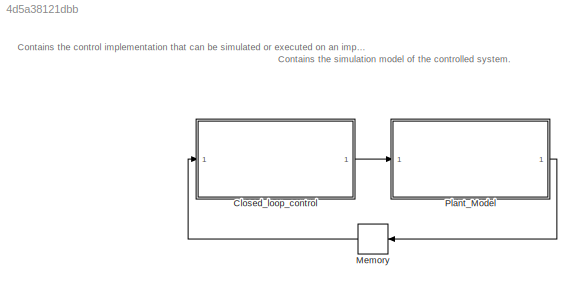
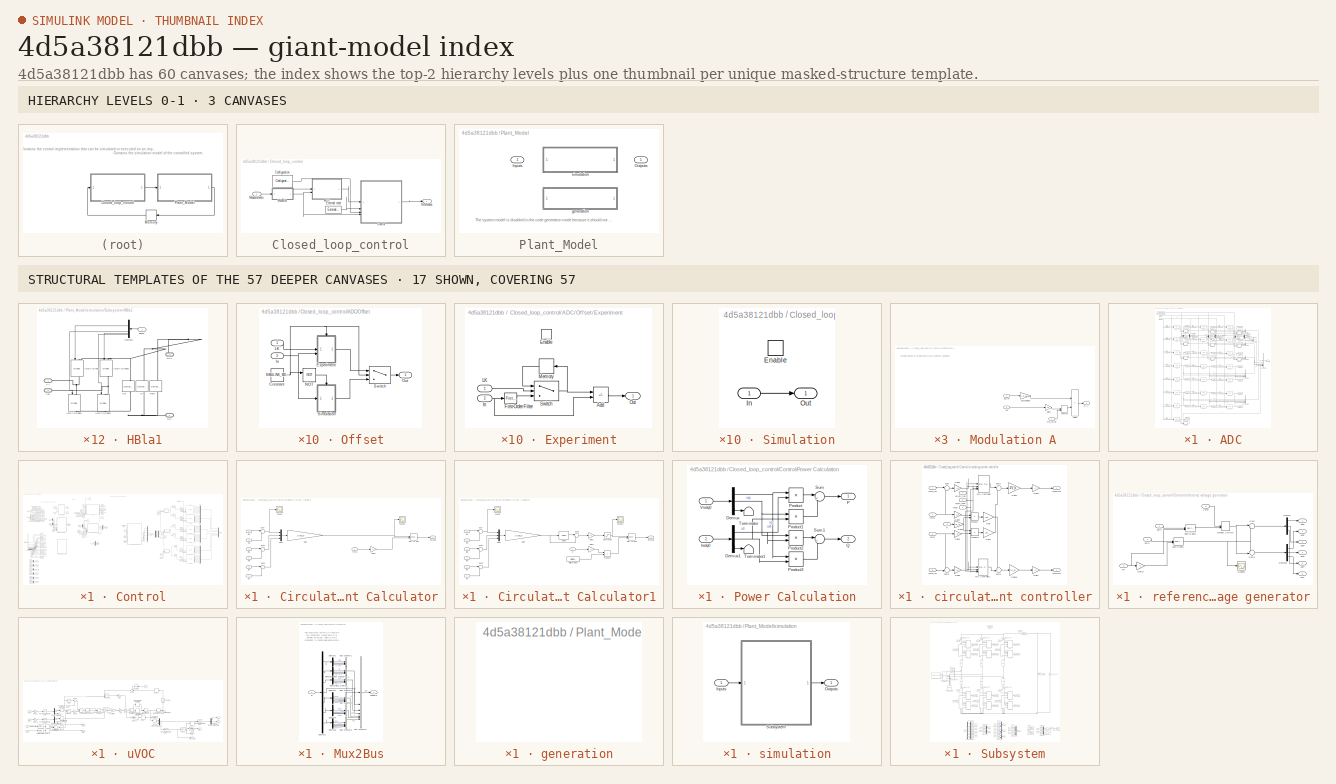
[diagram: thumbnail index - top-2 hierarchy levels (3 canvases) + 17 structural-template representatives of the remaining 57 canvases]
MODEL slx_4d5a38121dbb
KIND model
CONFIG AbsTol = auto
CONFIG EnableMultiTasking = off
CONFIG FixedStep = auto
CONFIG InitFcn = % --- DO NOT REMOVE THIS CODE (SDK2024.3) ---\n    % check SDK version\n    required_lib_version = 3900.3;\n    required_lib_ver_str = '2024.3';\n    lib_path = [getenv('IX_SIMULINK_ACG_BB_3') '\simulink\blocks\BoomBox.slx'];\n    if exist(lib_path, 'file')\n        lib_version = str2double(Simulink.MDLInfo(lib_path).ModelVersion); % fullpath to avoid getting shadowing files\n        if lib_version < req...<+1808ch>
CONFIG MaxStep = auto
CONFIG MinStep = auto
CONFIG PostLoadFcn = % --- DO NOT REMOVE THIS CODE (SDK2024.3) ---\n    % change the execution mode of simulink depending on the radio button:\n    if(strcmp('Automated Code Generation',get_param(Find_imperix_blocks(bdroot,'Configuration'),'SLMODE')))\n        assignin('base', 'SIMULINK_MODE', 1);\n    else\n        assignin('base', 'SIMULINK_MODE', 0);\n    end\n\n    Model_PostLoadFcn(bdroot);\n% --- PLACE YOUR CODE BELOW TH...<+15ch>
CONFIG PreLoadFcn = % --- DO NOT REMOVE THIS CODE (SDK2024.3) ---\n    % create Simulink variants\n    if not(exist('variant_simulation', 'var'))\n        variant_simulation = Simulink.Variant('SIMULINK_MODE==0');\n    end\n    if not(exist('variant_generation', 'var'))\n        variant_generation = Simulink.Variant('SIMULINK_MODE==1');\n    end\n\n    % check SDK version\n    required_lib_version = 3900.3;\n    required_lib_ve...<+2548ch>
CONFIG RelTol = 1e-3
CONFIG SampleTimeConstraint = Unconstrained
CONFIG SolverName = VariableStepAuto
CONFIG StartTime = 0.0
CONFIG StopTime = 5
WORKSPACE source: mxarray member
WORKSPACE CTRLPERIOD = [5e-05 0]
WORKSPACE SVM_id = 0
WORKSPACE TSAMPLE = 1e-06
WORKSPACE global_CLK_number = 0
WORKSPACE global_INT_number = 1
WORKSPACE global_SVM_instance_id = 0
WORKSPACE global_can_baud_rate = '1000000'
WORKSPACE global_comp_time = 0.75
WORKSPACE global_cycle_delay = 2.5e-05
WORKSPACE global_ip_addresses: object (value not decoded)
BLOCK [SubSystem] Closed_loop_control
  Priority = -10000
BLOCK [SubSystem] Closed_loop_control/ADC
BLOCK [Reference] Closed_loop_control/ADC/ADC1  REF=BoomBox/ADC
  Priority = 1
  SourceBlock = BoomBox/ADC
  SourceProductName = Imperix Control
  SourceType = ADC
BLOCK [Reference] Closed_loop_control/ADC/ADC10  REF=BoomBox/ADC
  Priority = 1
  SourceBlock = BoomBox/ADC
  SourceProductName = Imperix Control
  SourceType = ADC
BLOCK [Reference] Closed_loop_control/ADC/ADC11  REF=BoomBox/ADC
  Priority = 1
  SourceBlock = BoomBox/ADC
  SourceProductName = Imperix Control
  SourceType = ADC
BLOCK [Reference] Closed_loop_control/ADC/ADC12  REF=BoomBox/ADC
  Priority = 1
  SourceBlock = BoomBox/ADC
  SourceProductName = Imperix Control
  SourceType = ADC
BLOCK [Reference] Closed_loop_control/ADC/ADC13  REF=BoomBox/ADC
  Priority = 1
  SourceBlock = BoomBox/ADC
  SourceProductName = Imperix Control
  SourceType = ADC
BLOCK [Reference] Closed_loop_control/ADC/ADC14  REF=BoomBox/ADC
  Priority = 1
  SourceBlock = BoomBox/ADC
  SourceProductName = Imperix Control
  SourceType = ADC
BLOCK [Reference] Closed_loop_control/ADC/ADC15  REF=BoomBox/ADC
  Priority = 1
  SourceBlock = BoomBox/ADC
  SourceProductName = Imperix Control
  SourceType = ADC
BLOCK [Reference] Closed_loop_control/ADC/ADC16  REF=BoomBox/ADC
  Priority = 1
  SourceBlock = BoomBox/ADC
  SourceProductName = Imperix Control
  SourceType = ADC
BLOCK [Reference] Closed_loop_control/ADC/ADC17  REF=BoomBox/ADC
  Priority = 1
  SourceBlock = BoomBox/ADC
  SourceProductName = Imperix Control
  SourceType = ADC
BLOCK [Reference] Closed_loop_control/ADC/ADC18  REF=BoomBox/ADC
  Priority = 1
  SourceBlock = BoomBox/ADC
  SourceProductName = Imperix Control
  SourceType = ADC
BLOCK [Reference] Closed_loop_control/ADC/ADC19  REF=BoomBox/ADC
  Priority = 1
  SourceBlock = BoomBox/ADC
  SourceProductName = Imperix Control
  SourceType = ADC
BLOCK [Reference] Closed_loop_control/ADC/ADC2  REF=BoomBox/ADC
  Priority = 1
  SourceBlock = BoomBox/ADC
  SourceProductName = Imperix Control
  SourceType = ADC
BLOCK [Reference] Closed_loop_control/ADC/ADC20  REF=BoomBox/ADC
  Priority = 1
  SourceBlock = BoomBox/ADC
  SourceProductName = Imperix Control
  SourceType = ADC
BLOCK [Reference] Closed_loop_control/ADC/ADC21  REF=BoomBox/ADC
  Priority = 1
  SourceBlock = BoomBox/ADC
  SourceProductName = Imperix Control
  SourceType = ADC
BLOCK [Reference] Closed_loop_control/ADC/ADC22  REF=BoomBox/ADC
  Priority = 1
  SourceBlock = BoomBox/ADC
  SourceProductName = Imperix Control
  SourceType = ADC
BLOCK [Reference] Closed_loop_control/ADC/ADC3  REF=BoomBox/ADC
  Priority = 1
  SourceBlock = BoomBox/ADC
  SourceProductName = Imperix Control
  SourceType = ADC
BLOCK [Reference] Closed_loop_control/ADC/ADC4  REF=BoomBox/ADC
  Priority = 1
  SourceBlock = BoomBox/ADC
  SourceProductName = Imperix Control
  SourceType = ADC
BLOCK [Reference] Closed_loop_control/ADC/ADC5  REF=BoomBox/ADC
  Priority = 1
  SourceBlock = BoomBox/ADC
  SourceProductName = Imperix Control
  SourceType = ADC
BLOCK [Reference] Closed_loop_control/ADC/ADC6  REF=BoomBox/ADC
  Priority = 1
  SourceBlock = BoomBox/ADC
  SourceProductName = Imperix Control
  SourceType = ADC
BLOCK [Reference] Closed_loop_control/ADC/ADC7  REF=BoomBox/ADC
  Priority = 1
  SourceBlock = BoomBox/ADC
  SourceProductName = Imperix Control
  SourceType = ADC
BLOCK [Reference] Closed_loop_control/ADC/ADC8  REF=BoomBox/ADC
  Priority = 1
  SourceBlock = BoomBox/ADC
  SourceProductName = Imperix Control
  SourceType = ADC
BLOCK [Reference] Closed_loop_control/ADC/ADC9  REF=BoomBox/ADC
  Priority = 1
  SourceBlock = BoomBox/ADC
  SourceProductName = Imperix Control
  SourceType = ADC
BLOCK [BusCreator] Closed_loop_control/ADC/Bus Creator1
  DisplayOption = bar
  InheritFromInputs = on
  Inputs = 3
BLOCK [BusCreator] Closed_loop_control/ADC/Bus Creator13
  DisplayOption = bar
  InheritFromInputs = on
  Inputs = 7
BLOCK [BusCreator] Closed_loop_control/ADC/Bus Creator2
  DisplayOption = bar
  InheritFromInputs = on
  Inputs = 3
BLOCK [BusCreator] Closed_loop_control/ADC/Bus Creator3
  DisplayOption = bar
  InheritFromInputs = on
  Inputs = 3
BLOCK [BusCreator] Closed_loop_control/ADC/Bus Creator4
  DisplayOption = bar
  InheritFromInputs = on
  Inputs = 6
  NameLocation = left
BLOCK [BusCreator] Closed_loop_control/ADC/Bus Creator5
  DisplayOption = bar
  InheritFromInputs = on
  Inputs = 6
BLOCK [BusCreator] Closed_loop_control/ADC/Bus Creator6
  DisplayOption = bar
  InheritFromInputs = on
  Inputs = 3
BLOCK [BusSelector] Closed_loop_control/ADC/Bus Selector
  OutputSignals = iu.iua
BLOCK [BusSelector] Closed_loop_control/ADC/Bus Selector1
  OutputSignals = il.ila
BLOCK [BusSelector] Closed_loop_control/ADC/Bus Selector10
  OutputSignals = Vcb.Vcb1
BLOCK [BusSelector] Closed_loop_control/ADC/Bus Selector11
  OutputSignals = Vcc.Vcc1
BLOCK [BusSelector] Closed_loop_control/ADC/Bus Selector12
  OutputSignals = Vcb.Vcb4
BLOCK [BusSelector] Closed_loop_control/ADC/Bus Selector13
  OutputSignals = Vcc.Vcc4
BLOCK [BusSelector] Closed_loop_control/ADC/Bus Selector14
  OutputSignals = Vca.Vca4
BLOCK [BusSelector] Closed_loop_control/ADC/Bus Selector15
  OutputSignals = Vcb.Vcb2
BLOCK [BusSelector] Closed_loop_control/ADC/Bus Selector16
  OutputSignals = Vcc.Vcc2
BLOCK [BusSelector] Closed_loop_control/ADC/Bus Selector17
  OutputSignals = vr
BLOCK [BusSelector] Closed_loop_control/ADC/Bus Selector18
  OutputSignals = Vca.Vca2
BLOCK [BusSelector] Closed_loop_control/ADC/Bus Selector19
  OutputSignals = Vcb.Vcb3
BLOCK [BusSelector] Closed_loop_control/ADC/Bus Selector2
  OutputSignals = iu.iub
BLOCK [BusSelector] Closed_loop_control/ADC/Bus Selector20
  OutputSignals = Vcc.Vcc3
BLOCK [BusSelector] Closed_loop_control/ADC/Bus Selector21
  OutputSignals = Vca.Vca3
BLOCK [BusSelector] Closed_loop_control/ADC/Bus Selector3
  OutputSignals = il.ilb
BLOCK [BusSelector] Closed_loop_control/ADC/Bus Selector4
  OutputSignals = vs.vsa
BLOCK [BusSelector] Closed_loop_control/ADC/Bus Selector5
  OutputSignals = vs.vsb
BLOCK [BusSelector] Closed_loop_control/ADC/Bus Selector6
  OutputSignals = iu.iuc
BLOCK [BusSelector] Closed_loop_control/ADC/Bus Selector7
  OutputSignals = il.ilc
BLOCK [BusSelector] Closed_loop_control/ADC/Bus Selector8
  OutputSignals = vs.vsc
BLOCK [BusSelector] Closed_loop_control/ADC/Bus Selector9
  OutputSignals = Vca.Vca1
BLOCK [Demux] Closed_loop_control/ADC/Demux
  Outputs = 2
BLOCK [Demux] Closed_loop_control/ADC/Demux1
  Outputs = 2
BLOCK [Demux] Closed_loop_control/ADC/Demux2
  Outputs = 2
BLOCK [Gain] Closed_loop_control/ADC/Gain1
  Gain = [0.5 0.5 ; 1 -1]
  Multiplication = Matrix(K*u)
BLOCK [Gain] Closed_loop_control/ADC/Gain2
  Gain = [0.5 0.5 ; 1 -1]
  Multiplication = Matrix(K*u)
BLOCK [Gain] Closed_loop_control/ADC/Gain3
  Gain = [0.5 0.5 ; 1 -1]
  Multiplication = Matrix(K*u)
BLOCK [Mux] Closed_loop_control/ADC/Mux1
  DisplayOption = bar
  Inputs = 2
BLOCK [Mux] Closed_loop_control/ADC/Mux2
  DisplayOption = bar
  Inputs = 2
BLOCK [Mux] Closed_loop_control/ADC/Mux4
  DisplayOption = bar
  Inputs = 2
BLOCK [SubSystem] Closed_loop_control/ADC/Offset
BLOCK [Constant] Closed_loop_control/ADC/Offset/Constant
  OutDataTypeStr = boolean
  Value = SIMULINK_MODE
BLOCK [SubSystem] Closed_loop_control/ADC/Offset/Experiment
BLOCK [Sum] Closed_loop_control/ADC/Offset/Experiment/Add
  IconShape = rectangular
  Inputs = -+
BLOCK [EnablePort] Closed_loop_control/ADC/Offset/Experiment/Enable
BLOCK [Reference] Closed_loop_control/ADC/Offset/Experiment/First-Order Filter  REF=spsFirstOrderFilterLib/First-Order
Filter
  SourceBlock = spsFirstOrderFilterLib/First-Order\nFilter
  SourceType = First-Order Filter
BLOCK [Inport] Closed_loop_control/ADC/Offset/Experiment/In
  NameLocation = left
  Port = 2
BLOCK [Inport] Closed_loop_control/ADC/Offset/Experiment/LK
  NameLocation = left
BLOCK [Memory] Closed_loop_control/ADC/Offset/Experiment/Memory
  InheritSampleTime = on
BLOCK [Outport] Closed_loop_control/ADC/Offset/Experiment/Out
BLOCK [Switch] Closed_loop_control/ADC/Offset/Experiment/Switch
  Criteria = u2 > Threshold
  InputSameDT = off
  OutDataTypeStr = single
  SaturateOnIntegerOverflow = off
BLOCK [Inport] Closed_loop_control/ADC/Offset/In
  NameLocation = left
  Port = 2
BLOCK [Inport] Closed_loop_control/ADC/Offset/LK
  NameLocation = left
BLOCK [Logic] Closed_loop_control/ADC/Offset/NOT
  AllPortsSameDT = off
  IconShape = distinctive
  Operator = NOT
  OutDataTypeStr = boolean
BLOCK [Outport] Closed_loop_control/ADC/Offset/Out
BLOCK [SubSystem] Closed_loop_control/ADC/Offset/Simulation
BLOCK [EnablePort] Closed_loop_control/ADC/Offset/Simulation/Enable
BLOCK [Inport] Closed_loop_control/ADC/Offset/Simulation/In
  NameLocation = left
BLOCK [Outport] Closed_loop_control/ADC/Offset/Simulation/Out
BLOCK [Switch] Closed_loop_control/ADC/Offset/Switch
  Criteria = u2 > Threshold
  InputSameDT = off
  OutDataTypeStr = single
  SaturateOnIntegerOverflow = off
BLOCK [SubSystem] Closed_loop_control/ADC/Offset1
BLOCK [Constant] Closed_loop_control/ADC/Offset1/Constant
  OutDataTypeStr = boolean
  Value = SIMULINK_MODE
BLOCK [SubSystem] Closed_loop_control/ADC/Offset1/Experiment
BLOCK [Sum] Closed_loop_control/ADC/Offset1/Experiment/Add
  IconShape = rectangular
  Inputs = -+
BLOCK [EnablePort] Closed_loop_control/ADC/Offset1/Experiment/Enable
BLOCK [Reference] Closed_loop_control/ADC/Offset1/Experiment/First-Order Filter  REF=spsFirstOrderFilterLib/First-Order
Filter
  SourceBlock = spsFirstOrderFilterLib/First-Order\nFilter
  SourceType = First-Order Filter
BLOCK [Inport] Closed_loop_control/ADC/Offset1/Experiment/In
  NameLocation = left
  Port = 2
BLOCK [Inport] Closed_loop_control/ADC/Offset1/Experiment/LK
  NameLocation = left
BLOCK [Memory] Closed_loop_control/ADC/Offset1/Experiment/Memory
  InheritSampleTime = on
BLOCK [Outport] Closed_loop_control/ADC/Offset1/Experiment/Out
BLOCK [Switch] Closed_loop_control/ADC/Offset1/Experiment/Switch
  Criteria = u2 > Threshold
  InputSameDT = off
  OutDataTypeStr = single
  SaturateOnIntegerOverflow = off
BLOCK [Inport] Closed_loop_control/ADC/Offset1/In
  NameLocation = left
  Port = 2
BLOCK [Inport] Closed_loop_control/ADC/Offset1/LK
  NameLocation = left
BLOCK [Logic] Closed_loop_control/ADC/Offset1/NOT
  AllPortsSameDT = off
  IconShape = distinctive
  Operator = NOT
  OutDataTypeStr = boolean
BLOCK [Outport] Closed_loop_control/ADC/Offset1/Out
BLOCK [SubSystem] Closed_loop_control/ADC/Offset1/Simulation
BLOCK [EnablePort] Closed_loop_control/ADC/Offset1/Simulation/Enable
BLOCK [Inport] Closed_loop_control/ADC/Offset1/Simulation/In
  NameLocation = left
BLOCK [Outport] Closed_loop_control/ADC/Offset1/Simulation/Out
BLOCK [Switch] Closed_loop_control/ADC/Offset1/Switch
  Criteria = u2 > Threshold
  InputSameDT = off
  OutDataTypeStr = single
  SaturateOnIntegerOverflow = off
BLOCK [SubSystem] Closed_loop_control/ADC/Offset2
BLOCK [Constant] Closed_loop_control/ADC/Offset2/Constant
  OutDataTypeStr = boolean
  Value = SIMULINK_MODE
BLOCK [SubSystem] Closed_loop_control/ADC/Offset2/Experiment
BLOCK [Sum] Closed_loop_control/ADC/Offset2/Experiment/Add
  IconShape = rectangular
  Inputs = -+
BLOCK [EnablePort] Closed_loop_control/ADC/Offset2/Experiment/Enable
BLOCK [Reference] Closed_loop_control/ADC/Offset2/Experiment/First-Order Filter  REF=spsFirstOrderFilterLib/First-Order
Filter
  SourceBlock = spsFirstOrderFilterLib/First-Order\nFilter
  SourceType = First-Order Filter
BLOCK [Inport] Closed_loop_control/ADC/Offset2/Experiment/In
  NameLocation = left
  Port = 2
BLOCK [Inport] Closed_loop_control/ADC/Offset2/Experiment/LK
  NameLocation = left
BLOCK [Memory] Closed_loop_control/ADC/Offset2/Experiment/Memory
  InheritSampleTime = on
BLOCK [Outport] Closed_loop_control/ADC/Offset2/Experiment/Out
BLOCK [Switch] Closed_loop_control/ADC/Offset2/Experiment/Switch
  Criteria = u2 > Threshold
  InputSameDT = off
  OutDataTypeStr = single
  SaturateOnIntegerOverflow = off
BLOCK [Inport] Closed_loop_control/ADC/Offset2/In
  NameLocation = left
  Port = 2
BLOCK [Inport] Closed_loop_control/ADC/Offset2/LK
  NameLocation = left
BLOCK [Logic] Closed_loop_control/ADC/Offset2/NOT
  AllPortsSameDT = off
  IconShape = distinctive
  Operator = NOT
  OutDataTypeStr = boolean
BLOCK [Outport] Closed_loop_control/ADC/Offset2/Out
BLOCK [SubSystem] Closed_loop_control/ADC/Offset2/Simulation
BLOCK [EnablePort] Closed_loop_control/ADC/Offset2/Simulation/Enable
BLOCK [Inport] Closed_loop_control/ADC/Offset2/Simulation/In
  NameLocation = left
BLOCK [Outport] Closed_loop_control/ADC/Offset2/Simulation/Out
BLOCK [Switch] Closed_loop_control/ADC/Offset2/Switch
  Criteria = u2 > Threshold
  InputSameDT = off
  OutDataTypeStr = single
  SaturateOnIntegerOverflow = off
BLOCK [SubSystem] Closed_loop_control/ADC/Offset3
BLOCK [Constant] Closed_loop_control/ADC/Offset3/Constant
  OutDataTypeStr = boolean
  Value = SIMULINK_MODE
BLOCK [SubSystem] Closed_loop_control/ADC/Offset3/Experiment
BLOCK [Sum] Closed_loop_control/ADC/Offset3/Experiment/Add
  IconShape = rectangular
  Inputs = -+
BLOCK [EnablePort] Closed_loop_control/ADC/Offset3/Experiment/Enable
BLOCK [Reference] Closed_loop_control/ADC/Offset3/Experiment/First-Order Filter  REF=spsFirstOrderFilterLib/First-Order
Filter
  SourceBlock = spsFirstOrderFilterLib/First-Order\nFilter
  SourceType = First-Order Filter
BLOCK [Inport] Closed_loop_control/ADC/Offset3/Experiment/In
  NameLocation = left
  Port = 2
BLOCK [Inport] Closed_loop_control/ADC/Offset3/Experiment/LK
  NameLocation = left
BLOCK [Memory] Closed_loop_control/ADC/Offset3/Experiment/Memory
  InheritSampleTime = on
BLOCK [Outport] Closed_loop_control/ADC/Offset3/Experiment/Out
BLOCK [Switch] Closed_loop_control/ADC/Offset3/Experiment/Switch
  Criteria = u2 > Threshold
  InputSameDT = off
  OutDataTypeStr = single
  SaturateOnIntegerOverflow = off
BLOCK [Inport] Closed_loop_control/ADC/Offset3/In
  NameLocation = left
  Port = 2
BLOCK [Inport] Closed_loop_control/ADC/Offset3/LK
  NameLocation = left
BLOCK [Logic] Closed_loop_control/ADC/Offset3/NOT
  AllPortsSameDT = off
  IconShape = distinctive
  Operator = NOT
  OutDataTypeStr = boolean
BLOCK [Outport] Closed_loop_control/ADC/Offset3/Out
BLOCK [SubSystem] Closed_loop_control/ADC/Offset3/Simulation
BLOCK [EnablePort] Closed_loop_control/ADC/Offset3/Simulation/Enable
BLOCK [Inport] Closed_loop_control/ADC/Offset3/Simulation/In
  NameLocation = left
BLOCK [Outport] Closed_loop_control/ADC/Offset3/Simulation/Out
BLOCK [Switch] Closed_loop_control/ADC/Offset3/Switch
  Criteria = u2 > Threshold
  InputSameDT = off
  OutDataTypeStr = single
  SaturateOnIntegerOverflow = off
BLOCK [SubSystem] Closed_loop_control/ADC/Offset4
BLOCK [Constant] Closed_loop_control/ADC/Offset4/Constant
  OutDataTypeStr = boolean
  Value = SIMULINK_MODE
BLOCK [SubSystem] Closed_loop_control/ADC/Offset4/Experiment
BLOCK [Sum] Closed_loop_control/ADC/Offset4/Experiment/Add
  IconShape = rectangular
  Inputs = -+
BLOCK [EnablePort] Closed_loop_control/ADC/Offset4/Experiment/Enable
BLOCK [Reference] Closed_loop_control/ADC/Offset4/Experiment/First-Order Filter  REF=spsFirstOrderFilterLib/First-Order
Filter
  SourceBlock = spsFirstOrderFilterLib/First-Order\nFilter
  SourceType = First-Order Filter
BLOCK [Inport] Closed_loop_control/ADC/Offset4/Experiment/In
  NameLocation = left
  Port = 2
BLOCK [Inport] Closed_loop_control/ADC/Offset4/Experiment/LK
  NameLocation = left
BLOCK [Memory] Closed_loop_control/ADC/Offset4/Experiment/Memory
  InheritSampleTime = on
BLOCK [Outport] Closed_loop_control/ADC/Offset4/Experiment/Out
BLOCK [Switch] Closed_loop_control/ADC/Offset4/Experiment/Switch
  Criteria = u2 > Threshold
  InputSameDT = off
  OutDataTypeStr = single
  SaturateOnIntegerOverflow = off
BLOCK [Inport] Closed_loop_control/ADC/Offset4/In
  NameLocation = left
  Port = 2
BLOCK [Inport] Closed_loop_control/ADC/Offset4/LK
  NameLocation = left
BLOCK [Logic] Closed_loop_control/ADC/Offset4/NOT
  AllPortsSameDT = off
  IconShape = distinctive
  Operator = NOT
  OutDataTypeStr = boolean
BLOCK [Outport] Closed_loop_control/ADC/Offset4/Out
BLOCK [SubSystem] Closed_loop_control/ADC/Offset4/Simulation
BLOCK [EnablePort] Closed_loop_control/ADC/Offset4/Simulation/Enable
BLOCK [Inport] Closed_loop_control/ADC/Offset4/Simulation/In
  NameLocation = left
BLOCK [Outport] Closed_loop_control/ADC/Offset4/Simulation/Out
BLOCK [Switch] Closed_loop_control/ADC/Offset4/Switch
  Criteria = u2 > Threshold
  InputSameDT = off
  OutDataTypeStr = single
  SaturateOnIntegerOverflow = off
BLOCK [SubSystem] Closed_loop_control/ADC/Offset5
BLOCK [Constant] Closed_loop_control/ADC/Offset5/Constant
  OutDataTypeStr = boolean
  Value = SIMULINK_MODE
BLOCK [SubSystem] Closed_loop_control/ADC/Offset5/Experiment
BLOCK [Sum] Closed_loop_control/ADC/Offset5/Experiment/Add
  IconShape = rectangular
  Inputs = -+
BLOCK [EnablePort] Closed_loop_control/ADC/Offset5/Experiment/Enable
BLOCK [Reference] Closed_loop_control/ADC/Offset5/Experiment/First-Order Filter  REF=spsFirstOrderFilterLib/First-Order
Filter
  SourceBlock = spsFirstOrderFilterLib/First-Order\nFilter
  SourceType = First-Order Filter
BLOCK [Inport] Closed_loop_control/ADC/Offset5/Experiment/In
  NameLocation = left
  Port = 2
BLOCK [Inport] Closed_loop_control/ADC/Offset5/Experiment/LK
  NameLocation = left
BLOCK [Memory] Closed_loop_control/ADC/Offset5/Experiment/Memory
  InheritSampleTime = on
BLOCK [Outport] Closed_loop_control/ADC/Offset5/Experiment/Out
BLOCK [Switch] Closed_loop_control/ADC/Offset5/Experiment/Switch
  Criteria = u2 > Threshold
  InputSameDT = off
  OutDataTypeStr = single
  SaturateOnIntegerOverflow = off
BLOCK [Inport] Closed_loop_control/ADC/Offset5/In
  NameLocation = left
  Port = 2
BLOCK [Inport] Closed_loop_control/ADC/Offset5/LK
  NameLocation = left
BLOCK [Logic] Closed_loop_control/ADC/Offset5/NOT
  AllPortsSameDT = off
  IconShape = distinctive
  Operator = NOT
  OutDataTypeStr = boolean
BLOCK [Outport] Closed_loop_control/ADC/Offset5/Out
BLOCK [SubSystem] Closed_loop_control/ADC/Offset5/Simulation
BLOCK [EnablePort] Closed_loop_control/ADC/Offset5/Simulation/Enable
BLOCK [Inport] Closed_loop_control/ADC/Offset5/Simulation/In
  NameLocation = left
BLOCK [Outport] Closed_loop_control/ADC/Offset5/Simulation/Out
BLOCK [Switch] Closed_loop_control/ADC/Offset5/Switch
  Criteria = u2 > Threshold
  InputSameDT = off
  OutDataTypeStr = single
  SaturateOnIntegerOverflow = off
BLOCK [SubSystem] Closed_loop_control/ADC/Offset6
BLOCK [Constant] Closed_loop_control/ADC/Offset6/Constant
  OutDataTypeStr = boolean
  Value = SIMULINK_MODE
BLOCK [SubSystem] Closed_loop_control/ADC/Offset6/Experiment
BLOCK [Sum] Closed_loop_control/ADC/Offset6/Experiment/Add
  IconShape = rectangular
  Inputs = -+
BLOCK [EnablePort] Closed_loop_control/ADC/Offset6/Experiment/Enable
BLOCK [Reference] Closed_loop_control/ADC/Offset6/Experiment/First-Order Filter  REF=spsFirstOrderFilterLib/First-Order
Filter
  SourceBlock = spsFirstOrderFilterLib/First-Order\nFilter
  SourceType = First-Order Filter
BLOCK [Inport] Closed_loop_control/ADC/Offset6/Experiment/In
  NameLocation = left
  Port = 2
BLOCK [Inport] Closed_loop_control/ADC/Offset6/Experiment/LK
  NameLocation = left
BLOCK [Memory] Closed_loop_control/ADC/Offset6/Experiment/Memory
  InheritSampleTime = on
BLOCK [Outport] Closed_loop_control/ADC/Offset6/Experiment/Out
BLOCK [Switch] Closed_loop_control/ADC/Offset6/Experiment/Switch
  Criteria = u2 > Threshold
  InputSameDT = off
  OutDataTypeStr = single
  SaturateOnIntegerOverflow = off
BLOCK [Inport] Closed_loop_control/ADC/Offset6/In
  NameLocation = left
  Port = 2
BLOCK [Inport] Closed_loop_control/ADC/Offset6/LK
  NameLocation = left
BLOCK [Logic] Closed_loop_control/ADC/Offset6/NOT
  AllPortsSameDT = off
  IconShape = distinctive
  Operator = NOT
  OutDataTypeStr = boolean
BLOCK [Outport] Closed_loop_control/ADC/Offset6/Out
BLOCK [SubSystem] Closed_loop_control/ADC/Offset6/Simulation
BLOCK [EnablePort] Closed_loop_control/ADC/Offset6/Simulation/Enable
BLOCK [Inport] Closed_loop_control/ADC/Offset6/Simulation/In
  NameLocation = left
BLOCK [Outport] Closed_loop_control/ADC/Offset6/Simulation/Out
BLOCK [Switch] Closed_loop_control/ADC/Offset6/Switch
  Criteria = u2 > Threshold
  InputSameDT = off
  OutDataTypeStr = single
  SaturateOnIntegerOverflow = off
BLOCK [SubSystem] Closed_loop_control/ADC/Offset7
BLOCK [Constant] Closed_loop_control/ADC/Offset7/Constant
  OutDataTypeStr = boolean
  Value = SIMULINK_MODE
BLOCK [SubSystem] Closed_loop_control/ADC/Offset7/Experiment
BLOCK [Sum] Closed_loop_control/ADC/Offset7/Experiment/Add
  IconShape = rectangular
  Inputs = -+
BLOCK [EnablePort] Closed_loop_control/ADC/Offset7/Experiment/Enable
BLOCK [Reference] Closed_loop_control/ADC/Offset7/Experiment/First-Order Filter  REF=spsFirstOrderFilterLib/First-Order
Filter
  SourceBlock = spsFirstOrderFilterLib/First-Order\nFilter
  SourceType = First-Order Filter
BLOCK [Inport] Closed_loop_control/ADC/Offset7/Experiment/In
  NameLocation = left
  Port = 2
BLOCK [Inport] Closed_loop_control/ADC/Offset7/Experiment/LK
  NameLocation = left
BLOCK [Memory] Closed_loop_control/ADC/Offset7/Experiment/Memory
  InheritSampleTime = on
BLOCK [Outport] Closed_loop_control/ADC/Offset7/Experiment/Out
BLOCK [Switch] Closed_loop_control/ADC/Offset7/Experiment/Switch
  Criteria = u2 > Threshold
  InputSameDT = off
  OutDataTypeStr = single
  SaturateOnIntegerOverflow = off
BLOCK [Inport] Closed_loop_control/ADC/Offset7/In
  NameLocation = left
  Port = 2
BLOCK [Inport] Closed_loop_control/ADC/Offset7/LK
  NameLocation = left
BLOCK [Logic] Closed_loop_control/ADC/Offset7/NOT
  AllPortsSameDT = off
  IconShape = distinctive
  Operator = NOT
  OutDataTypeStr = boolean
BLOCK [Outport] Closed_loop_control/ADC/Offset7/Out
BLOCK [SubSystem] Closed_loop_control/ADC/Offset7/Simulation
BLOCK [EnablePort] Closed_loop_control/ADC/Offset7/Simulation/Enable
BLOCK [Inport] Closed_loop_control/ADC/Offset7/Simulation/In
  NameLocation = left
BLOCK [Outport] Closed_loop_control/ADC/Offset7/Simulation/Out
BLOCK [Switch] Closed_loop_control/ADC/Offset7/Switch
  Criteria = u2 > Threshold
  InputSameDT = off
  OutDataTypeStr = single
  SaturateOnIntegerOverflow = off
BLOCK [SubSystem] Closed_loop_control/ADC/Offset8
BLOCK [Constant] Closed_loop_control/ADC/Offset8/Constant
  OutDataTypeStr = boolean
  Value = SIMULINK_MODE
BLOCK [SubSystem] Closed_loop_control/ADC/Offset8/Experiment
BLOCK [Sum] Closed_loop_control/ADC/Offset8/Experiment/Add
  IconShape = rectangular
  Inputs = -+
BLOCK [EnablePort] Closed_loop_control/ADC/Offset8/Experiment/Enable
BLOCK [Reference] Closed_loop_control/ADC/Offset8/Experiment/First-Order Filter  REF=spsFirstOrderFilterLib/First-Order
Filter
  SourceBlock = spsFirstOrderFilterLib/First-Order\nFilter
  SourceType = First-Order Filter
BLOCK [Inport] Closed_loop_control/ADC/Offset8/Experiment/In
  NameLocation = left
  Port = 2
BLOCK [Inport] Closed_loop_control/ADC/Offset8/Experiment/LK
  NameLocation = left
BLOCK [Memory] Closed_loop_control/ADC/Offset8/Experiment/Memory
  InheritSampleTime = on
BLOCK [Outport] Closed_loop_control/ADC/Offset8/Experiment/Out
BLOCK [Switch] Closed_loop_control/ADC/Offset8/Experiment/Switch
  Criteria = u2 > Threshold
  InputSameDT = off
  OutDataTypeStr = single
  SaturateOnIntegerOverflow = off
BLOCK [Inport] Closed_loop_control/ADC/Offset8/In
  NameLocation = left
  Port = 2
BLOCK [Inport] Closed_loop_control/ADC/Offset8/LK
  NameLocation = left
BLOCK [Logic] Closed_loop_control/ADC/Offset8/NOT
  AllPortsSameDT = off
  IconShape = distinctive
  Operator = NOT
  OutDataTypeStr = boolean
BLOCK [Outport] Closed_loop_control/ADC/Offset8/Out
BLOCK [SubSystem] Closed_loop_control/ADC/Offset8/Simulation
BLOCK [EnablePort] Closed_loop_control/ADC/Offset8/Simulation/Enable
BLOCK [Inport] Closed_loop_control/ADC/Offset8/Simulation/In
  NameLocation = left
BLOCK [Outport] Closed_loop_control/ADC/Offset8/Simulation/Out
BLOCK [Switch] Closed_loop_control/ADC/Offset8/Switch
  Criteria = u2 > Threshold
  InputSameDT = off
  OutDataTypeStr = single
  SaturateOnIntegerOverflow = off
BLOCK [SubSystem] Closed_loop_control/ADC/Offset9
BLOCK [Constant] Closed_loop_control/ADC/Offset9/Constant
  OutDataTypeStr = boolean
  Value = SIMULINK_MODE
BLOCK [SubSystem] Closed_loop_control/ADC/Offset9/Experiment
BLOCK [Sum] Closed_loop_control/ADC/Offset9/Experiment/Add
  IconShape = rectangular
  Inputs = -+
BLOCK [EnablePort] Closed_loop_control/ADC/Offset9/Experiment/Enable
BLOCK [Reference] Closed_loop_control/ADC/Offset9/Experiment/First-Order Filter  REF=spsFirstOrderFilterLib/First-Order
Filter
  SourceBlock = spsFirstOrderFilterLib/First-Order\nFilter
  SourceType = First-Order Filter
BLOCK [Inport] Closed_loop_control/ADC/Offset9/Experiment/In
  NameLocation = left
  Port = 2
BLOCK [Inport] Closed_loop_control/ADC/Offset9/Experiment/LK
  NameLocation = left
BLOCK [Memory] Closed_loop_control/ADC/Offset9/Experiment/Memory
  InheritSampleTime = on
BLOCK [Outport] Closed_loop_control/ADC/Offset9/Experiment/Out
BLOCK [Switch] Closed_loop_control/ADC/Offset9/Experiment/Switch
  Criteria = u2 > Threshold
  InputSameDT = off
  OutDataTypeStr = single
  SaturateOnIntegerOverflow = off
BLOCK [Inport] Closed_loop_control/ADC/Offset9/In
  NameLocation = left
  Port = 2
BLOCK [Inport] Closed_loop_control/ADC/Offset9/LK
  NameLocation = left
BLOCK [Logic] Closed_loop_control/ADC/Offset9/NOT
  AllPortsSameDT = off
  IconShape = distinctive
  Operator = NOT
  OutDataTypeStr = boolean
BLOCK [Outport] Closed_loop_control/ADC/Offset9/Out
BLOCK [SubSystem] Closed_loop_control/ADC/Offset9/Simulation
BLOCK [EnablePort] Closed_loop_control/ADC/Offset9/Simulation/Enable
BLOCK [Inport] Closed_loop_control/ADC/Offset9/Simulation/In
  NameLocation = left
BLOCK [Outport] Closed_loop_control/ADC/Offset9/Simulation/Out
BLOCK [Switch] Closed_loop_control/ADC/Offset9/Switch
  Criteria = u2 > Threshold
  InputSameDT = off
  OutDataTypeStr = single
  SaturateOnIntegerOverflow = off
BLOCK [Reference] Closed_loop_control/ADC/Probe1  REF=BoomBox/Probe
  SourceBlock = BoomBox/Probe
  SourceProductName = Imperix Control
  SourceType = Probe
BLOCK [Reference] Closed_loop_control/ADC/Probe10  REF=BoomBox/Probe
  SourceBlock = BoomBox/Probe
  SourceProductName = Imperix Control
  SourceType = Probe
BLOCK [Reference] Closed_loop_control/ADC/Probe11  REF=BoomBox/Probe
  SourceBlock = BoomBox/Probe
  SourceProductName = Imperix Control
  SourceType = Probe
BLOCK [Reference] Closed_loop_control/ADC/Probe12  REF=BoomBox/Probe
  SourceBlock = BoomBox/Probe
  SourceProductName = Imperix Control
  SourceType = Probe
BLOCK [Reference] Closed_loop_control/ADC/Probe13  REF=BoomBox/Probe
  SourceBlock = BoomBox/Probe
  SourceProductName = Imperix Control
  SourceType = Probe
BLOCK [Reference] Closed_loop_control/ADC/Probe14  REF=BoomBox/Probe
  SourceBlock = BoomBox/Probe
  SourceProductName = Imperix Control
  SourceType = Probe
BLOCK [Reference] Closed_loop_control/ADC/Probe15  REF=BoomBox/Probe
  SourceBlock = BoomBox/Probe
  SourceProductName = Imperix Control
  SourceType = Probe
BLOCK [Reference] Closed_loop_control/ADC/Probe16  REF=BoomBox/Probe
  SourceBlock = BoomBox/Probe
  SourceProductName = Imperix Control
  SourceType = Probe
BLOCK [Reference] Closed_loop_control/ADC/Probe17  REF=BoomBox/Probe
  SourceBlock = BoomBox/Probe
  SourceProductName = Imperix Control
  SourceType = Probe
BLOCK [Reference] Closed_loop_control/ADC/Probe18  REF=BoomBox/Probe
  SourceBlock = BoomBox/Probe
  SourceProductName = Imperix Control
  SourceType = Probe
BLOCK [Reference] Closed_loop_control/ADC/Probe19  REF=BoomBox/Probe
  SourceBlock = BoomBox/Probe
  SourceProductName = Imperix Control
  SourceType = Probe
BLOCK [Reference] Closed_loop_control/ADC/Probe2  REF=BoomBox/Probe
  SourceBlock = BoomBox/Probe
  SourceProductName = Imperix Control
  SourceType = Probe
BLOCK [Reference] Closed_loop_control/ADC/Probe20  REF=BoomBox/Probe
  SourceBlock = BoomBox/Probe
  SourceProductName = Imperix Control
  SourceType = Probe
BLOCK [Reference] Closed_loop_control/ADC/Probe21  REF=BoomBox/Probe
  SourceBlock = BoomBox/Probe
  SourceProductName = Imperix Control
  SourceType = Probe
BLOCK [Reference] Closed_loop_control/ADC/Probe22  REF=BoomBox/Probe
  SourceBlock = BoomBox/Probe
  SourceProductName = Imperix Control
  SourceType = Probe
BLOCK [Reference] Closed_loop_control/ADC/Probe23  REF=BoomBox/Probe
  SourceBlock = BoomBox/Probe
  SourceProductName = Imperix Control
  SourceType = Probe
BLOCK [Reference] Closed_loop_control/ADC/Probe24  REF=BoomBox/Probe
  SourceBlock = BoomBox/Probe
  SourceProductName = Imperix Control
  SourceType = Probe
BLOCK [Reference] Closed_loop_control/ADC/Probe3  REF=BoomBox/Probe
  SourceBlock = BoomBox/Probe
  SourceProductName = Imperix Control
  SourceType = Probe
BLOCK [Reference] Closed_loop_control/ADC/Probe4  REF=BoomBox/Probe
  SourceBlock = BoomBox/Probe
  SourceProductName = Imperix Control
  SourceType = Probe
BLOCK [Reference] Closed_loop_control/ADC/Probe46  REF=BoomBox/Probe
  SourceBlock = BoomBox/Probe
  SourceProductName = Imperix Control
  SourceType = Probe
BLOCK [Reference] Closed_loop_control/ADC/Probe5  REF=BoomBox/Probe
  SourceBlock = BoomBox/Probe
  SourceProductName = Imperix Control
  SourceType = Probe
BLOCK [Reference] Closed_loop_control/ADC/Probe6  REF=BoomBox/Probe
  SourceBlock = BoomBox/Probe
  SourceProductName = Imperix Control
  SourceType = Probe
BLOCK [Reference] Closed_loop_control/ADC/Probe7  REF=BoomBox/Probe
  SourceBlock = BoomBox/Probe
  SourceProductName = Imperix Control
  SourceType = Probe
BLOCK [Reference] Closed_loop_control/ADC/Probe8  REF=BoomBox/Probe
  SourceBlock = BoomBox/Probe
  SourceProductName = Imperix Control
  SourceType = Probe
BLOCK [Reference] Closed_loop_control/ADC/Probe9  REF=BoomBox/Probe
  SourceBlock = BoomBox/Probe
  SourceProductName = Imperix Control
  SourceType = Probe
BLOCK [Inport] Closed_loop_control/ADC/SCLK
BLOCK [Terminator] Closed_loop_control/ADC/Terminator
BLOCK [Terminator] Closed_loop_control/ADC/Terminator1
BLOCK [Terminator] Closed_loop_control/ADC/Terminator2
BLOCK [Reference] Closed_loop_control/ADC/Tunable parameter  REF=BoomBox/Tunable parameter
  SourceBlock = BoomBox/Tunable parameter
  SourceProductName = Imperix Control
  SourceType = Tunable parameter
BLOCK [Outport] Closed_loop_control/ADC/acqdata
BLOCK [Inport] Closed_loop_control/ADC/simdata
  Port = 2
BLOCK [Reference] Closed_loop_control/Configuration  REF=BoomBox/Configuration
  Description = Please leave the Priority (below parameter) to maximum negative to ensure that this block is always executed first.
  NameLocation = top
  Priority = -99999
  SourceBlock = BoomBox/Configuration
  SourceProductName = Imperix Control
  SourceType = Configuration
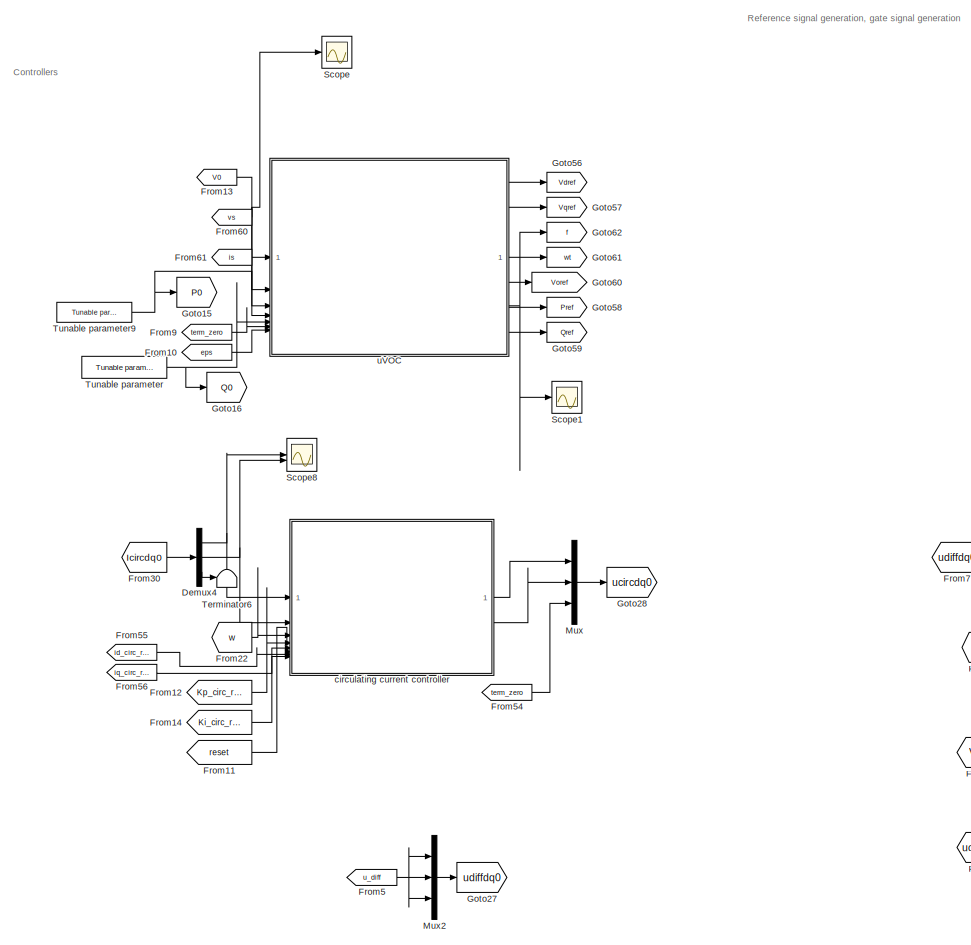
[diagram: Closed_loop_control/Control - part 1/6, top center region]
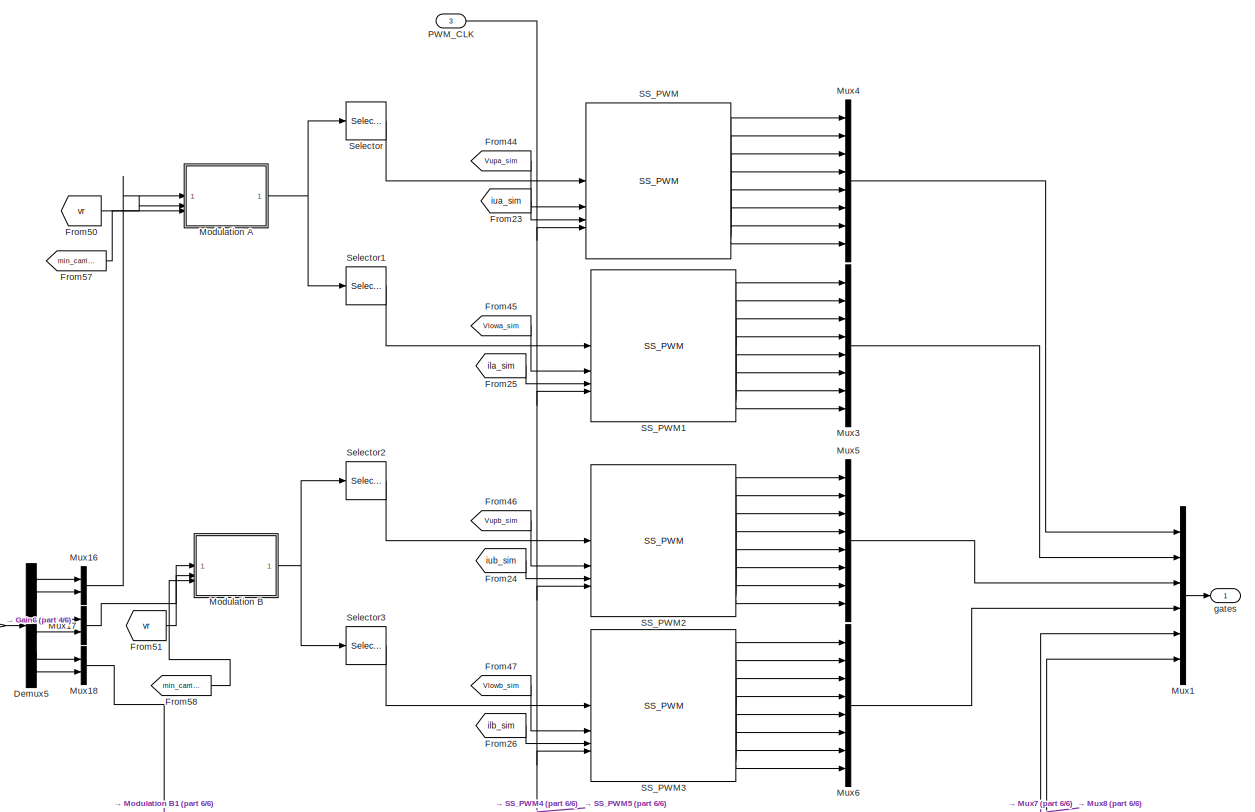
[diagram: Closed_loop_control/Control - part 2/6, top right region]
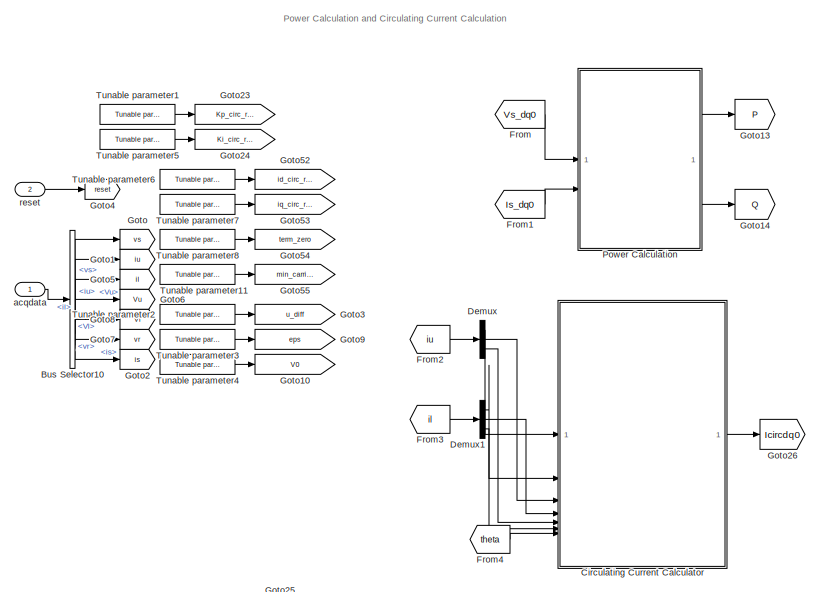
[diagram: Closed_loop_control/Control - part 3/6, top left region]
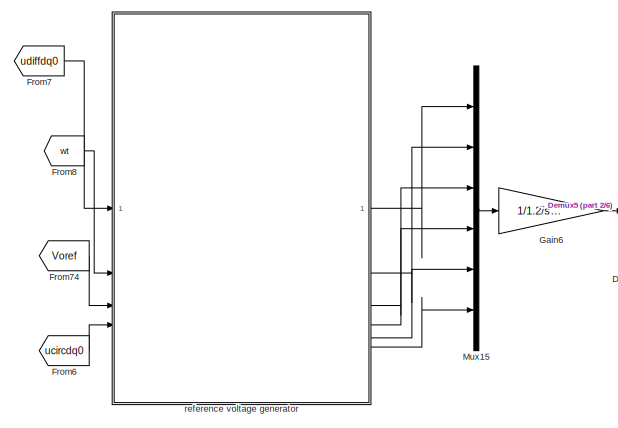
[diagram: Closed_loop_control/Control - part 4/6, central region]
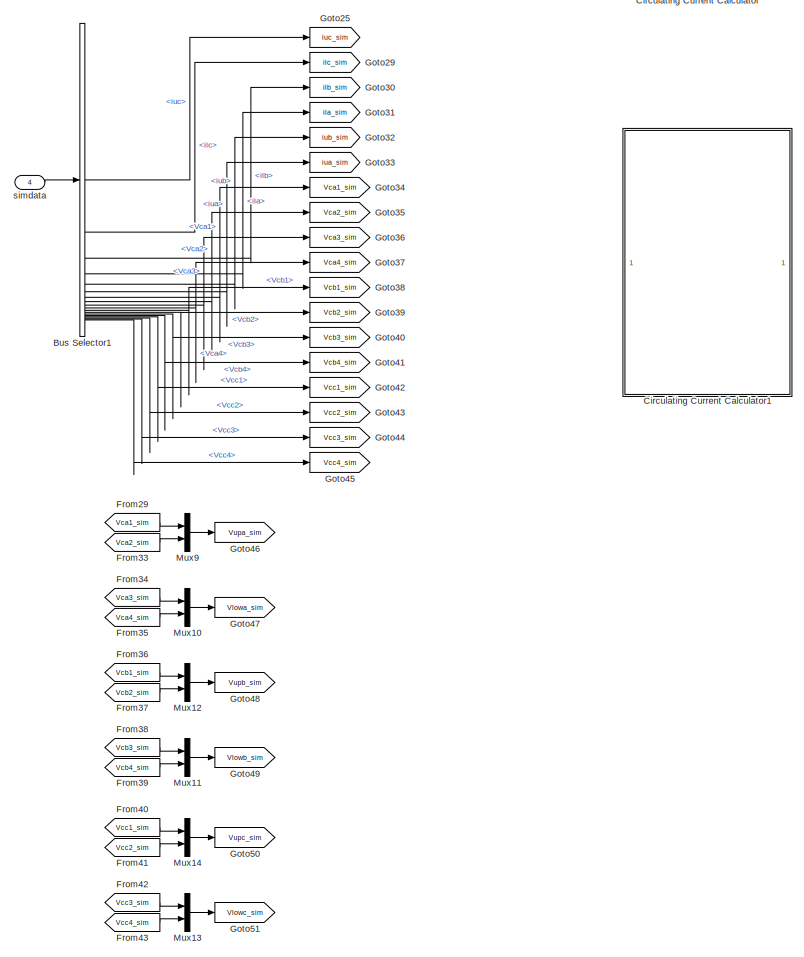
[diagram: Closed_loop_control/Control - part 5/6, bottom left region]
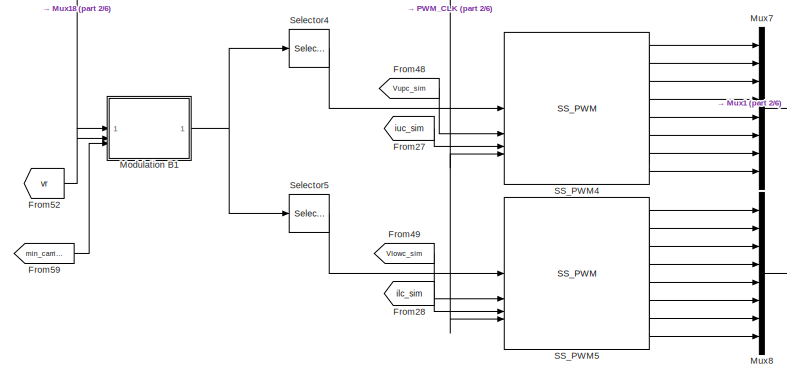
[diagram: Closed_loop_control/Control - part 6/6, middle right region]
BLOCK [SubSystem] Closed_loop_control/Control
BLOCK [BusSelector] Closed_loop_control/Control/Bus Selector1
  NameLocation = right
  OutputSignals = iu.iuc,il.ilc,il.ilb,il.ila,iu.iub,iu.iua,Vca.Vca1,Vca.Vca2,Vca.Vca3,Vca.Vca4,Vcb.Vcb1,Vcb.Vcb2,Vcb.Vcb3,Vcb.Vcb4,Vcc.Vcc1,Vcc.Vcc2,Vcc.Vcc3,Vcc.Vcc4
BLOCK [BusSelector] Closed_loop_control/Control/Bus Selector10
  NameLocation = right
  OutputSignals = vs,iu,il,Vu,Vl,vr,is
BLOCK [SubSystem] Closed_loop_control/Control/Circulating Current Calculator
BLOCK [Gain] Closed_loop_control/Control/Circulating Current Calculator/Gain
  Gain = 1/Ipp_b
BLOCK [Gain] Closed_loop_control/Control/Circulating Current Calculator/Gain2
  Gain = -2
BLOCK [Mux] Closed_loop_control/Control/Circulating Current Calculator/Mux1
  DisplayOption = bar
  Inputs = 3
BLOCK [Scope] Closed_loop_control/Control/Circulating Current Calculator/Scope
  Floating = off
  NumInputPorts = 1
  ScopeSpecificationString = Simulink.scopes.TimeScopeBlockCfg('CurrentConfiguration', extmgr.ConfigurationSet(extmgr.Configuration('Core','General UI',true),extmgr.Configuration('Core','Source UI',true),extmgr.Configuration('Sources','WiredSimulink',true,'DataLoggingVariableName','ScopeData9'),extmgr.Configuration('Visuals','Time Domain',true,'SerializedDisplays',{struct('MinYLimReal','-186.41809','MaxYLimReal','749.99029','...<+1544ch>
BLOCK [Scope] Closed_loop_control/Control/Circulating Current Calculator/Scope1
  Floating = off
  NumInputPorts = 1
  ScopeSpecificationString = Simulink.scopes.TimeScopeBlockCfg('CurrentConfiguration', extmgr.ConfigurationSet(extmgr.Configuration('Core','General UI',true),extmgr.Configuration('Core','Source UI',true),extmgr.Configuration('Sources','WiredSimulink',true,'DataLoggingVariableName','ScopeData2'),extmgr.Configuration('Visuals','Time Domain',true,'SerializedDisplays',{struct('MinYLimReal','-0.03181','MaxYLimReal','0.03931','YLab...<+1551ch>
BLOCK [Sum] Closed_loop_control/Control/Circulating Current Calculator/Sum
  Inputs = |++
BLOCK [Sum] Closed_loop_control/Control/Circulating Current Calculator/Sum1
  Inputs = |++
BLOCK [Sum] Closed_loop_control/Control/Circulating Current Calculator/Sum2
  Inputs = |++
BLOCK [Reference] Closed_loop_control/Control/Circulating Current Calculator/abc to dq3  REF=BoomBox/Transformations/abc to dq0
  SourceBlock = BoomBox/Transformations/abc to dq0
  SourceProductName = Imperix Control
  SourceType = abc to dq0 Transformation
BLOCK [Outport] Closed_loop_control/Control/Circulating Current Calculator/icircdq0
BLOCK [Inport] Closed_loop_control/Control/Circulating Current Calculator/ina
  Port = 2
BLOCK [Inport] Closed_loop_control/Control/Circulating Current Calculator/inb
  Port = 4
BLOCK [Inport] Closed_loop_control/Control/Circulating Current Calculator/inc
  Port = 6
BLOCK [Inport] Closed_loop_control/Control/Circulating Current Calculator/ipa
BLOCK [Inport] Closed_loop_control/Control/Circulating Current Calculator/ipb
  Port = 3
BLOCK [Inport] Closed_loop_control/Control/Circulating Current Calculator/ipc
  Port = 5
BLOCK [Inport] Closed_loop_control/Control/Circulating Current Calculator/theta
  Port = 7
BLOCK [SubSystem] Closed_loop_control/Control/Circulating Current Calculator1
  Commented = on
BLOCK [DigitalClock] Closed_loop_control/Control/Circulating Current Calculator1/Digital Clock
  SampleTime = Ts_Power
BLOCK [Gain] Closed_loop_control/Control/Circulating Current Calculator1/Gain
  Gain = 1/Ipp_b
BLOCK [Gain] Closed_loop_control/Control/Circulating Current Calculator1/Gain1
  Gain = .5
BLOCK [Gain] Closed_loop_control/Control/Circulating Current Calculator1/Gain2
  Gain = -2
BLOCK [Reference] Closed_loop_control/Control/Circulating Current Calculator1/Mean  REF=spsMeanLib/Mean
  SourceBlock = spsMeanLib/Mean
  SourceType = Mean
BLOCK [Mux] Closed_loop_control/Control/Circulating Current Calculator1/Mux1
  DisplayOption = bar
  Inputs = 3
BLOCK [Product] Closed_loop_control/Control/Circulating Current Calculator1/Product
BLOCK [Saturate] Closed_loop_control/Control/Circulating Current Calculator1/Saturation
  LowerLimit = -1.2
  UpperLimit = 1.2
BLOCK [Scope] Closed_loop_control/Control/Circulating Current Calculator1/Scope
  Floating = off
  NumInputPorts = 1
  ScopeSpecificationString = Simulink.scopes.TimeScopeBlockCfg('CurrentConfiguration', extmgr.ConfigurationSet(extmgr.Configuration('Core','General UI',true),extmgr.Configuration('Core','Source UI',true),extmgr.Configuration('Sources','WiredSimulink',true,'DataLoggingVariableName','ScopeData9'),extmgr.Configuration('Visuals','Time Domain',true,'SerializedDisplays',{struct('MinYLimReal','-186.41809','MaxYLimReal','749.99029','...<+1541ch>
BLOCK [Scope] Closed_loop_control/Control/Circulating Current Calculator1/Scope1
  Floating = off
  NumInputPorts = 1
  ScopeSpecificationString = Simulink.scopes.TimeScopeBlockCfg('CurrentConfiguration', extmgr.ConfigurationSet(extmgr.Configuration('Core','General UI',true),extmgr.Configuration('Core','Source UI',true),extmgr.Configuration('Sources','WiredSimulink',true,'DataLoggingVariableName','ScopeData2'),extmgr.Configuration('Visuals','Time Domain',true,'SerializedDisplays',{struct('MinYLimReal','-0.03181','MaxYLimReal','0.03931','YLab...<+1527ch>
BLOCK [Sum] Closed_loop_control/Control/Circulating Current Calculator1/Sum
  Inputs = |++
BLOCK [Sum] Closed_loop_control/Control/Circulating Current Calculator1/Sum1
  Inputs = |++
BLOCK [Sum] Closed_loop_control/Control/Circulating Current Calculator1/Sum2
  Inputs = |++
BLOCK [Sum] Closed_loop_control/Control/Circulating Current Calculator1/Sum3
  Inputs = |-+
BLOCK [Reference] Closed_loop_control/Control/Circulating Current Calculator1/abc to dq3  REF=BoomBox/Transformations/abc to dq0
  SourceBlock = BoomBox/Transformations/abc to dq0
  SourceProductName = Imperix Control
  SourceType = abc to dq0 Transformation
BLOCK [Outport] Closed_loop_control/Control/Circulating Current Calculator1/icircdq0
BLOCK [Inport] Closed_loop_control/Control/Circulating Current Calculator1/ina
  Port = 2
BLOCK [Inport] Closed_loop_control/Control/Circulating Current Calculator1/inb
  Port = 4
BLOCK [Inport] Closed_loop_control/Control/Circulating Current Calculator1/inc
  Port = 6
BLOCK [Inport] Closed_loop_control/Control/Circulating Current Calculator1/ipa
BLOCK [Inport] Closed_loop_control/Control/Circulating Current Calculator1/ipb
  Port = 3
BLOCK [Inport] Closed_loop_control/Control/Circulating Current Calculator1/ipc
  Port = 5
BLOCK [Inport] Closed_loop_control/Control/Circulating Current Calculator1/w
  Port = 7
BLOCK [Demux] Closed_loop_control/Control/Demux
  Outputs = 3
BLOCK [Demux] Closed_loop_control/Control/Demux1
  Outputs = 3
BLOCK [Demux] Closed_loop_control/Control/Demux4
  Outputs = 3
BLOCK [Demux] Closed_loop_control/Control/Demux5
  Outputs = 6
BLOCK [From] Closed_loop_control/Control/From
  GotoTag = Vs_dq0
BLOCK [From] Closed_loop_control/Control/From1
  GotoTag = Is_dq0
BLOCK [From] Closed_loop_control/Control/From10
  GotoTag = eps
  TagVisibility = global
BLOCK [From] Closed_loop_control/Control/From11
  GotoTag = reset
BLOCK [From] Closed_loop_control/Control/From12
  GotoTag = Kp_circ_reg
  TagVisibility = global
BLOCK [From] Closed_loop_control/Control/From13
  GotoTag = V0
  TagVisibility = global
BLOCK [From] Closed_loop_control/Control/From14
  GotoTag = Ki_circ_reg
  TagVisibility = global
BLOCK [From] Closed_loop_control/Control/From2
  GotoTag = iu
BLOCK [From] Closed_loop_control/Control/From22
  GotoTag = w
BLOCK [From] Closed_loop_control/Control/From23
  GotoTag = iua_sim
BLOCK [From] Closed_loop_control/Control/From24
  GotoTag = iub_sim
BLOCK [From] Closed_loop_control/Control/From25
  GotoTag = ila_sim
BLOCK [From] Closed_loop_control/Control/From26
  GotoTag = ilb_sim
BLOCK [From] Closed_loop_control/Control/From27
  GotoTag = iuc_sim
BLOCK [From] Closed_loop_control/Control/From28
  GotoTag = ilc_sim
BLOCK [From] Closed_loop_control/Control/From29
  GotoTag = Vca1_sim
BLOCK [From] Closed_loop_control/Control/From3
  GotoTag = il
BLOCK [From] Closed_loop_control/Control/From30
  GotoTag = Icircdq0
BLOCK [From] Closed_loop_control/Control/From33
  GotoTag = Vca2_sim
BLOCK [From] Closed_loop_control/Control/From34
  GotoTag = Vca3_sim
BLOCK [From] Closed_loop_control/Control/From35
  GotoTag = Vca4_sim
BLOCK [From] Closed_loop_control/Control/From36
  GotoTag = Vcb1_sim
BLOCK [From] Closed_loop_control/Control/From37
  GotoTag = Vcb2_sim
BLOCK [From] Closed_loop_control/Control/From38
  GotoTag = Vcb3_sim
BLOCK [From] Closed_loop_control/Control/From39
  GotoTag = Vcb4_sim
BLOCK [From] Closed_loop_control/Control/From4
  GotoTag = theta
BLOCK [From] Closed_loop_control/Control/From40
  GotoTag = Vcc1_sim
BLOCK [From] Closed_loop_control/Control/From41
  GotoTag = Vcc2_sim
BLOCK [From] Closed_loop_control/Control/From42
  GotoTag = Vcc3_sim
BLOCK [From] Closed_loop_control/Control/From43
  GotoTag = Vcc4_sim
BLOCK [From] Closed_loop_control/Control/From44
  GotoTag = Vupa_sim
BLOCK [From] Closed_loop_control/Control/From45
  GotoTag = Vlowa_sim
BLOCK [From] Closed_loop_control/Control/From46
  GotoTag = Vupb_sim
BLOCK [From] Closed_loop_control/Control/From47
  GotoTag = Vlowb_sim
BLOCK [From] Closed_loop_control/Control/From48
  GotoTag = Vupc_sim
BLOCK [From] Closed_loop_control/Control/From49
  GotoTag = Vlowc_sim
BLOCK [From] Closed_loop_control/Control/From5
  GotoTag = u_diff
  TagVisibility = global
BLOCK [From] Closed_loop_control/Control/From50
  GotoTag = vr
BLOCK [From] Closed_loop_control/Control/From51
  GotoTag = vr
BLOCK [From] Closed_loop_control/Control/From52
  GotoTag = vr
BLOCK [From] Closed_loop_control/Control/From54
  GotoTag = term_zero
  TagVisibility = global
BLOCK [From] Closed_loop_control/Control/From55
  GotoTag = id_circ_ref
  TagVisibility = global
BLOCK [From] Closed_loop_control/Control/From56
  GotoTag = iq_circ_ref
  TagVisibility = global
BLOCK [From] Closed_loop_control/Control/From57
  GotoTag = min_carrier
  TagVisibility = global
BLOCK [From] Closed_loop_control/Control/From58
  GotoTag = min_carrier
  TagVisibility = global
BLOCK [From] Closed_loop_control/Control/From59
  GotoTag = min_carrier
  TagVisibility = global
BLOCK [From] Closed_loop_control/Control/From6
  GotoTag = ucircdq0
BLOCK [From] Closed_loop_control/Control/From60
  GotoTag = vs
BLOCK [From] Closed_loop_control/Control/From61
  GotoTag = is
BLOCK [From] Closed_loop_control/Control/From7
  GotoTag = udiffdq0
BLOCK [From] Closed_loop_control/Control/From74
  GotoTag = Voref
BLOCK [From] Closed_loop_control/Control/From8
  GotoTag = wt
BLOCK [From] Closed_loop_control/Control/From9
  GotoTag = term_zero
  TagVisibility = global
BLOCK [Gain] Closed_loop_control/Control/Gain6
  Gain = 1/1.2/sqrt(3/2)
BLOCK [Goto] Closed_loop_control/Control/Goto
  GotoTag = vs
BLOCK [Goto] Closed_loop_control/Control/Goto1
  GotoTag = iu
BLOCK [Goto] Closed_loop_control/Control/Goto10
  GotoTag = V0
  TagVisibility = global
BLOCK [Goto] Closed_loop_control/Control/Goto13
  GotoTag = P
BLOCK [Goto] Closed_loop_control/Control/Goto14
  GotoTag = Q
BLOCK [Goto] Closed_loop_control/Control/Goto15
  GotoTag = P0
BLOCK [Goto] Closed_loop_control/Control/Goto16
  GotoTag = Q0
BLOCK [Goto] Closed_loop_control/Control/Goto2
  GotoTag = is
BLOCK [Goto] Closed_loop_control/Control/Goto23
  GotoTag = Kp_circ_reg
  TagVisibility = global
BLOCK [Goto] Closed_loop_control/Control/Goto24
  GotoTag = Ki_circ_reg
  TagVisibility = global
BLOCK [Goto] Closed_loop_control/Control/Goto25
  GotoTag = iuc_sim
BLOCK [Goto] Closed_loop_control/Control/Goto26
  GotoTag = Icircdq0
BLOCK [Goto] Closed_loop_control/Control/Goto27
  GotoTag = udiffdq0
BLOCK [Goto] Closed_loop_control/Control/Goto28
  GotoTag = ucircdq0
BLOCK [Goto] Closed_loop_control/Control/Goto29
  GotoTag = ilc_sim
BLOCK [Goto] Closed_loop_control/Control/Goto3
  GotoTag = u_diff
  TagVisibility = global
BLOCK [Goto] Closed_loop_control/Control/Goto30
  GotoTag = ilb_sim
BLOCK [Goto] Closed_loop_control/Control/Goto31
  GotoTag = ila_sim
BLOCK [Goto] Closed_loop_control/Control/Goto32
  GotoTag = iub_sim
BLOCK [Goto] Closed_loop_control/Control/Goto33
  GotoTag = iua_sim
BLOCK [Goto] Closed_loop_control/Control/Goto34
  GotoTag = Vca1_sim
BLOCK [Goto] Closed_loop_control/Control/Goto35
  GotoTag = Vca2_sim
BLOCK [Goto] Closed_loop_control/Control/Goto36
  GotoTag = Vca3_sim
BLOCK [Goto] Closed_loop_control/Control/Goto37
  GotoTag = Vca4_sim
BLOCK [Goto] Closed_loop_control/Control/Goto38
  GotoTag = Vcb1_sim
BLOCK [Goto] Closed_loop_control/Control/Goto39
  GotoTag = Vcb2_sim
BLOCK [Goto] Closed_loop_control/Control/Goto4
  GotoTag = reset
BLOCK [Goto] Closed_loop_control/Control/Goto40
  GotoTag = Vcb3_sim
BLOCK [Goto] Closed_loop_control/Control/Goto41
  GotoTag = Vcb4_sim
BLOCK [Goto] Closed_loop_control/Control/Goto42
  GotoTag = Vcc1_sim
BLOCK [Goto] Closed_loop_control/Control/Goto43
  GotoTag = Vcc2_sim
BLOCK [Goto] Closed_loop_control/Control/Goto44
  GotoTag = Vcc3_sim
BLOCK [Goto] Closed_loop_control/Control/Goto45
  GotoTag = Vcc4_sim
BLOCK [Goto] Closed_loop_control/Control/Goto46
  GotoTag = Vupa_sim
BLOCK [Goto] Closed_loop_control/Control/Goto47
  GotoTag = Vlowa_sim
BLOCK [Goto] Closed_loop_control/Control/Goto48
  GotoTag = Vupb_sim
BLOCK [Goto] Closed_loop_control/Control/Goto49
  GotoTag = Vlowb_sim
BLOCK [Goto] Closed_loop_control/Control/Goto5
  GotoTag = il
BLOCK [Goto] Closed_loop_control/Control/Goto50
  GotoTag = Vupc_sim
BLOCK [Goto] Closed_loop_control/Control/Goto51
  GotoTag = Vlowc_sim
BLOCK [Goto] Closed_loop_control/Control/Goto52
  GotoTag = id_circ_ref
  TagVisibility = global
BLOCK [Goto] Closed_loop_control/Control/Goto53
  GotoTag = iq_circ_ref
  TagVisibility = global
BLOCK [Goto] Closed_loop_control/Control/Goto54
  GotoTag = term_zero
  TagVisibility = global
BLOCK [Goto] Closed_loop_control/Control/Goto55
  GotoTag = min_carrier
  TagVisibility = global
BLOCK [Goto] Closed_loop_control/Control/Goto56
  GotoTag = Vdref
BLOCK [Goto] Closed_loop_control/Control/Goto57
  GotoTag = Vqref
BLOCK [Goto] Closed_loop_control/Control/Goto58
  GotoTag = Pref
BLOCK [Goto] Closed_loop_control/Control/Goto59
  GotoTag = Qref
BLOCK [Goto] Closed_loop_control/Control/Goto6
  GotoTag = Vu
BLOCK [Goto] Closed_loop_control/Control/Goto60
  GotoTag = Voref
BLOCK [Goto] Closed_loop_control/Control/Goto61
  GotoTag = wt
BLOCK [Goto] Closed_loop_control/Control/Goto62
  GotoTag = f
BLOCK [Goto] Closed_loop_control/Control/Goto7
  GotoTag = vr
BLOCK [Goto] Closed_loop_control/Control/Goto8
  GotoTag = Vl
BLOCK [Goto] Closed_loop_control/Control/Goto9
  GotoTag = eps
  TagVisibility = global
BLOCK [SubSystem] Closed_loop_control/Control/Modulation A
BLOCK [Gain] Closed_loop_control/Control/Modulation A/Decoupling8
  Gain = [-1;+1]
BLOCK [Product] Closed_loop_control/Control/Modulation A/Divide
  Inputs = */
BLOCK [Inport] Closed_loop_control/Control/Modulation A/Ea_ref
BLOCK [Gain] Closed_loop_control/Control/Modulation A/Gain1
  Gain = 1/2
BLOCK [MinMax] Closed_loop_control/Control/Modulation A/MinMax
  Function = max
  Inputs = 2
BLOCK [Inport] Closed_loop_control/Control/Modulation A/Vdc
  Port = 2
BLOCK [Outport] Closed_loop_control/Control/Modulation A/m_A
BLOCK [Inport] Closed_loop_control/Control/Modulation A/min_carrier
  Port = 3
BLOCK [SubSystem] Closed_loop_control/Control/Modulation B
BLOCK [Gain] Closed_loop_control/Control/Modulation B/Decoupling8
  Gain = [-1;+1]
BLOCK [Product] Closed_loop_control/Control/Modulation B/Divide
  Inputs = */
BLOCK [Inport] Closed_loop_control/Control/Modulation B/Eb_ref
BLOCK [Gain] Closed_loop_control/Control/Modulation B/Gain1
  Gain = 1/2
BLOCK [MinMax] Closed_loop_control/Control/Modulation B/MinMax
  Function = max
  Inputs = 2
BLOCK [Inport] Closed_loop_control/Control/Modulation B/Vdc
  Port = 2
BLOCK [Outport] Closed_loop_control/Control/Modulation B/m_B
BLOCK [Inport] Closed_loop_control/Control/Modulation B/min_carrier
  Port = 3
BLOCK [SubSystem] Closed_loop_control/Control/Modulation B1
BLOCK [Gain] Closed_loop_control/Control/Modulation B1/Decoupling8
  Gain = [-1;+1]
BLOCK [Product] Closed_loop_control/Control/Modulation B1/Divide
  Inputs = */
BLOCK [Inport] Closed_loop_control/Control/Modulation B1/Ec_ref
BLOCK [Gain] Closed_loop_control/Control/Modulation B1/Gain1
  Gain = 1/2
BLOCK [MinMax] Closed_loop_control/Control/Modulation B1/MinMax
  Function = max
  Inputs = 2
BLOCK [Inport] Closed_loop_control/Control/Modulation B1/Vdc
  Port = 2
BLOCK [Outport] Closed_loop_control/Control/Modulation B1/m_C
BLOCK [Inport] Closed_loop_control/Control/Modulation B1/min_carrier
  Port = 3
BLOCK [Mux] Closed_loop_control/Control/Mux
  DisplayOption = bar
  Inputs = 3
BLOCK [Mux] Closed_loop_control/Control/Mux1
  DisplayOption = bar
  Inputs = 6
BLOCK [Mux] Closed_loop_control/Control/Mux10
  DisplayOption = bar
  Inputs = 2
BLOCK [Mux] Closed_loop_control/Control/Mux11
  DisplayOption = bar
  Inputs = 2
BLOCK [Mux] Closed_loop_control/Control/Mux12
  DisplayOption = bar
  Inputs = 2
BLOCK [Mux] Closed_loop_control/Control/Mux13
  DisplayOption = bar
  Inputs = 2
BLOCK [Mux] Closed_loop_control/Control/Mux14
  DisplayOption = bar
  Inputs = 2
BLOCK [Mux] Closed_loop_control/Control/Mux15
  DisplayOption = bar
  Inputs = 6
BLOCK [Mux] Closed_loop_control/Control/Mux16
  DisplayOption = bar
  Inputs = 2
BLOCK [Mux] Closed_loop_control/Control/Mux17
  DisplayOption = bar
  Inputs = 2
BLOCK [Mux] Closed_loop_control/Control/Mux18
  DisplayOption = bar
  Inputs = 2
BLOCK [Mux] Closed_loop_control/Control/Mux2
  DisplayOption = bar
  Inputs = 3
BLOCK [Mux] Closed_loop_control/Control/Mux3
  DisplayOption = bar
  Inputs = 8
BLOCK [Mux] Closed_loop_control/Control/Mux4
  DisplayOption = bar
  Inputs = 8
BLOCK [Mux] Closed_loop_control/Control/Mux5
  DisplayOption = bar
  Inputs = 8
BLOCK [Mux] Closed_loop_control/Control/Mux6
  DisplayOption = bar
  Inputs = 8
BLOCK [Mux] Closed_loop_control/Control/Mux7
  DisplayOption = bar
  Inputs = 8
BLOCK [Mux] Closed_loop_control/Control/Mux8
  DisplayOption = bar
  Inputs = 8
BLOCK [Mux] Closed_loop_control/Control/Mux9
  DisplayOption = bar
  Inputs = 2
BLOCK [Inport] Closed_loop_control/Control/PWM_CLK
  Port = 3
BLOCK [SubSystem] Closed_loop_control/Control/Power Calculation
BLOCK [Demux] Closed_loop_control/Control/Power Calculation/Demux
  Outputs = 3
BLOCK [Demux] Closed_loop_control/Control/Power Calculation/Demux1
  Outputs = 3
BLOCK [Inport] Closed_loop_control/Control/Power Calculation/Isdq0
  NameLocation = left
  Port = 2
BLOCK [Outport] Closed_loop_control/Control/Power Calculation/P
  NameLocation = right
BLOCK [Product] Closed_loop_control/Control/Power Calculation/Product
BLOCK [Product] Closed_loop_control/Control/Power Calculation/Product1
BLOCK [Product] Closed_loop_control/Control/Power Calculation/Product2
BLOCK [Product] Closed_loop_control/Control/Power Calculation/Product3
BLOCK [Outport] Closed_loop_control/Control/Power Calculation/Q
  NameLocation = right
  Port = 2
BLOCK [Sum] Closed_loop_control/Control/Power Calculation/Sum
  Inputs = |++
BLOCK [Sum] Closed_loop_control/Control/Power Calculation/Sum1
  Inputs = |+-
BLOCK [Terminator] Closed_loop_control/Control/Power Calculation/Terminator
BLOCK [Terminator] Closed_loop_control/Control/Power Calculation/Terminator1
BLOCK [Inport] Closed_loop_control/Control/Power Calculation/Vsdq0
  NameLocation = left
BLOCK [Reference] Closed_loop_control/Control/SS_PWM  REF=BoomBox/SS_PWM
  SourceBlock = BoomBox/SS_PWM
  SourceProductName = Imperix Control
  SourceType = Sort and Select PWM
BLOCK [Reference] Closed_loop_control/Control/SS_PWM1  REF=BoomBox/SS_PWM
  SourceBlock = BoomBox/SS_PWM
  SourceProductName = Imperix Control
  SourceType = Sort and Select PWM
BLOCK [Reference] Closed_loop_control/Control/SS_PWM2  REF=BoomBox/SS_PWM
  SourceBlock = BoomBox/SS_PWM
  SourceProductName = Imperix Control
  SourceType = Sort and Select PWM
BLOCK [Reference] Closed_loop_control/Control/SS_PWM3  REF=BoomBox/SS_PWM
  SourceBlock = BoomBox/SS_PWM
  SourceProductName = Imperix Control
  SourceType = Sort and Select PWM
BLOCK [Reference] Closed_loop_control/Control/SS_PWM4  REF=BoomBox/SS_PWM
  SourceBlock = BoomBox/SS_PWM
  SourceProductName = Imperix Control
  SourceType = Sort and Select PWM
BLOCK [Reference] Closed_loop_control/Control/SS_PWM5  REF=BoomBox/SS_PWM
  SourceBlock = BoomBox/SS_PWM
  SourceProductName = Imperix Control
  SourceType = Sort and Select PWM
BLOCK [Scope] Closed_loop_control/Control/Scope
  Floating = off
  NumInputPorts = 1
  ScopeSpecificationString = Simulink.scopes.TimeScopeBlockCfg('CurrentConfiguration', extmgr.ConfigurationSet(extmgr.Configuration('Core','General UI',true),extmgr.Configuration('Core','Source UI',true),extmgr.Configuration('Sources','WiredSimulink',true,'DataLoggingVariableName','ScopeData1'),extmgr.Configuration('Visuals','Time Domain',true,'SerializedDisplays',{struct('MinYLimReal','-1169.69878','MaxYLimReal','1176.83183'...<+1542ch>
BLOCK [Scope] Closed_loop_control/Control/Scope1
  Floating = off
  NumInputPorts = 1
  ScopeSpecificationString = Simulink.scopes.TimeScopeBlockCfg('CurrentConfiguration', extmgr.ConfigurationSet(extmgr.Configuration('Core','General UI',true),extmgr.Configuration('Core','Source UI',true),extmgr.Configuration('Sources','WiredSimulink',true,'DataLoggingVariableName','ScopeData2'),extmgr.Configuration('Visuals','Time Domain',true,'SerializedDisplays',{struct('MinYLimReal','39.51982','MaxYLimReal','59.84347','YLa...<+1489ch>
BLOCK [Scope] Closed_loop_control/Control/Scope8
  Floating = off
  NumInputPorts = 2
  ScopeSpecificationString = Simulink.scopes.TimeScopeBlockCfg('CurrentConfiguration', extmgr.ConfigurationSet(extmgr.Configuration('Core','General UI',true),extmgr.Configuration('Core','Source UI',true),extmgr.Configuration('Sources','WiredSimulink',true,'DataLoggingVariableName','ScopeData1'),extmgr.Configuration('Visuals','Time Domain',true,'SerializedDisplays',{struct('MinYLimReal','-0.01454','MaxYLimReal','0.01298','YLab...<+1540ch>
BLOCK [Selector] Closed_loop_control/Control/Selector
  IndexOptions = Index vector (dialog)
  Indices = 1
  InputPortWidth = 2
  OutputSizes = 1
BLOCK [Selector] Closed_loop_control/Control/Selector1
  IndexOptions = Index vector (dialog)
  Indices = 2
  InputPortWidth = 2
  OutputSizes = 1
BLOCK [Selector] Closed_loop_control/Control/Selector2
  IndexOptions = Index vector (dialog)
  Indices = 1
  InputPortWidth = 2
  OutputSizes = 1
BLOCK [Selector] Closed_loop_control/Control/Selector3
  IndexOptions = Index vector (dialog)
  Indices = 2
  InputPortWidth = 2
  OutputSizes = 1
BLOCK [Selector] Closed_loop_control/Control/Selector4
  IndexOptions = Index vector (dialog)
  Indices = 1
  InputPortWidth = 2
  OutputSizes = 1
BLOCK [Selector] Closed_loop_control/Control/Selector5
  IndexOptions = Index vector (dialog)
  Indices = 2
  InputPortWidth = 2
  OutputSizes = 1
BLOCK [Terminator] Closed_loop_control/Control/Terminator6
BLOCK [Reference] Closed_loop_control/Control/Tunable parameter  REF=BoomBox/Tunable parameter
  SourceBlock = BoomBox/Tunable parameter
  SourceProductName = Imperix Control
  SourceType = Tunable parameter
BLOCK [Reference] Closed_loop_control/Control/Tunable parameter1  REF=BoomBox/Tunable parameter
  SourceBlock = BoomBox/Tunable parameter
  SourceProductName = Imperix Control
  SourceType = Tunable parameter
BLOCK [Reference] Closed_loop_control/Control/Tunable parameter11  REF=BoomBox/Tunable parameter
  SourceBlock = BoomBox/Tunable parameter
  SourceProductName = Imperix Control
  SourceType = Tunable parameter
BLOCK [Reference] Closed_loop_control/Control/Tunable parameter2  REF=BoomBox/Tunable parameter
  SourceBlock = BoomBox/Tunable parameter
  SourceProductName = Imperix Control
  SourceType = Tunable parameter
BLOCK [Reference] Closed_loop_control/Control/Tunable parameter3  REF=BoomBox/Tunable parameter
  SourceBlock = BoomBox/Tunable parameter
  SourceProductName = Imperix Control
  SourceType = Tunable parameter
BLOCK [Reference] Closed_loop_control/Control/Tunable parameter4  REF=BoomBox/Tunable parameter
  SourceBlock = BoomBox/Tunable parameter
  SourceProductName = Imperix Control
  SourceType = Tunable parameter
BLOCK [Reference] Closed_loop_control/Control/Tunable parameter5  REF=BoomBox/Tunable parameter
  SourceBlock = BoomBox/Tunable parameter
  SourceProductName = Imperix Control
  SourceType = Tunable parameter
BLOCK [Reference] Closed_loop_control/Control/Tunable parameter6  REF=BoomBox/Tunable parameter
  SourceBlock = BoomBox/Tunable parameter
  SourceProductName = Imperix Control
  SourceType = Tunable parameter
BLOCK [Reference] Closed_loop_control/Control/Tunable parameter7  REF=BoomBox/Tunable parameter
  SourceBlock = BoomBox/Tunable parameter
  SourceProductName = Imperix Control
  SourceType = Tunable parameter
BLOCK [Reference] Closed_loop_control/Control/Tunable parameter8  REF=BoomBox/Tunable parameter
  SourceBlock = BoomBox/Tunable parameter
  SourceProductName = Imperix Control
  SourceType = Tunable parameter
BLOCK [Reference] Closed_loop_control/Control/Tunable parameter9  REF=BoomBox/Tunable parameter
  SourceBlock = BoomBox/Tunable parameter
  SourceProductName = Imperix Control
  SourceType = Tunable parameter
BLOCK [Inport] Closed_loop_control/Control/acqdata
BLOCK [SubSystem] Closed_loop_control/Control/circulating current controller
BLOCK [Gain] Closed_loop_control/Control/circulating current controller/Gain
  Gain = 2*L
BLOCK [Gain] Closed_loop_control/Control/circulating current controller/Gain1
  Gain = 2*L
BLOCK [Gain] Closed_loop_control/Control/circulating current controller/Gain10
  Gain = 1/V_b
BLOCK [Gain] Closed_loop_control/Control/circulating current controller/Gain2
  Gain = I_b
BLOCK [Gain] Closed_loop_control/Control/circulating current controller/Gain3
  Gain = I_b
BLOCK [Gain] Closed_loop_control/Control/circulating current controller/Gain4
  Gain = I_b
BLOCK [Gain] Closed_loop_control/Control/circulating current controller/Gain5
  Gain = I_b
BLOCK [Gain] Closed_loop_control/Control/circulating current controller/Gain6
  Gain = w_b
BLOCK [Gain] Closed_loop_control/Control/circulating current controller/Gain7
  Gain = -1
BLOCK [Gain] Closed_loop_control/Control/circulating current controller/Gain8
  Gain = -1
BLOCK [Gain] Closed_loop_control/Control/circulating current controller/Gain9
  Gain = 1/V_b
BLOCK [Inport] Closed_loop_control/Control/circulating current controller/Icircd
BLOCK [Inport] Closed_loop_control/Control/circulating current controller/Icircd_ref
  Port = 7
BLOCK [Inport] Closed_loop_control/Control/circulating current controller/Icircq
  Port = 2
BLOCK [Inport] Closed_loop_control/Control/circulating current controller/Icircq_ref
  Port = 8
BLOCK [Inport] Closed_loop_control/Control/circulating current controller/Ki_circ_reg1
  Port = 5
BLOCK [Inport] Closed_loop_control/Control/circulating current controller/Kp_circ_reg
  Port = 4
BLOCK [Reference] Closed_loop_control/Control/circulating current controller/PID Controller  REF=slpidlib/PID Controller
  SourceBlock = slpidlib/PID Controller
  SourceType = PID 1dof
BLOCK [Reference] Closed_loop_control/Control/circulating current controller/PID Controller1  REF=slpidlib/PID Controller
  SourceBlock = slpidlib/PID Controller
  SourceType = PID 1dof
BLOCK [Product] Closed_loop_control/Control/circulating current controller/Product
BLOCK [Product] Closed_loop_control/Control/circulating current controller/Product1
BLOCK [Sum] Closed_loop_control/Control/circulating current controller/Sum
  Inputs = |+-
BLOCK [Sum] Closed_loop_control/Control/circulating current controller/Sum1
  Inputs = |--
BLOCK [Sum] Closed_loop_control/Control/circulating current controller/Sum2
  Inputs = -+|
BLOCK [Sum] Closed_loop_control/Control/circulating current controller/Sum3
  Inputs = +-|
BLOCK [Inport] Closed_loop_control/Control/circulating current controller/reset
  Port = 6
BLOCK [Outport] Closed_loop_control/Control/circulating current controller/ucommd*
BLOCK [Outport] Closed_loop_control/Control/circulating current controller/ucommq*
  Port = 2
BLOCK [Inport] Closed_loop_control/Control/circulating current controller/w
  Port = 3
BLOCK [Outport] Closed_loop_control/Control/gates
BLOCK [SubSystem] Closed_loop_control/Control/reference voltage generator
BLOCK [Demux] Closed_loop_control/Control/reference voltage generator/Demux
  Outputs = 3
BLOCK [Demux] Closed_loop_control/Control/reference voltage generator/Demux1
  Outputs = 3
BLOCK [Gain] Closed_loop_control/Control/reference voltage generator/Gain2
  Gain = -2
BLOCK [ManualSwitch] Closed_loop_control/Control/reference voltage generator/Manual Switch
BLOCK [Scope] Closed_loop_control/Control/reference voltage generator/Scope1
  Floating = off
  NumInputPorts = 1
  ScopeSpecificationString = Simulink.scopes.TimeScopeBlockCfg('CurrentConfiguration', extmgr.ConfigurationSet(extmgr.Configuration('Core','General UI',true),extmgr.Configuration('Core','Source UI',true),extmgr.Configuration('Sources','WiredSimulink',true,'DataLoggingVariableName','ScopeData1'),extmgr.Configuration('Visuals','Time Domain',true,'SerializedDisplays',{struct('MinYLimReal','-0.13706','MaxYLimReal','0.13644','YLab...<+1572ch>
BLOCK [Sum] Closed_loop_control/Control/reference voltage generator/Sum
  Inputs = |++
BLOCK [Sum] Closed_loop_control/Control/reference voltage generator/Sum1
  Inputs = +-|
BLOCK [Inport] Closed_loop_control/Control/reference voltage generator/Voref
  Port = 3
BLOCK [Reference] Closed_loop_control/Control/reference voltage generator/dq0 to abc1  REF=BoomBox/Transformations/dq0 to abc
  SourceBlock = BoomBox/Transformations/dq0 to abc
  SourceProductName = Imperix Control
  SourceType = dq0 to abc Transformation
BLOCK [Reference] Closed_loop_control/Control/reference voltage generator/dq0 to abc2  REF=BoomBox/Transformations/dq0 to abc
  SourceBlock = BoomBox/Transformations/dq0 to abc
  SourceProductName = Imperix Control
  SourceType = dq0 to abc Transformation
BLOCK [Inport] Closed_loop_control/Control/reference voltage generator/ucirc
  Port = 4
BLOCK [Inport] Closed_loop_control/Control/reference voltage generator/udiff
BLOCK [Outport] Closed_loop_control/Control/reference voltage generator/una*
  Port = 2
BLOCK [Outport] Closed_loop_control/Control/reference voltage generator/unb*
  Port = 4
BLOCK [Outport] Closed_loop_control/Control/reference voltage generator/unc*
  Port = 6
BLOCK [Outport] Closed_loop_control/Control/reference voltage generator/upa*
BLOCK [Outport] Closed_loop_control/Control/reference voltage generator/upb*
  Port = 3
BLOCK [Outport] Closed_loop_control/Control/reference voltage generator/upc*
  Port = 5
BLOCK [Inport] Closed_loop_control/Control/reference voltage generator/wt
  Port = 2
BLOCK [Inport] Closed_loop_control/Control/reset
  Port = 2
BLOCK [Inport] Closed_loop_control/Control/simdata
  Port = 4
BLOCK [SubSystem] Closed_loop_control/Control/uVOC
BLOCK [Abs] Closed_loop_control/Control/uVOC/Abs
  SaturateOnIntegerOverflow = off
BLOCK [Reference] Closed_loop_control/Control/uVOC/Alpha-Beta-Zero to abc  REF=BoomBox/Transformations/Alpha-Beta-Zero
to abc
  SourceBlock = BoomBox/Transformations/Alpha-Beta-Zero\nto abc
  SourceProductName = Imperix Control
  SourceType = Alpha-Beta-Zero to abc Transformation
BLOCK [Reference] Closed_loop_control/Control/uVOC/Alpha-Beta-Zero to dq0  REF=BoomBox/Transformations/Alpha-Beta-Zero
to dq0
  SourceBlock = BoomBox/Transformations/Alpha-Beta-Zero\nto dq0
  SourceProductName = Imperix Control
  SourceType = Alpha-Beta-Zero to dq0 Transformation
BLOCK [ComplexToMagnitudeAngle] Closed_loop_control/Control/uVOC/Complex to Magnitude-Angle
BLOCK [ComplexToMagnitudeAngle] Closed_loop_control/Control/uVOC/Complex to Magnitude-Angle1
BLOCK [ComplexToRealImag] Closed_loop_control/Control/uVOC/Complex to Real-Imag
BLOCK [ComplexToRealImag] Closed_loop_control/Control/uVOC/Complex to Real-Imag1
BLOCK [Math] Closed_loop_control/Control/uVOC/Conj
  Operator = conj
BLOCK [Delay] Closed_loop_control/Control/uVOC/Delay1
  DelayLength = 1
  InitialCondition = 50
  InputPortMap = u0
  InputProcessing = Columns as channels (frame based)
  SampleTime = Ts_Power
BLOCK [Delay] Closed_loop_control/Control/uVOC/Delay2
  DelayLength = 1
  InitialCondition = 50
  InputPortMap = u0
  InputProcessing = Columns as channels (frame based)
  SampleTime = Ts_Power
BLOCK [Delay] Closed_loop_control/Control/uVOC/Delay3
  DelayLength = 1
  InitialCondition = 50
  InputPortMap = u0
  InputProcessing = Columns as channels (frame based)
  SampleTime = Ts_Power
BLOCK [Delay] Closed_loop_control/Control/uVOC/Delay6
  DelayLength = 1
  InitialCondition = 1
  InputPortMap = u0
  InputProcessing = Columns as channels (frame based)
  NameLocation = top
BLOCK [Delay] Closed_loop_control/Control/uVOC/Delay7
  DelayLength = 1
  InputPortMap = u0
  InputProcessing = Columns as channels (frame based)
  NameLocation = top
BLOCK [Demux] Closed_loop_control/Control/uVOC/Demux4
  Outputs = 3
BLOCK [Demux] Closed_loop_control/Control/uVOC/Demux5
  Outputs = 3
BLOCK [Demux] Closed_loop_control/Control/uVOC/Demux6
  Outputs = 3
BLOCK [DiscreteIntegrator] Closed_loop_control/Control/uVOC/Discrete-Time Integrator
  ICPrevOutput = DiscIntNeverNeededParam
  ICPrevScaledInput = DiscIntNeverNeededParam
  InitialConditionSetting = Auto
  IntegratorMethod = Integration: Backward Euler
  SampleTime = -1
BLOCK [DiscreteIntegrator] Closed_loop_control/Control/uVOC/Discrete-Time Integrator1
  ICPrevOutput = DiscIntNeverNeededParam
  ICPrevScaledInput = DiscIntNeverNeededParam
  InitialCondition = -1
  InitialConditionSetting = Auto
  IntegratorMethod = Integration: Backward Euler
  SampleTime = -1
BLOCK [Product] Closed_loop_control/Control/uVOC/Divide
  Inputs = //*
BLOCK [Reference] Closed_loop_control/Control/uVOC/First-Order Filter  REF=spsFirstOrderFilterLib/First-Order
Filter
  LibrarySourceBlock = sps_lib/Control/Filters/First-Order\nFilter
  SourceBlock = spsFirstOrderFilterLib/First-Order\nFilter
  SourceType = First-Order Filter
BLOCK [Reference] Closed_loop_control/Control/uVOC/First-Order Filter1  REF=spsFirstOrderFilterLib/First-Order
Filter
  LibrarySourceBlock = sps_lib/Control/Filters/First-Order\nFilter
  SourceBlock = spsFirstOrderFilterLib/First-Order\nFilter
  SourceType = First-Order Filter
BLOCK [Outport] Closed_loop_control/Control/uVOC/Freq
  Port = 3
BLOCK [Gain] Closed_loop_control/Control/uVOC/Gain
  Gain = 1/(2*pi)
BLOCK [Gain] Closed_loop_control/Control/uVOC/Gain10
  Gain = 1j*w_b
  NameLocation = top
BLOCK [Gain] Closed_loop_control/Control/uVOC/Gain11
BLOCK [Gain] Closed_loop_control/Control/uVOC/Gain12
BLOCK [Gain] Closed_loop_control/Control/uVOC/Gain8
BLOCK [Inport] Closed_loop_control/Control/uVOC/Iabc
  Port = 3
BLOCK [MagnitudeAngleToComplex] Closed_loop_control/Control/uVOC/Magnitude-Angle to Complex
BLOCK [Mux] Closed_loop_control/Control/uVOC/Mux5
  DisplayOption = bar
  Inputs = 3
BLOCK [Inport] Closed_loop_control/Control/uVOC/P0
  Port = 4
BLOCK [Outport] Closed_loop_control/Control/uVOC/Pref
  NameLocation = top
  Port = 6
BLOCK [Product] Closed_loop_control/Control/uVOC/Product
BLOCK [Product] Closed_loop_control/Control/uVOC/Product1
BLOCK [Inport] Closed_loop_control/Control/uVOC/Q0
  Port = 5
BLOCK [Outport] Closed_loop_control/Control/uVOC/Qref
  NameLocation = top
  Port = 7
BLOCK [RealImagToComplex] Closed_loop_control/Control/uVOC/Real-Imag to Complex
BLOCK [RealImagToComplex] Closed_loop_control/Control/uVOC/Real-Imag to Complex1
BLOCK [RealImagToComplex] Closed_loop_control/Control/uVOC/Real-Imag to Complex2
BLOCK [RealImagToComplex] Closed_loop_control/Control/uVOC/Real-Imag to Complex3
BLOCK [Math] Closed_loop_control/Control/uVOC/Square
  NameLocation = right
  Operator = square
BLOCK [Math] Closed_loop_control/Control/uVOC/Square1
  NameLocation = top
  Operator = square
BLOCK [Sum] Closed_loop_control/Control/uVOC/Sum1
  Inputs = |+-
BLOCK [Sum] Closed_loop_control/Control/uVOC/Sum2
  Inputs = +++
BLOCK [Sum] Closed_loop_control/Control/uVOC/Sum3
  Inputs = +-|
  NameLocation = top
BLOCK [Sum] Closed_loop_control/Control/uVOC/Sum4
  Inputs = |++
BLOCK [Terminator] Closed_loop_control/Control/uVOC/Terminator
BLOCK [Terminator] Closed_loop_control/Control/uVOC/Terminator1
BLOCK [Terminator] Closed_loop_control/Control/uVOC/Terminator10
BLOCK [Terminator] Closed_loop_control/Control/uVOC/Terminator5
BLOCK [Outport] Closed_loop_control/Control/uVOC/Uabc_ref
  Port = 5
BLOCK [Outport] Closed_loop_control/Control/uVOC/Ud
BLOCK [Outport] Closed_loop_control/Control/uVOC/Uq
  Port = 2
BLOCK [Inport] Closed_loop_control/Control/uVOC/V0
BLOCK [Inport] Closed_loop_control/Control/uVOC/Vabc
  Port = 2
BLOCK [Reference] Closed_loop_control/Control/uVOC/abc to Alpha-Beta-Zero  REF=BoomBox/Transformations/abc to
Alpha-Beta-Zero
  SourceBlock = BoomBox/Transformations/abc to\nAlpha-Beta-Zero
  SourceProductName = Imperix Control
  SourceType = abc to Alpha-Beta-Zero Transformation
BLOCK [Reference] Closed_loop_control/Control/uVOC/abc to Alpha-Beta-Zero1  REF=BoomBox/Transformations/abc to
Alpha-Beta-Zero
  SourceBlock = BoomBox/Transformations/abc to\nAlpha-Beta-Zero
  SourceProductName = Imperix Control
  SourceType = abc to Alpha-Beta-Zero Transformation
BLOCK [Reference] Closed_loop_control/Control/uVOC/dq PLL  REF=BoomBox/PLLs/dq PLL
  SourceBlock = BoomBox/PLLs/dq PLL
  SourceProductName = Imperix Control
  SourceType = DQ-type PLL
BLOCK [Inport] Closed_loop_control/Control/uVOC/eps
  Port = 7
BLOCK [Gain] Closed_loop_control/Control/uVOC/eta
  Gain = eta
BLOCK [Gain] Closed_loop_control/Control/uVOC/exp(j*phi)
  Gain = exp(1j*phi_r)
BLOCK [Gain] Closed_loop_control/Control/uVOC/mu
  Gain = mu
BLOCK [Inport] Closed_loop_control/Control/uVOC/term_zero
  Port = 6
BLOCK [Outport] Closed_loop_control/Control/uVOC/wt
  Port = 4
BLOCK [Reference] Closed_loop_control/External reset  REF=BoomBox/External reset
  SourceBlock = BoomBox/External reset
  SourceProductName = Imperix Control
  SourceType = External reset
BLOCK [Inport] Closed_loop_control/Measurements
BLOCK [SubSystem] Closed_loop_control/Mux2Bus
BLOCK [Outport] Closed_loop_control/Mux2Bus/ADCdata
BLOCK [BusCreator] Closed_loop_control/Mux2Bus/Bus Creator
  DisplayOption = bar
  InheritFromInputs = on
  Inputs = 3
BLOCK [BusCreator] Closed_loop_control/Mux2Bus/Bus Creator1
  DisplayOption = bar
  InheritFromInputs = on
  Inputs = 3
BLOCK [BusCreator] Closed_loop_control/Mux2Bus/Bus Creator2
  DisplayOption = bar
  InheritFromInputs = on
  Inputs = 3
BLOCK [BusCreator] Closed_loop_control/Mux2Bus/Bus Creator3
  DisplayOption = bar
  InheritFromInputs = on
  Inputs = 4
BLOCK [BusCreator] Closed_loop_control/Mux2Bus/Bus Creator4
  DisplayOption = bar
  InheritFromInputs = on
  Inputs = 4
BLOCK [BusCreator] Closed_loop_control/Mux2Bus/Bus Creator5
  DisplayOption = bar
  InheritFromInputs = on
  Inputs = 4
BLOCK [BusCreator] Closed_loop_control/Mux2Bus/Bus Creator6
  DisplayOption = bar
  InheritFromInputs = on
  Inputs = 7
BLOCK [Demux] Closed_loop_control/Mux2Bus/Demux
  Outputs = 3
BLOCK [Demux] Closed_loop_control/Mux2Bus/Demux1
  Outputs = 3
BLOCK [Demux] Closed_loop_control/Mux2Bus/Demux2
  Outputs = 7
BLOCK [Demux] Closed_loop_control/Mux2Bus/Demux3
  Outputs = 3
BLOCK [Demux] Closed_loop_control/Mux2Bus/Demux4
BLOCK [Demux] Closed_loop_control/Mux2Bus/Demux5
BLOCK [Demux] Closed_loop_control/Mux2Bus/Demux6
BLOCK [Inport] Closed_loop_control/Mux2Bus/in
BLOCK [Outport] Closed_loop_control/References
  NameLocation = top
BLOCK [Memory] Memory
  NameLocation = top
BLOCK [SubSystem] Plant_Model
  Variant = on
BLOCK [Inport] Plant_Model/Inputs
BLOCK [Outport] Plant_Model/Outputs
BLOCK [SubSystem] Plant_Model/generation
  Permissions = NoReadOrWrite
  TreatAsAtomicUnit = on
  VariantControl = variant_generation
BLOCK [SubSystem] Plant_Model/simulation
  TreatAsAtomicUnit = on
  VariantControl = variant_simulation
BLOCK [Inport] Plant_Model/simulation/Inputs
BLOCK [Outport] Plant_Model/simulation/Outputs
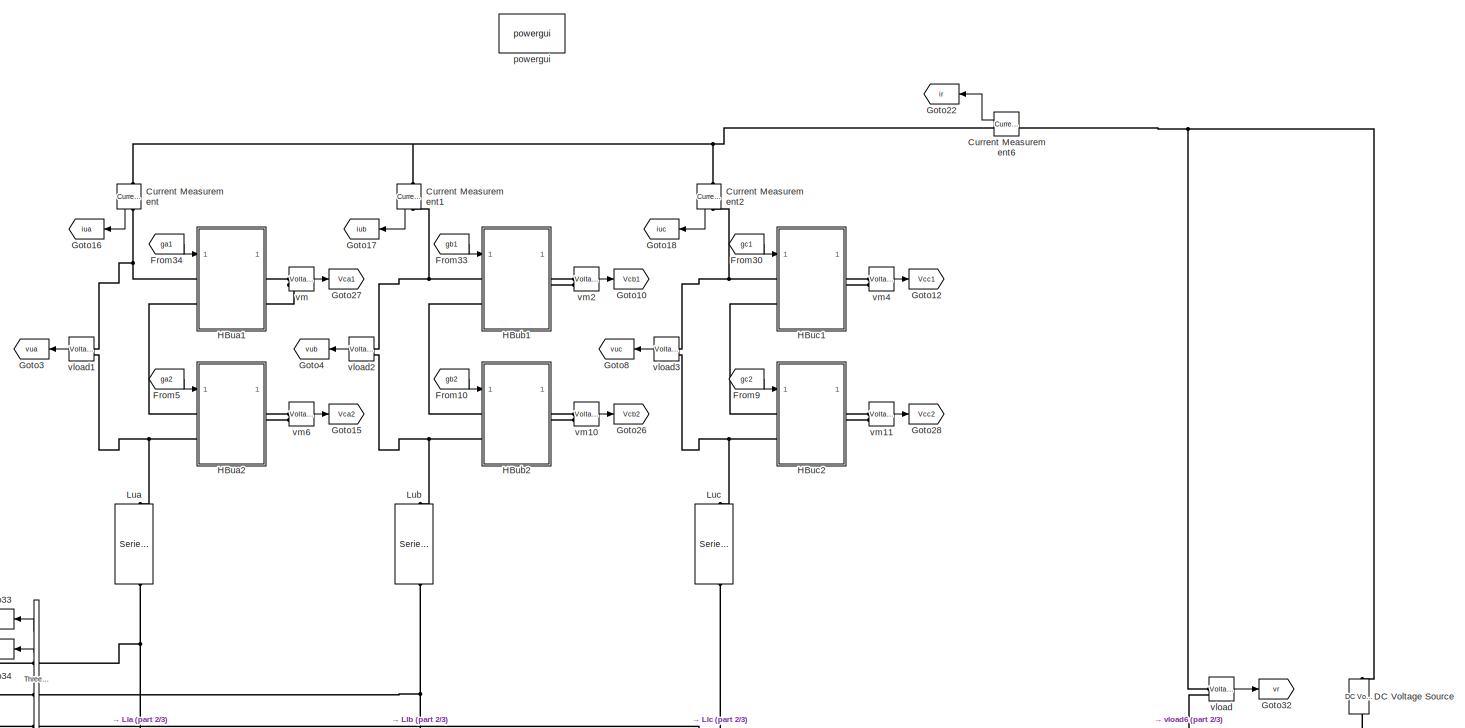
[diagram: Plant_Model/simulation/Subsystem - part 1/3, full width, top band]
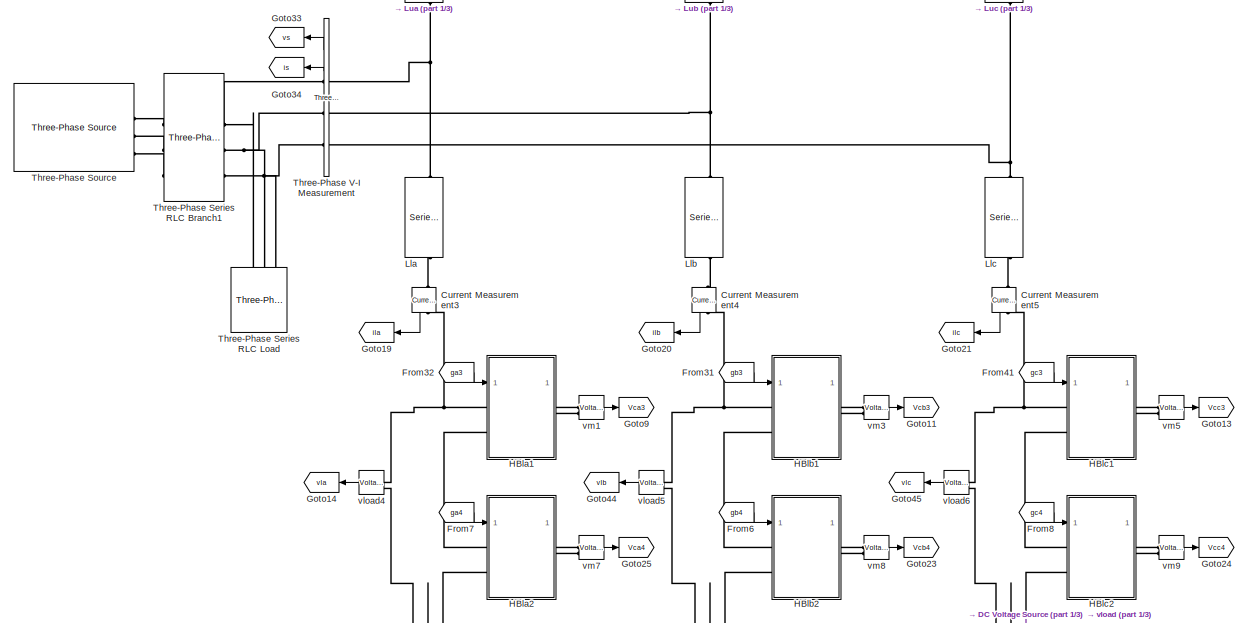
[diagram: Plant_Model/simulation/Subsystem - part 2/3, central region]
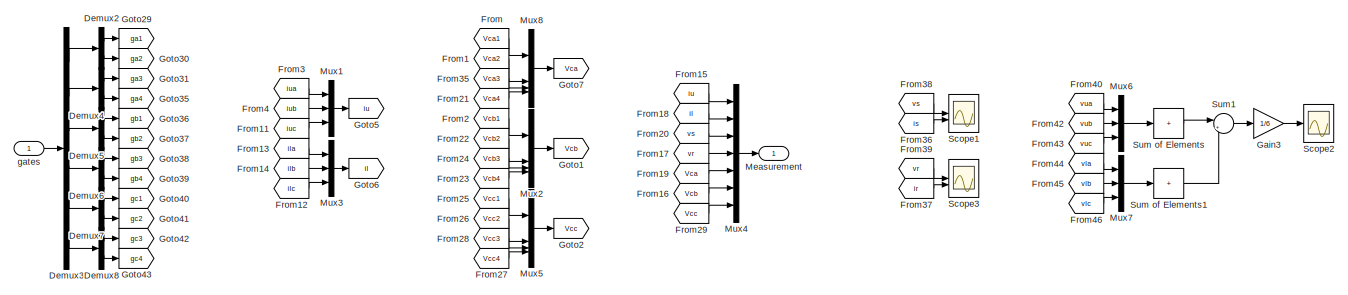
[diagram: Plant_Model/simulation/Subsystem - part 3/3, full width, bottom band]
BLOCK [SubSystem] Plant_Model/simulation/Subsystem
  NameLocation = top
BLOCK [Reference] Plant_Model/simulation/Subsystem/Current Measurement  REF=spsCurrentMeasurementLib/Current Measurement
  NameLocation = left
  SourceBlock = spsCurrentMeasurementLib/Current Measurement
  SourceType = Current Measurement
  UserDataPersistent = on
BLOCK [Reference] Plant_Model/simulation/Subsystem/Current Measurement1  REF=spsCurrentMeasurementLib/Current Measurement
  NameLocation = right
  SourceBlock = spsCurrentMeasurementLib/Current Measurement
  SourceType = Current Measurement
  UserDataPersistent = on
BLOCK [Reference] Plant_Model/simulation/Subsystem/Current Measurement2  REF=spsCurrentMeasurementLib/Current Measurement
  NameLocation = right
  SourceBlock = spsCurrentMeasurementLib/Current Measurement
  SourceType = Current Measurement
  UserDataPersistent = on
BLOCK [Reference] Plant_Model/simulation/Subsystem/Current Measurement3  REF=spsCurrentMeasurementLib/Current Measurement
  NameLocation = right
  SourceBlock = spsCurrentMeasurementLib/Current Measurement
  SourceType = Current Measurement
  UserDataPersistent = on
BLOCK [Reference] Plant_Model/simulation/Subsystem/Current Measurement4  REF=spsCurrentMeasurementLib/Current Measurement
  NameLocation = right
  SourceBlock = spsCurrentMeasurementLib/Current Measurement
  SourceType = Current Measurement
  UserDataPersistent = on
BLOCK [Reference] Plant_Model/simulation/Subsystem/Current Measurement5  REF=spsCurrentMeasurementLib/Current Measurement
  NameLocation = right
  SourceBlock = spsCurrentMeasurementLib/Current Measurement
  SourceType = Current Measurement
  UserDataPersistent = on
BLOCK [Reference] Plant_Model/simulation/Subsystem/Current Measurement6  REF=spsCurrentMeasurementLib/Current Measurement
  SourceBlock = spsCurrentMeasurementLib/Current Measurement
  SourceType = Current Measurement
  UserDataPersistent = on
BLOCK [Reference] Plant_Model/simulation/Subsystem/DC Voltage Source  REF=spsDCVoltageSourceLib/DC Voltage Source
  LibrarySourceBlock = sps_lib/Sources/DC Voltage Source
  NameLocation = right
  SourceBlock = spsDCVoltageSourceLib/DC Voltage Source
  SourceType = DC Voltage Source
BLOCK [Demux] Plant_Model/simulation/Subsystem/Demux2
  Outputs = [4 4]
BLOCK [Demux] Plant_Model/simulation/Subsystem/Demux3
  Outputs = [8 8 8 8 8 8]
BLOCK [Demux] Plant_Model/simulation/Subsystem/Demux4
  Outputs = [4 4]
BLOCK [Demux] Plant_Model/simulation/Subsystem/Demux5
  Outputs = [4 4]
BLOCK [Demux] Plant_Model/simulation/Subsystem/Demux6
  Outputs = [4 4]
BLOCK [Demux] Plant_Model/simulation/Subsystem/Demux7
  Outputs = [4 4]
BLOCK [Demux] Plant_Model/simulation/Subsystem/Demux8
  Outputs = [4 4]
BLOCK [From] Plant_Model/simulation/Subsystem/From
  GotoTag = Vca1
BLOCK [From] Plant_Model/simulation/Subsystem/From1
  GotoTag = Vca2
BLOCK [From] Plant_Model/simulation/Subsystem/From10
  GotoTag = gb2
BLOCK [From] Plant_Model/simulation/Subsystem/From11
  GotoTag = iuc
BLOCK [From] Plant_Model/simulation/Subsystem/From12
  GotoTag = ilc
BLOCK [From] Plant_Model/simulation/Subsystem/From13
  GotoTag = ila
BLOCK [From] Plant_Model/simulation/Subsystem/From14
  GotoTag = ilb
BLOCK [From] Plant_Model/simulation/Subsystem/From15
  GotoTag = iu
BLOCK [From] Plant_Model/simulation/Subsystem/From16
  GotoTag = Vcb
BLOCK [From] Plant_Model/simulation/Subsystem/From17
  GotoTag = vr
BLOCK [From] Plant_Model/simulation/Subsystem/From18
  GotoTag = il
BLOCK [From] Plant_Model/simulation/Subsystem/From19
  GotoTag = Vca
BLOCK [From] Plant_Model/simulation/Subsystem/From2
  GotoTag = Vcb1
BLOCK [From] Plant_Model/simulation/Subsystem/From20
  GotoTag = vs
BLOCK [From] Plant_Model/simulation/Subsystem/From21
  GotoTag = Vca4
BLOCK [From] Plant_Model/simulation/Subsystem/From22
  GotoTag = Vcb2
BLOCK [From] Plant_Model/simulation/Subsystem/From23
  GotoTag = Vcb4
BLOCK [From] Plant_Model/simulation/Subsystem/From24
  GotoTag = Vcb3
BLOCK [From] Plant_Model/simulation/Subsystem/From25
  GotoTag = Vcc1
BLOCK [From] Plant_Model/simulation/Subsystem/From26
  GotoTag = Vcc2
BLOCK [From] Plant_Model/simulation/Subsystem/From27
  GotoTag = Vcc4
BLOCK [From] Plant_Model/simulation/Subsystem/From28
  GotoTag = Vcc3
BLOCK [From] Plant_Model/simulation/Subsystem/From29
  GotoTag = Vcc
BLOCK [From] Plant_Model/simulation/Subsystem/From3
  GotoTag = iua
BLOCK [From] Plant_Model/simulation/Subsystem/From30
  GotoTag = gc1
BLOCK [From] Plant_Model/simulation/Subsystem/From31
  GotoTag = gb3
BLOCK [From] Plant_Model/simulation/Subsystem/From32
  GotoTag = ga3
BLOCK [From] Plant_Model/simulation/Subsystem/From33
  GotoTag = gb1
BLOCK [From] Plant_Model/simulation/Subsystem/From34
  GotoTag = ga1
BLOCK [From] Plant_Model/simulation/Subsystem/From35
  GotoTag = Vca3
BLOCK [From] Plant_Model/simulation/Subsystem/From36
  GotoTag = is
BLOCK [From] Plant_Model/simulation/Subsystem/From37
  GotoTag = ir
BLOCK [From] Plant_Model/simulation/Subsystem/From38
  GotoTag = vs
BLOCK [From] Plant_Model/simulation/Subsystem/From39
  GotoTag = vr
BLOCK [From] Plant_Model/simulation/Subsystem/From4
  GotoTag = iub
BLOCK [From] Plant_Model/simulation/Subsystem/From40
  GotoTag = vua
BLOCK [From] Plant_Model/simulation/Subsystem/From41
  GotoTag = gc3
BLOCK [From] Plant_Model/simulation/Subsystem/From42
  GotoTag = vub
BLOCK [From] Plant_Model/simulation/Subsystem/From43
  GotoTag = vuc
BLOCK [From] Plant_Model/simulation/Subsystem/From44
  GotoTag = vla
BLOCK [From] Plant_Model/simulation/Subsystem/From45
  GotoTag = vlb
BLOCK [From] Plant_Model/simulation/Subsystem/From46
  GotoTag = vlc
BLOCK [From] Plant_Model/simulation/Subsystem/From5
  GotoTag = ga2
BLOCK [From] Plant_Model/simulation/Subsystem/From6
  GotoTag = gb4
BLOCK [From] Plant_Model/simulation/Subsystem/From7
  GotoTag = ga4
BLOCK [From] Plant_Model/simulation/Subsystem/From8
  GotoTag = gc4
BLOCK [From] Plant_Model/simulation/Subsystem/From9
  GotoTag = gc2
BLOCK [Gain] Plant_Model/simulation/Subsystem/Gain3
  Gain = 1/6
  NameLocation = top
BLOCK [Goto] Plant_Model/simulation/Subsystem/Goto1
  GotoTag = Vcb
  NameLocation = top
BLOCK [Goto] Plant_Model/simulation/Subsystem/Goto10
  GotoTag = Vcb1
BLOCK [Goto] Plant_Model/simulation/Subsystem/Goto11
  GotoTag = Vcb3
BLOCK [Goto] Plant_Model/simulation/Subsystem/Goto12
  GotoTag = Vcc1
BLOCK [Goto] Plant_Model/simulation/Subsystem/Goto13
  GotoTag = Vcc3
BLOCK [Goto] Plant_Model/simulation/Subsystem/Goto14
  GotoTag = vla
BLOCK [Goto] Plant_Model/simulation/Subsystem/Goto15
  GotoTag = Vca2
BLOCK [Goto] Plant_Model/simulation/Subsystem/Goto16
  GotoTag = iua
BLOCK [Goto] Plant_Model/simulation/Subsystem/Goto17
  GotoTag = iub
BLOCK [Goto] Plant_Model/simulation/Subsystem/Goto18
  GotoTag = iuc
BLOCK [Goto] Plant_Model/simulation/Subsystem/Goto19
  GotoTag = ila
BLOCK [Goto] Plant_Model/simulation/Subsystem/Goto2
  GotoTag = Vcc
  NameLocation = top
BLOCK [Goto] Plant_Model/simulation/Subsystem/Goto20
  GotoTag = ilb
BLOCK [Goto] Plant_Model/simulation/Subsystem/Goto21
  GotoTag = ilc
BLOCK [Goto] Plant_Model/simulation/Subsystem/Goto22
  GotoTag = ir
  NameLocation = top
BLOCK [Goto] Plant_Model/simulation/Subsystem/Goto23
  GotoTag = Vcb4
BLOCK [Goto] Plant_Model/simulation/Subsystem/Goto24
  GotoTag = Vcc4
BLOCK [Goto] Plant_Model/simulation/Subsystem/Goto25
  GotoTag = Vca4
BLOCK [Goto] Plant_Model/simulation/Subsystem/Goto26
  GotoTag = Vcb2
BLOCK [Goto] Plant_Model/simulation/Subsystem/Goto27
  GotoTag = Vca1
BLOCK [Goto] Plant_Model/simulation/Subsystem/Goto28
  GotoTag = Vcc2
BLOCK [Goto] Plant_Model/simulation/Subsystem/Goto29
  GotoTag = ga1
BLOCK [Goto] Plant_Model/simulation/Subsystem/Goto3
  GotoTag = vua
BLOCK [Goto] Plant_Model/simulation/Subsystem/Goto30
  GotoTag = ga2
BLOCK [Goto] Plant_Model/simulation/Subsystem/Goto31
  GotoTag = ga3
BLOCK [Goto] Plant_Model/simulation/Subsystem/Goto32
  GotoTag = vr
BLOCK [Goto] Plant_Model/simulation/Subsystem/Goto33
  GotoTag = vs
BLOCK [Goto] Plant_Model/simulation/Subsystem/Goto34
  GotoTag = is
BLOCK [Goto] Plant_Model/simulation/Subsystem/Goto35
  GotoTag = ga4
BLOCK [Goto] Plant_Model/simulation/Subsystem/Goto36
  GotoTag = gb1
BLOCK [Goto] Plant_Model/simulation/Subsystem/Goto37
  GotoTag = gb2
BLOCK [Goto] Plant_Model/simulation/Subsystem/Goto38
  GotoTag = gb3
BLOCK [Goto] Plant_Model/simulation/Subsystem/Goto39
  GotoTag = gb4
BLOCK [Goto] Plant_Model/simulation/Subsystem/Goto4
  GotoTag = vub
BLOCK [Goto] Plant_Model/simulation/Subsystem/Goto40
  GotoTag = gc1
BLOCK [Goto] Plant_Model/simulation/Subsystem/Goto41
  GotoTag = gc2
BLOCK [Goto] Plant_Model/simulation/Subsystem/Goto42
  GotoTag = gc3
BLOCK [Goto] Plant_Model/simulation/Subsystem/Goto43
  GotoTag = gc4
BLOCK [Goto] Plant_Model/simulation/Subsystem/Goto44
  GotoTag = vlb
BLOCK [Goto] Plant_Model/simulation/Subsystem/Goto45
  GotoTag = vlc
BLOCK [Goto] Plant_Model/simulation/Subsystem/Goto5
  GotoTag = iu
  NameLocation = top
BLOCK [Goto] Plant_Model/simulation/Subsystem/Goto6
  GotoTag = il
  NameLocation = top
BLOCK [Goto] Plant_Model/simulation/Subsystem/Goto7
  GotoTag = Vca
  NameLocation = top
BLOCK [Goto] Plant_Model/simulation/Subsystem/Goto8
  GotoTag = vuc
BLOCK [Goto] Plant_Model/simulation/Subsystem/Goto9
  GotoTag = Vca3
BLOCK [SubSystem] Plant_Model/simulation/Subsystem/HBla1
BLOCK [Reference] Plant_Model/simulation/Subsystem/HBla1/Ch  REF=spsSeriesRLCBranchLib/Series RLC Branch
  NameLocation = left
  SourceBlock = spsSeriesRLCBranchLib/Series RLC Branch
  SourceType = Series RLC Branch
BLOCK [Reference] Plant_Model/simulation/Subsystem/HBla1/Cm  REF=spsSeriesRLCBranchLib/Series RLC Branch
  NameLocation = left
  SourceBlock = spsSeriesRLCBranchLib/Series RLC Branch
  SourceType = Series RLC Branch
BLOCK [PMIOPort] Plant_Model/simulation/Subsystem/HBla1/DC+
  Port = 3
  Side = Right
BLOCK [PMIOPort] Plant_Model/simulation/Subsystem/HBla1/DC-
  Port = 4
  Side = Right
BLOCK [Demux] Plant_Model/simulation/Subsystem/HBla1/Demux1
BLOCK [Reference] Plant_Model/simulation/Subsystem/HBla1/IGBT//Diode  REF=spsIGBTDiodeLib/IGBT//Diode
  NameLocation = right
  SourceBlock = spsIGBTDiodeLib/IGBT//Diode
  SourceType = IGBT/Diode
BLOCK [Reference] Plant_Model/simulation/Subsystem/HBla1/IGBT//Diode1  REF=spsIGBTDiodeLib/IGBT//Diode
  NameLocation = right
  SourceBlock = spsIGBTDiodeLib/IGBT//Diode
  SourceType = IGBT/Diode
BLOCK [Reference] Plant_Model/simulation/Subsystem/HBla1/IGBT//Diode2  REF=spsIGBTDiodeLib/IGBT//Diode
  NameLocation = right
  SourceBlock = spsIGBTDiodeLib/IGBT//Diode
  SourceType = IGBT/Diode
BLOCK [Reference] Plant_Model/simulation/Subsystem/HBla1/IGBT//Diode3  REF=spsIGBTDiodeLib/IGBT//Diode
  NameLocation = right
  SourceBlock = spsIGBTDiodeLib/IGBT//Diode
  SourceType = IGBT/Diode
BLOCK [Reference] Plant_Model/simulation/Subsystem/HBla1/Rdis  REF=spsSeriesRLCBranchLib/Series RLC Branch
  NameLocation = right
  SourceBlock = spsSeriesRLCBranchLib/Series RLC Branch
  SourceType = Series RLC Branch
BLOCK [PMIOPort] Plant_Model/simulation/Subsystem/HBla1/VA
  Side = Left
BLOCK [PMIOPort] Plant_Model/simulation/Subsystem/HBla1/VB
  Port = 2
  Side = Left
BLOCK [Inport] Plant_Model/simulation/Subsystem/HBla1/gates
BLOCK [SubSystem] Plant_Model/simulation/Subsystem/HBla2
BLOCK [Reference] Plant_Model/simulation/Subsystem/HBla2/Ch  REF=spsSeriesRLCBranchLib/Series RLC Branch
  NameLocation = left
  SourceBlock = spsSeriesRLCBranchLib/Series RLC Branch
  SourceType = Series RLC Branch
BLOCK [Reference] Plant_Model/simulation/Subsystem/HBla2/Cm  REF=spsSeriesRLCBranchLib/Series RLC Branch
  NameLocation = left
  SourceBlock = spsSeriesRLCBranchLib/Series RLC Branch
  SourceType = Series RLC Branch
BLOCK [PMIOPort] Plant_Model/simulation/Subsystem/HBla2/DC+
  Port = 3
  Side = Right
BLOCK [PMIOPort] Plant_Model/simulation/Subsystem/HBla2/DC-
  Port = 4
  Side = Right
BLOCK [Demux] Plant_Model/simulation/Subsystem/HBla2/Demux1
BLOCK [Reference] Plant_Model/simulation/Subsystem/HBla2/IGBT//Diode  REF=spsIGBTDiodeLib/IGBT//Diode
  NameLocation = right
  SourceBlock = spsIGBTDiodeLib/IGBT//Diode
  SourceType = IGBT/Diode
BLOCK [Reference] Plant_Model/simulation/Subsystem/HBla2/IGBT//Diode1  REF=spsIGBTDiodeLib/IGBT//Diode
  NameLocation = right
  SourceBlock = spsIGBTDiodeLib/IGBT//Diode
  SourceType = IGBT/Diode
BLOCK [Reference] Plant_Model/simulation/Subsystem/HBla2/IGBT//Diode2  REF=spsIGBTDiodeLib/IGBT//Diode
  NameLocation = right
  SourceBlock = spsIGBTDiodeLib/IGBT//Diode
  SourceType = IGBT/Diode
BLOCK [Reference] Plant_Model/simulation/Subsystem/HBla2/IGBT//Diode3  REF=spsIGBTDiodeLib/IGBT//Diode
  NameLocation = right
  SourceBlock = spsIGBTDiodeLib/IGBT//Diode
  SourceType = IGBT/Diode
BLOCK [Reference] Plant_Model/simulation/Subsystem/HBla2/Rdis  REF=spsSeriesRLCBranchLib/Series RLC Branch
  NameLocation = right
  SourceBlock = spsSeriesRLCBranchLib/Series RLC Branch
  SourceType = Series RLC Branch
BLOCK [PMIOPort] Plant_Model/simulation/Subsystem/HBla2/VA
  Side = Left
BLOCK [PMIOPort] Plant_Model/simulation/Subsystem/HBla2/VB
  Port = 2
  Side = Left
BLOCK [Inport] Plant_Model/simulation/Subsystem/HBla2/gates
BLOCK [SubSystem] Plant_Model/simulation/Subsystem/HBlb1
BLOCK [Reference] Plant_Model/simulation/Subsystem/HBlb1/Ch  REF=spsSeriesRLCBranchLib/Series RLC Branch
  NameLocation = left
  SourceBlock = spsSeriesRLCBranchLib/Series RLC Branch
  SourceType = Series RLC Branch
BLOCK [Reference] Plant_Model/simulation/Subsystem/HBlb1/Cm  REF=spsSeriesRLCBranchLib/Series RLC Branch
  NameLocation = left
  SourceBlock = spsSeriesRLCBranchLib/Series RLC Branch
  SourceType = Series RLC Branch
BLOCK [PMIOPort] Plant_Model/simulation/Subsystem/HBlb1/DC+
  Port = 3
  Side = Right
BLOCK [PMIOPort] Plant_Model/simulation/Subsystem/HBlb1/DC-
  Port = 4
  Side = Right
BLOCK [Demux] Plant_Model/simulation/Subsystem/HBlb1/Demux1
BLOCK [Reference] Plant_Model/simulation/Subsystem/HBlb1/IGBT//Diode  REF=spsIGBTDiodeLib/IGBT//Diode
  NameLocation = right
  SourceBlock = spsIGBTDiodeLib/IGBT//Diode
  SourceType = IGBT/Diode
BLOCK [Reference] Plant_Model/simulation/Subsystem/HBlb1/IGBT//Diode1  REF=spsIGBTDiodeLib/IGBT//Diode
  NameLocation = right
  SourceBlock = spsIGBTDiodeLib/IGBT//Diode
  SourceType = IGBT/Diode
BLOCK [Reference] Plant_Model/simulation/Subsystem/HBlb1/IGBT//Diode2  REF=spsIGBTDiodeLib/IGBT//Diode
  NameLocation = right
  SourceBlock = spsIGBTDiodeLib/IGBT//Diode
  SourceType = IGBT/Diode
BLOCK [Reference] Plant_Model/simulation/Subsystem/HBlb1/IGBT//Diode3  REF=spsIGBTDiodeLib/IGBT//Diode
  NameLocation = right
  SourceBlock = spsIGBTDiodeLib/IGBT//Diode
  SourceType = IGBT/Diode
BLOCK [Reference] Plant_Model/simulation/Subsystem/HBlb1/Rdis  REF=spsSeriesRLCBranchLib/Series RLC Branch
  NameLocation = right
  SourceBlock = spsSeriesRLCBranchLib/Series RLC Branch
  SourceType = Series RLC Branch
BLOCK [PMIOPort] Plant_Model/simulation/Subsystem/HBlb1/VA
  Side = Left
BLOCK [PMIOPort] Plant_Model/simulation/Subsystem/HBlb1/VB
  Port = 2
  Side = Left
BLOCK [Inport] Plant_Model/simulation/Subsystem/HBlb1/gates
BLOCK [SubSystem] Plant_Model/simulation/Subsystem/HBlb2
BLOCK [Reference] Plant_Model/simulation/Subsystem/HBlb2/Ch  REF=spsSeriesRLCBranchLib/Series RLC Branch
  NameLocation = left
  SourceBlock = spsSeriesRLCBranchLib/Series RLC Branch
  SourceType = Series RLC Branch
BLOCK [Reference] Plant_Model/simulation/Subsystem/HBlb2/Cm  REF=spsSeriesRLCBranchLib/Series RLC Branch
  NameLocation = left
  SourceBlock = spsSeriesRLCBranchLib/Series RLC Branch
  SourceType = Series RLC Branch
BLOCK [PMIOPort] Plant_Model/simulation/Subsystem/HBlb2/DC+
  Port = 3
  Side = Right
BLOCK [PMIOPort] Plant_Model/simulation/Subsystem/HBlb2/DC-
  Port = 4
  Side = Right
BLOCK [Demux] Plant_Model/simulation/Subsystem/HBlb2/Demux1
BLOCK [Reference] Plant_Model/simulation/Subsystem/HBlb2/IGBT//Diode  REF=spsIGBTDiodeLib/IGBT//Diode
  NameLocation = right
  SourceBlock = spsIGBTDiodeLib/IGBT//Diode
  SourceType = IGBT/Diode
BLOCK [Reference] Plant_Model/simulation/Subsystem/HBlb2/IGBT//Diode1  REF=spsIGBTDiodeLib/IGBT//Diode
  NameLocation = right
  SourceBlock = spsIGBTDiodeLib/IGBT//Diode
  SourceType = IGBT/Diode
BLOCK [Reference] Plant_Model/simulation/Subsystem/HBlb2/IGBT//Diode2  REF=spsIGBTDiodeLib/IGBT//Diode
  NameLocation = right
  SourceBlock = spsIGBTDiodeLib/IGBT//Diode
  SourceType = IGBT/Diode
BLOCK [Reference] Plant_Model/simulation/Subsystem/HBlb2/IGBT//Diode3  REF=spsIGBTDiodeLib/IGBT//Diode
  NameLocation = right
  SourceBlock = spsIGBTDiodeLib/IGBT//Diode
  SourceType = IGBT/Diode
BLOCK [Reference] Plant_Model/simulation/Subsystem/HBlb2/Rdis  REF=spsSeriesRLCBranchLib/Series RLC Branch
  NameLocation = right
  SourceBlock = spsSeriesRLCBranchLib/Series RLC Branch
  SourceType = Series RLC Branch
BLOCK [PMIOPort] Plant_Model/simulation/Subsystem/HBlb2/VA
  Side = Left
BLOCK [PMIOPort] Plant_Model/simulation/Subsystem/HBlb2/VB
  Port = 2
  Side = Left
BLOCK [Inport] Plant_Model/simulation/Subsystem/HBlb2/gates
BLOCK [SubSystem] Plant_Model/simulation/Subsystem/HBlc1
BLOCK [Reference] Plant_Model/simulation/Subsystem/HBlc1/Ch  REF=spsSeriesRLCBranchLib/Series RLC Branch
  NameLocation = left
  SourceBlock = spsSeriesRLCBranchLib/Series RLC Branch
  SourceType = Series RLC Branch
BLOCK [Reference] Plant_Model/simulation/Subsystem/HBlc1/Cm  REF=spsSeriesRLCBranchLib/Series RLC Branch
  NameLocation = left
  SourceBlock = spsSeriesRLCBranchLib/Series RLC Branch
  SourceType = Series RLC Branch
BLOCK [PMIOPort] Plant_Model/simulation/Subsystem/HBlc1/DC+
  Port = 3
  Side = Right
BLOCK [PMIOPort] Plant_Model/simulation/Subsystem/HBlc1/DC-
  Port = 4
  Side = Right
BLOCK [Demux] Plant_Model/simulation/Subsystem/HBlc1/Demux1
BLOCK [Reference] Plant_Model/simulation/Subsystem/HBlc1/IGBT//Diode  REF=spsIGBTDiodeLib/IGBT//Diode
  NameLocation = right
  SourceBlock = spsIGBTDiodeLib/IGBT//Diode
  SourceType = IGBT/Diode
BLOCK [Reference] Plant_Model/simulation/Subsystem/HBlc1/IGBT//Diode1  REF=spsIGBTDiodeLib/IGBT//Diode
  NameLocation = right
  SourceBlock = spsIGBTDiodeLib/IGBT//Diode
  SourceType = IGBT/Diode
BLOCK [Reference] Plant_Model/simulation/Subsystem/HBlc1/IGBT//Diode2  REF=spsIGBTDiodeLib/IGBT//Diode
  NameLocation = right
  SourceBlock = spsIGBTDiodeLib/IGBT//Diode
  SourceType = IGBT/Diode
BLOCK [Reference] Plant_Model/simulation/Subsystem/HBlc1/IGBT//Diode3  REF=spsIGBTDiodeLib/IGBT//Diode
  NameLocation = right
  SourceBlock = spsIGBTDiodeLib/IGBT//Diode
  SourceType = IGBT/Diode
BLOCK [Reference] Plant_Model/simulation/Subsystem/HBlc1/Rdis  REF=spsSeriesRLCBranchLib/Series RLC Branch
  NameLocation = right
  SourceBlock = spsSeriesRLCBranchLib/Series RLC Branch
  SourceType = Series RLC Branch
BLOCK [PMIOPort] Plant_Model/simulation/Subsystem/HBlc1/VA
  Side = Left
BLOCK [PMIOPort] Plant_Model/simulation/Subsystem/HBlc1/VB
  Port = 2
  Side = Left
BLOCK [Inport] Plant_Model/simulation/Subsystem/HBlc1/gates
BLOCK [SubSystem] Plant_Model/simulation/Subsystem/HBlc2
BLOCK [Reference] Plant_Model/simulation/Subsystem/HBlc2/Ch  REF=spsSeriesRLCBranchLib/Series RLC Branch
  NameLocation = left
  SourceBlock = spsSeriesRLCBranchLib/Series RLC Branch
  SourceType = Series RLC Branch
BLOCK [Reference] Plant_Model/simulation/Subsystem/HBlc2/Cm  REF=spsSeriesRLCBranchLib/Series RLC Branch
  NameLocation = left
  SourceBlock = spsSeriesRLCBranchLib/Series RLC Branch
  SourceType = Series RLC Branch
BLOCK [PMIOPort] Plant_Model/simulation/Subsystem/HBlc2/DC+
  Port = 3
  Side = Right
BLOCK [PMIOPort] Plant_Model/simulation/Subsystem/HBlc2/DC-
  Port = 4
  Side = Right
BLOCK [Demux] Plant_Model/simulation/Subsystem/HBlc2/Demux1
BLOCK [Reference] Plant_Model/simulation/Subsystem/HBlc2/IGBT//Diode  REF=spsIGBTDiodeLib/IGBT//Diode
  NameLocation = right
  SourceBlock = spsIGBTDiodeLib/IGBT//Diode
  SourceType = IGBT/Diode
BLOCK [Reference] Plant_Model/simulation/Subsystem/HBlc2/IGBT//Diode1  REF=spsIGBTDiodeLib/IGBT//Diode
  NameLocation = right
  SourceBlock = spsIGBTDiodeLib/IGBT//Diode
  SourceType = IGBT/Diode
BLOCK [Reference] Plant_Model/simulation/Subsystem/HBlc2/IGBT//Diode2  REF=spsIGBTDiodeLib/IGBT//Diode
  NameLocation = right
  SourceBlock = spsIGBTDiodeLib/IGBT//Diode
  SourceType = IGBT/Diode
BLOCK [Reference] Plant_Model/simulation/Subsystem/HBlc2/IGBT//Diode3  REF=spsIGBTDiodeLib/IGBT//Diode
  NameLocation = right
  SourceBlock = spsIGBTDiodeLib/IGBT//Diode
  SourceType = IGBT/Diode
BLOCK [Reference] Plant_Model/simulation/Subsystem/HBlc2/Rdis  REF=spsSeriesRLCBranchLib/Series RLC Branch
  NameLocation = right
  SourceBlock = spsSeriesRLCBranchLib/Series RLC Branch
  SourceType = Series RLC Branch
BLOCK [PMIOPort] Plant_Model/simulation/Subsystem/HBlc2/VA
  Side = Left
BLOCK [PMIOPort] Plant_Model/simulation/Subsystem/HBlc2/VB
  Port = 2
  Side = Left
BLOCK [Inport] Plant_Model/simulation/Subsystem/HBlc2/gates
BLOCK [SubSystem] Plant_Model/simulation/Subsystem/HBua1
BLOCK [Reference] Plant_Model/simulation/Subsystem/HBua1/Ch  REF=spsSeriesRLCBranchLib/Series RLC Branch
  NameLocation = left
  SourceBlock = spsSeriesRLCBranchLib/Series RLC Branch
  SourceType = Series RLC Branch
BLOCK [Reference] Plant_Model/simulation/Subsystem/HBua1/Cm  REF=spsSeriesRLCBranchLib/Series RLC Branch
  NameLocation = left
  SourceBlock = spsSeriesRLCBranchLib/Series RLC Branch
  SourceType = Series RLC Branch
BLOCK [PMIOPort] Plant_Model/simulation/Subsystem/HBua1/DC+
  Port = 3
  Side = Right
BLOCK [PMIOPort] Plant_Model/simulation/Subsystem/HBua1/DC-
  Port = 4
  Side = Right
BLOCK [Demux] Plant_Model/simulation/Subsystem/HBua1/Demux1
BLOCK [Reference] Plant_Model/simulation/Subsystem/HBua1/IGBT//Diode  REF=spsIGBTDiodeLib/IGBT//Diode
  NameLocation = right
  SourceBlock = spsIGBTDiodeLib/IGBT//Diode
  SourceType = IGBT/Diode
BLOCK [Reference] Plant_Model/simulation/Subsystem/HBua1/IGBT//Diode1  REF=spsIGBTDiodeLib/IGBT//Diode
  NameLocation = right
  SourceBlock = spsIGBTDiodeLib/IGBT//Diode
  SourceType = IGBT/Diode
BLOCK [Reference] Plant_Model/simulation/Subsystem/HBua1/IGBT//Diode2  REF=spsIGBTDiodeLib/IGBT//Diode
  NameLocation = right
  SourceBlock = spsIGBTDiodeLib/IGBT//Diode
  SourceType = IGBT/Diode
BLOCK [Reference] Plant_Model/simulation/Subsystem/HBua1/IGBT//Diode3  REF=spsIGBTDiodeLib/IGBT//Diode
  NameLocation = right
  SourceBlock = spsIGBTDiodeLib/IGBT//Diode
  SourceType = IGBT/Diode
BLOCK [Reference] Plant_Model/simulation/Subsystem/HBua1/Rdis  REF=spsSeriesRLCBranchLib/Series RLC Branch
  NameLocation = right
  SourceBlock = spsSeriesRLCBranchLib/Series RLC Branch
  SourceType = Series RLC Branch
BLOCK [PMIOPort] Plant_Model/simulation/Subsystem/HBua1/VA
  Side = Left
BLOCK [PMIOPort] Plant_Model/simulation/Subsystem/HBua1/VB
  Port = 2
  Side = Left
BLOCK [Inport] Plant_Model/simulation/Subsystem/HBua1/gates
BLOCK [SubSystem] Plant_Model/simulation/Subsystem/HBua2
BLOCK [Reference] Plant_Model/simulation/Subsystem/HBua2/Ch  REF=spsSeriesRLCBranchLib/Series RLC Branch
  NameLocation = left
  SourceBlock = spsSeriesRLCBranchLib/Series RLC Branch
  SourceType = Series RLC Branch
BLOCK [Reference] Plant_Model/simulation/Subsystem/HBua2/Cm  REF=spsSeriesRLCBranchLib/Series RLC Branch
  NameLocation = left
  SourceBlock = spsSeriesRLCBranchLib/Series RLC Branch
  SourceType = Series RLC Branch
BLOCK [PMIOPort] Plant_Model/simulation/Subsystem/HBua2/DC+
  Port = 3
  Side = Right
BLOCK [PMIOPort] Plant_Model/simulation/Subsystem/HBua2/DC-
  Port = 4
  Side = Right
BLOCK [Demux] Plant_Model/simulation/Subsystem/HBua2/Demux1
BLOCK [Reference] Plant_Model/simulation/Subsystem/HBua2/IGBT//Diode  REF=spsIGBTDiodeLib/IGBT//Diode
  NameLocation = right
  SourceBlock = spsIGBTDiodeLib/IGBT//Diode
  SourceType = IGBT/Diode
BLOCK [Reference] Plant_Model/simulation/Subsystem/HBua2/IGBT//Diode1  REF=spsIGBTDiodeLib/IGBT//Diode
  NameLocation = right
  SourceBlock = spsIGBTDiodeLib/IGBT//Diode
  SourceType = IGBT/Diode
BLOCK [Reference] Plant_Model/simulation/Subsystem/HBua2/IGBT//Diode2  REF=spsIGBTDiodeLib/IGBT//Diode
  NameLocation = right
  SourceBlock = spsIGBTDiodeLib/IGBT//Diode
  SourceType = IGBT/Diode
BLOCK [Reference] Plant_Model/simulation/Subsystem/HBua2/IGBT//Diode3  REF=spsIGBTDiodeLib/IGBT//Diode
  NameLocation = right
  SourceBlock = spsIGBTDiodeLib/IGBT//Diode
  SourceType = IGBT/Diode
BLOCK [Reference] Plant_Model/simulation/Subsystem/HBua2/Rdis  REF=spsSeriesRLCBranchLib/Series RLC Branch
  NameLocation = right
  SourceBlock = spsSeriesRLCBranchLib/Series RLC Branch
  SourceType = Series RLC Branch
BLOCK [PMIOPort] Plant_Model/simulation/Subsystem/HBua2/VA
  Side = Left
BLOCK [PMIOPort] Plant_Model/simulation/Subsystem/HBua2/VB
  Port = 2
  Side = Left
BLOCK [Inport] Plant_Model/simulation/Subsystem/HBua2/gates
BLOCK [SubSystem] Plant_Model/simulation/Subsystem/HBub1
BLOCK [Reference] Plant_Model/simulation/Subsystem/HBub1/Ch  REF=spsSeriesRLCBranchLib/Series RLC Branch
  NameLocation = left
  SourceBlock = spsSeriesRLCBranchLib/Series RLC Branch
  SourceType = Series RLC Branch
BLOCK [Reference] Plant_Model/simulation/Subsystem/HBub1/Cm  REF=spsSeriesRLCBranchLib/Series RLC Branch
  NameLocation = left
  SourceBlock = spsSeriesRLCBranchLib/Series RLC Branch
  SourceType = Series RLC Branch
BLOCK [PMIOPort] Plant_Model/simulation/Subsystem/HBub1/DC+
  Port = 3
  Side = Right
BLOCK [PMIOPort] Plant_Model/simulation/Subsystem/HBub1/DC-
  Port = 4
  Side = Right
BLOCK [Demux] Plant_Model/simulation/Subsystem/HBub1/Demux1
BLOCK [Reference] Plant_Model/simulation/Subsystem/HBub1/IGBT//Diode  REF=spsIGBTDiodeLib/IGBT//Diode
  NameLocation = right
  SourceBlock = spsIGBTDiodeLib/IGBT//Diode
  SourceType = IGBT/Diode
BLOCK [Reference] Plant_Model/simulation/Subsystem/HBub1/IGBT//Diode1  REF=spsIGBTDiodeLib/IGBT//Diode
  NameLocation = right
  SourceBlock = spsIGBTDiodeLib/IGBT//Diode
  SourceType = IGBT/Diode
BLOCK [Reference] Plant_Model/simulation/Subsystem/HBub1/IGBT//Diode2  REF=spsIGBTDiodeLib/IGBT//Diode
  NameLocation = right
  SourceBlock = spsIGBTDiodeLib/IGBT//Diode
  SourceType = IGBT/Diode
BLOCK [Reference] Plant_Model/simulation/Subsystem/HBub1/IGBT//Diode3  REF=spsIGBTDiodeLib/IGBT//Diode
  NameLocation = right
  SourceBlock = spsIGBTDiodeLib/IGBT//Diode
  SourceType = IGBT/Diode
BLOCK [Reference] Plant_Model/simulation/Subsystem/HBub1/Rdis  REF=spsSeriesRLCBranchLib/Series RLC Branch
  NameLocation = right
  SourceBlock = spsSeriesRLCBranchLib/Series RLC Branch
  SourceType = Series RLC Branch
BLOCK [PMIOPort] Plant_Model/simulation/Subsystem/HBub1/VA
  Side = Left
BLOCK [PMIOPort] Plant_Model/simulation/Subsystem/HBub1/VB
  Port = 2
  Side = Left
BLOCK [Inport] Plant_Model/simulation/Subsystem/HBub1/gates
BLOCK [SubSystem] Plant_Model/simulation/Subsystem/HBub2
BLOCK [Reference] Plant_Model/simulation/Subsystem/HBub2/Ch  REF=spsSeriesRLCBranchLib/Series RLC Branch
  NameLocation = left
  SourceBlock = spsSeriesRLCBranchLib/Series RLC Branch
  SourceType = Series RLC Branch
BLOCK [Reference] Plant_Model/simulation/Subsystem/HBub2/Cm  REF=spsSeriesRLCBranchLib/Series RLC Branch
  NameLocation = left
  SourceBlock = spsSeriesRLCBranchLib/Series RLC Branch
  SourceType = Series RLC Branch
BLOCK [PMIOPort] Plant_Model/simulation/Subsystem/HBub2/DC+
  Port = 3
  Side = Right
BLOCK [PMIOPort] Plant_Model/simulation/Subsystem/HBub2/DC-
  Port = 4
  Side = Right
BLOCK [Demux] Plant_Model/simulation/Subsystem/HBub2/Demux1
BLOCK [Reference] Plant_Model/simulation/Subsystem/HBub2/IGBT//Diode  REF=spsIGBTDiodeLib/IGBT//Diode
  NameLocation = right
  SourceBlock = spsIGBTDiodeLib/IGBT//Diode
  SourceType = IGBT/Diode
BLOCK [Reference] Plant_Model/simulation/Subsystem/HBub2/IGBT//Diode1  REF=spsIGBTDiodeLib/IGBT//Diode
  NameLocation = right
  SourceBlock = spsIGBTDiodeLib/IGBT//Diode
  SourceType = IGBT/Diode
BLOCK [Reference] Plant_Model/simulation/Subsystem/HBub2/IGBT//Diode2  REF=spsIGBTDiodeLib/IGBT//Diode
  NameLocation = right
  SourceBlock = spsIGBTDiodeLib/IGBT//Diode
  SourceType = IGBT/Diode
BLOCK [Reference] Plant_Model/simulation/Subsystem/HBub2/IGBT//Diode3  REF=spsIGBTDiodeLib/IGBT//Diode
  NameLocation = right
  SourceBlock = spsIGBTDiodeLib/IGBT//Diode
  SourceType = IGBT/Diode
BLOCK [Reference] Plant_Model/simulation/Subsystem/HBub2/Rdis  REF=spsSeriesRLCBranchLib/Series RLC Branch
  NameLocation = right
  SourceBlock = spsSeriesRLCBranchLib/Series RLC Branch
  SourceType = Series RLC Branch
BLOCK [PMIOPort] Plant_Model/simulation/Subsystem/HBub2/VA
  Side = Left
BLOCK [PMIOPort] Plant_Model/simulation/Subsystem/HBub2/VB
  Port = 2
  Side = Left
BLOCK [Inport] Plant_Model/simulation/Subsystem/HBub2/gates
BLOCK [SubSystem] Plant_Model/simulation/Subsystem/HBuc1
BLOCK [Reference] Plant_Model/simulation/Subsystem/HBuc1/Ch  REF=spsSeriesRLCBranchLib/Series RLC Branch
  NameLocation = left
  SourceBlock = spsSeriesRLCBranchLib/Series RLC Branch
  SourceType = Series RLC Branch
BLOCK [Reference] Plant_Model/simulation/Subsystem/HBuc1/Cm  REF=spsSeriesRLCBranchLib/Series RLC Branch
  NameLocation = left
  SourceBlock = spsSeriesRLCBranchLib/Series RLC Branch
  SourceType = Series RLC Branch
BLOCK [PMIOPort] Plant_Model/simulation/Subsystem/HBuc1/DC+
  Port = 3
  Side = Right
BLOCK [PMIOPort] Plant_Model/simulation/Subsystem/HBuc1/DC-
  Port = 4
  Side = Right
BLOCK [Demux] Plant_Model/simulation/Subsystem/HBuc1/Demux1
BLOCK [Reference] Plant_Model/simulation/Subsystem/HBuc1/IGBT//Diode  REF=spsIGBTDiodeLib/IGBT//Diode
  NameLocation = right
  SourceBlock = spsIGBTDiodeLib/IGBT//Diode
  SourceType = IGBT/Diode
BLOCK [Reference] Plant_Model/simulation/Subsystem/HBuc1/IGBT//Diode1  REF=spsIGBTDiodeLib/IGBT//Diode
  NameLocation = right
  SourceBlock = spsIGBTDiodeLib/IGBT//Diode
  SourceType = IGBT/Diode
BLOCK [Reference] Plant_Model/simulation/Subsystem/HBuc1/IGBT//Diode2  REF=spsIGBTDiodeLib/IGBT//Diode
  NameLocation = right
  SourceBlock = spsIGBTDiodeLib/IGBT//Diode
  SourceType = IGBT/Diode
BLOCK [Reference] Plant_Model/simulation/Subsystem/HBuc1/IGBT//Diode3  REF=spsIGBTDiodeLib/IGBT//Diode
  NameLocation = right
  SourceBlock = spsIGBTDiodeLib/IGBT//Diode
  SourceType = IGBT/Diode
BLOCK [Reference] Plant_Model/simulation/Subsystem/HBuc1/Rdis  REF=spsSeriesRLCBranchLib/Series RLC Branch
  NameLocation = right
  SourceBlock = spsSeriesRLCBranchLib/Series RLC Branch
  SourceType = Series RLC Branch
BLOCK [PMIOPort] Plant_Model/simulation/Subsystem/HBuc1/VA
  Side = Left
BLOCK [PMIOPort] Plant_Model/simulation/Subsystem/HBuc1/VB
  Port = 2
  Side = Left
BLOCK [Inport] Plant_Model/simulation/Subsystem/HBuc1/gates
BLOCK [SubSystem] Plant_Model/simulation/Subsystem/HBuc2
BLOCK [Reference] Plant_Model/simulation/Subsystem/HBuc2/Ch  REF=spsSeriesRLCBranchLib/Series RLC Branch
  NameLocation = left
  SourceBlock = spsSeriesRLCBranchLib/Series RLC Branch
  SourceType = Series RLC Branch
BLOCK [Reference] Plant_Model/simulation/Subsystem/HBuc2/Cm  REF=spsSeriesRLCBranchLib/Series RLC Branch
  NameLocation = left
  SourceBlock = spsSeriesRLCBranchLib/Series RLC Branch
  SourceType = Series RLC Branch
BLOCK [PMIOPort] Plant_Model/simulation/Subsystem/HBuc2/DC+
  Port = 3
  Side = Right
BLOCK [PMIOPort] Plant_Model/simulation/Subsystem/HBuc2/DC-
  Port = 4
  Side = Right
BLOCK [Demux] Plant_Model/simulation/Subsystem/HBuc2/Demux1
BLOCK [Reference] Plant_Model/simulation/Subsystem/HBuc2/IGBT//Diode  REF=spsIGBTDiodeLib/IGBT//Diode
  NameLocation = right
  SourceBlock = spsIGBTDiodeLib/IGBT//Diode
  SourceType = IGBT/Diode
BLOCK [Reference] Plant_Model/simulation/Subsystem/HBuc2/IGBT//Diode1  REF=spsIGBTDiodeLib/IGBT//Diode
  NameLocation = right
  SourceBlock = spsIGBTDiodeLib/IGBT//Diode
  SourceType = IGBT/Diode
BLOCK [Reference] Plant_Model/simulation/Subsystem/HBuc2/IGBT//Diode2  REF=spsIGBTDiodeLib/IGBT//Diode
  NameLocation = right
  SourceBlock = spsIGBTDiodeLib/IGBT//Diode
  SourceType = IGBT/Diode
BLOCK [Reference] Plant_Model/simulation/Subsystem/HBuc2/IGBT//Diode3  REF=spsIGBTDiodeLib/IGBT//Diode
  NameLocation = right
  SourceBlock = spsIGBTDiodeLib/IGBT//Diode
  SourceType = IGBT/Diode
BLOCK [Reference] Plant_Model/simulation/Subsystem/HBuc2/Rdis  REF=spsSeriesRLCBranchLib/Series RLC Branch
  NameLocation = right
  SourceBlock = spsSeriesRLCBranchLib/Series RLC Branch
  SourceType = Series RLC Branch
BLOCK [PMIOPort] Plant_Model/simulation/Subsystem/HBuc2/VA
  Side = Left
BLOCK [PMIOPort] Plant_Model/simulation/Subsystem/HBuc2/VB
  Port = 2
  Side = Left
BLOCK [Inport] Plant_Model/simulation/Subsystem/HBuc2/gates
BLOCK [Reference] Plant_Model/simulation/Subsystem/Lla  REF=spsSeriesRLCBranchLib/Series RLC Branch
  NameLocation = right
  SourceBlock = spsSeriesRLCBranchLib/Series RLC Branch
  SourceType = Series RLC Branch
BLOCK [Reference] Plant_Model/simulation/Subsystem/Llb  REF=spsSeriesRLCBranchLib/Series RLC Branch
  NameLocation = right
  SourceBlock = spsSeriesRLCBranchLib/Series RLC Branch
  SourceType = Series RLC Branch
BLOCK [Reference] Plant_Model/simulation/Subsystem/Llc  REF=spsSeriesRLCBranchLib/Series RLC Branch
  NameLocation = right
  SourceBlock = spsSeriesRLCBranchLib/Series RLC Branch
  SourceType = Series RLC Branch
BLOCK [Reference] Plant_Model/simulation/Subsystem/Lua  REF=spsSeriesRLCBranchLib/Series RLC Branch
  NameLocation = right
  SourceBlock = spsSeriesRLCBranchLib/Series RLC Branch
  SourceType = Series RLC Branch
BLOCK [Reference] Plant_Model/simulation/Subsystem/Lub  REF=spsSeriesRLCBranchLib/Series RLC Branch
  NameLocation = right
  SourceBlock = spsSeriesRLCBranchLib/Series RLC Branch
  SourceType = Series RLC Branch
BLOCK [Reference] Plant_Model/simulation/Subsystem/Luc  REF=spsSeriesRLCBranchLib/Series RLC Branch
  NameLocation = right
  SourceBlock = spsSeriesRLCBranchLib/Series RLC Branch
  SourceType = Series RLC Branch
BLOCK [Outport] Plant_Model/simulation/Subsystem/Measurement
BLOCK [Mux] Plant_Model/simulation/Subsystem/Mux1
  DisplayOption = bar
  Inputs = 3
BLOCK [Mux] Plant_Model/simulation/Subsystem/Mux2
  DisplayOption = bar
BLOCK [Mux] Plant_Model/simulation/Subsystem/Mux3
  DisplayOption = bar
  Inputs = 3
BLOCK [Mux] Plant_Model/simulation/Subsystem/Mux4
  DisplayOption = bar
  Inputs = 7
BLOCK [Mux] Plant_Model/simulation/Subsystem/Mux5
  DisplayOption = bar
BLOCK [Mux] Plant_Model/simulation/Subsystem/Mux6
  DisplayOption = bar
  Inputs = 3
BLOCK [Mux] Plant_Model/simulation/Subsystem/Mux7
  DisplayOption = bar
  Inputs = 3
BLOCK [Mux] Plant_Model/simulation/Subsystem/Mux8
  DisplayOption = bar
BLOCK [Scope] Plant_Model/simulation/Subsystem/Scope1
  Floating = off
  NumInputPorts = 2
  ScopeSpecificationString = Simulink.scopes.TimeScopeBlockCfg('CurrentConfiguration', extmgr.ConfigurationSet(extmgr.Configuration('Core','General UI',true),extmgr.Configuration('Core','Source UI',true),extmgr.Configuration('Sources','WiredSimulink',true,'DataLoggingVariableName','vs_is','DataLoggingSaveFormat','StructureWithTime','DataLogging',true),extmgr.Configuration('Visuals','Time Domain',true,'SerializedDisplays',{str...<+2385ch>
BLOCK [Scope] Plant_Model/simulation/Subsystem/Scope2
  Floating = off
  NumInputPorts = 1
  ScopeSpecificationString = Simulink.scopes.TimeScopeBlockCfg('CurrentConfiguration', extmgr.ConfigurationSet(extmgr.Configuration('Core','General UI',true),extmgr.Configuration('Core','Source UI',true),extmgr.Configuration('Sources','WiredSimulink',true,'DataLoggingVariableName','vn','DataLoggingSaveFormat','StructureWithTime','DataLogging',true),extmgr.Configuration('Visuals','Time Domain',true,'SerializedDisplays',{struct...<+1662ch>
BLOCK [Scope] Plant_Model/simulation/Subsystem/Scope3
  Floating = off
  NumInputPorts = 2
  ScopeSpecificationString = Simulink.scopes.TimeScopeBlockCfg('CurrentConfiguration', extmgr.ConfigurationSet(extmgr.Configuration('Core','General UI',true),extmgr.Configuration('Core','Source UI',true),extmgr.Configuration('Sources','WiredSimulink',true,'DataLoggingVariableName','vr_ir','DataLoggingSaveFormat','StructureWithTime','DataLogging',true),extmgr.Configuration('Visuals','Time Domain',true,'SerializedDisplays',{str...<+2340ch>
BLOCK [Sum] Plant_Model/simulation/Subsystem/Sum of Elements
  IconShape = rectangular
  Inputs = +
  NameLocation = top
BLOCK [Sum] Plant_Model/simulation/Subsystem/Sum of Elements1
  IconShape = rectangular
  Inputs = +
  NameLocation = top
BLOCK [Sum] Plant_Model/simulation/Subsystem/Sum1
  Inputs = |+-
  NameLocation = top
BLOCK [Reference] Plant_Model/simulation/Subsystem/Three-Phase Series RLC Branch1  REF=spsThreePhaseSeriesRLCBranchLib/Three-Phase
Series RLC Branch
  AttributesFormatString = \n
  LibrarySourceBlock = sps_lib/Passives/Three-Phase\nSeries RLC Branch
  NameLocation = top
  SourceBlock = spsThreePhaseSeriesRLCBranchLib/Three-Phase\nSeries RLC Branch
  SourceType = Three-Phase Series RLC Branch
BLOCK [Reference] Plant_Model/simulation/Subsystem/Three-Phase Series RLC Load  REF=spsThreePhaseSeriesRLCLoadLib/Three-Phase
Series RLC Load
  AttributesFormatString = \n
  LibrarySourceBlock = sps_lib/Passives/Three-Phase\nSeries RLC Load
  SourceBlock = spsThreePhaseSeriesRLCLoadLib/Three-Phase\nSeries RLC Load
  SourceType = Three-Phase Series RLC Load
BLOCK [Reference] Plant_Model/simulation/Subsystem/Three-Phase Source  REF=spsThreePhaseSourceLib/Three-Phase Source
  SourceBlock = spsThreePhaseSourceLib/Three-Phase Source
  SourceType = Three-Phase Source
BLOCK [Reference] Plant_Model/simulation/Subsystem/Three-Phase V-I Measurement  REF=spsThreePhaseVIMeasurementLib/Three-Phase
V-I Measurement
  SourceBlock = spsThreePhaseVIMeasurementLib/Three-Phase\nV-I Measurement
  SourceType = Three-Phase VI Measurement
BLOCK [Inport] Plant_Model/simulation/Subsystem/gates
BLOCK [Reference] Plant_Model/simulation/Subsystem/powergui  REF=spspowerguiLib/powergui
  Priority = 1
  SourceBlock = spspowerguiLib/powergui
  SourceType = PSB option menu block
BLOCK [Reference] Plant_Model/simulation/Subsystem/vload  REF=spsVoltageMeasurementLib/Voltage Measurement
  SourceBlock = spsVoltageMeasurementLib/Voltage Measurement
  SourceType = Voltage Measurement
  UserDataPersistent = on
BLOCK [Reference] Plant_Model/simulation/Subsystem/vload1  REF=spsVoltageMeasurementLib/Voltage Measurement
  SourceBlock = spsVoltageMeasurementLib/Voltage Measurement
  SourceType = Voltage Measurement
  UserDataPersistent = on
BLOCK [Reference] Plant_Model/simulation/Subsystem/vload2  REF=spsVoltageMeasurementLib/Voltage Measurement
  SourceBlock = spsVoltageMeasurementLib/Voltage Measurement
  SourceType = Voltage Measurement
  UserDataPersistent = on
BLOCK [Reference] Plant_Model/simulation/Subsystem/vload3  REF=spsVoltageMeasurementLib/Voltage Measurement
  SourceBlock = spsVoltageMeasurementLib/Voltage Measurement
  SourceType = Voltage Measurement
  UserDataPersistent = on
BLOCK [Reference] Plant_Model/simulation/Subsystem/vload4  REF=spsVoltageMeasurementLib/Voltage Measurement
  SourceBlock = spsVoltageMeasurementLib/Voltage Measurement
  SourceType = Voltage Measurement
  UserDataPersistent = on
BLOCK [Reference] Plant_Model/simulation/Subsystem/vload5  REF=spsVoltageMeasurementLib/Voltage Measurement
  SourceBlock = spsVoltageMeasurementLib/Voltage Measurement
  SourceType = Voltage Measurement
  UserDataPersistent = on
BLOCK [Reference] Plant_Model/simulation/Subsystem/vload6  REF=spsVoltageMeasurementLib/Voltage Measurement
  SourceBlock = spsVoltageMeasurementLib/Voltage Measurement
  SourceType = Voltage Measurement
  UserDataPersistent = on
BLOCK [Reference] Plant_Model/simulation/Subsystem/vm  REF=spsVoltageMeasurementLib/Voltage Measurement
  SourceBlock = spsVoltageMeasurementLib/Voltage Measurement
  SourceType = Voltage Measurement
  UserDataPersistent = on
BLOCK [Reference] Plant_Model/simulation/Subsystem/vm1  REF=spsVoltageMeasurementLib/Voltage Measurement
  SourceBlock = spsVoltageMeasurementLib/Voltage Measurement
  SourceType = Voltage Measurement
  UserDataPersistent = on
BLOCK [Reference] Plant_Model/simulation/Subsystem/vm10  REF=spsVoltageMeasurementLib/Voltage Measurement
  SourceBlock = spsVoltageMeasurementLib/Voltage Measurement
  SourceType = Voltage Measurement
  UserDataPersistent = on
BLOCK [Reference] Plant_Model/simulation/Subsystem/vm11  REF=spsVoltageMeasurementLib/Voltage Measurement
  SourceBlock = spsVoltageMeasurementLib/Voltage Measurement
  SourceType = Voltage Measurement
  UserDataPersistent = on
BLOCK [Reference] Plant_Model/simulation/Subsystem/vm2  REF=spsVoltageMeasurementLib/Voltage Measurement
  SourceBlock = spsVoltageMeasurementLib/Voltage Measurement
  SourceType = Voltage Measurement
  UserDataPersistent = on
BLOCK [Reference] Plant_Model/simulation/Subsystem/vm3  REF=spsVoltageMeasurementLib/Voltage Measurement
  SourceBlock = spsVoltageMeasurementLib/Voltage Measurement
  SourceType = Voltage Measurement
  UserDataPersistent = on
BLOCK [Reference] Plant_Model/simulation/Subsystem/vm4  REF=spsVoltageMeasurementLib/Voltage Measurement
  SourceBlock = spsVoltageMeasurementLib/Voltage Measurement
  SourceType = Voltage Measurement
  UserDataPersistent = on
BLOCK [Reference] Plant_Model/simulation/Subsystem/vm5  REF=spsVoltageMeasurementLib/Voltage Measurement
  SourceBlock = spsVoltageMeasurementLib/Voltage Measurement
  SourceType = Voltage Measurement
  UserDataPersistent = on
BLOCK [Reference] Plant_Model/simulation/Subsystem/vm6  REF=spsVoltageMeasurementLib/Voltage Measurement
  SourceBlock = spsVoltageMeasurementLib/Voltage Measurement
  SourceType = Voltage Measurement
  UserDataPersistent = on
BLOCK [Reference] Plant_Model/simulation/Subsystem/vm7  REF=spsVoltageMeasurementLib/Voltage Measurement
  SourceBlock = spsVoltageMeasurementLib/Voltage Measurement
  SourceType = Voltage Measurement
  UserDataPersistent = on
BLOCK [Reference] Plant_Model/simulation/Subsystem/vm8  REF=spsVoltageMeasurementLib/Voltage Measurement
  SourceBlock = spsVoltageMeasurementLib/Voltage Measurement
  SourceType = Voltage Measurement
  UserDataPersistent = on
BLOCK [Reference] Plant_Model/simulation/Subsystem/vm9  REF=spsVoltageMeasurementLib/Voltage Measurement
  SourceBlock = spsVoltageMeasurementLib/Voltage Measurement
  SourceType = Voltage Measurement
  UserDataPersistent = on
ANNOTATION (root): Contains the control implementation that can be simulated or executed on an imperix target (here, B-Box RCP)
ANNOTATION (root): Contains the simulation model of the controlled system.
ANNOTATION Closed_loop_control/Control: Controllers
ANNOTATION Closed_loop_control/Control: Power Calculation and Circulating Current Calculation
ANNOTATION Closed_loop_control/Control: Reference signal generation, gate signal generation
ANNOTATION Closed_loop_control/Control/Modulation A: Module based on model PN172_MMC_SSPWM_openloop
ANNOTATION Closed_loop_control/Control/Modulation B: Module based on model PN172_MMC_SSPWM_openloop
ANNOTATION Closed_loop_control/Mux2Bus: This subsystem serves to transform the "unnamed" muxed data to a Simulink virtual bus, which is more convenient to handle aggregated data.
ANNOTATION Plant_Model: The system model is disabled in the code generation mode because it should not generate any code to be downloaded in the controller.
LINE Closed_loop_control/ADC/ADC10:1 -> Closed_loop_control/ADC/Offset:2
NET Closed_loop_control/ADC/ADC11:1 -> Closed_loop_control/ADC/Bus Creator4:3, Closed_loop_control/ADC/Probe9:1
NET Closed_loop_control/ADC/ADC12:1 -> Closed_loop_control/ADC/Bus Creator4:5, Closed_loop_control/ADC/Probe10:1
NET Closed_loop_control/ADC/ADC13:1 -> Closed_loop_control/ADC/Bus Creator5:4, Closed_loop_control/ADC/Probe13:1
NET Closed_loop_control/ADC/ADC14:1 -> Closed_loop_control/ADC/Bus Creator5:6, Closed_loop_control/ADC/Probe11:1
NET Closed_loop_control/ADC/ADC15:1 -> Closed_loop_control/ADC/Bus Creator5:2, Closed_loop_control/ADC/Probe12:1
NET Closed_loop_control/ADC/ADC16:1 -> Closed_loop_control/ADC/Bus Creator4:4, Closed_loop_control/ADC/Probe18:1
NET Closed_loop_control/ADC/ADC17:1 -> Closed_loop_control/ADC/Bus Creator4:6, Closed_loop_control/ADC/Probe14:1
LINE Closed_loop_control/ADC/ADC18:1 -> Closed_loop_control/ADC/Offset9:2
NET Closed_loop_control/ADC/ADC19:1 -> Closed_loop_control/ADC/Bus Creator4:2, Closed_loop_control/ADC/Probe17:1
LINE Closed_loop_control/ADC/ADC1:1 -> Closed_loop_control/ADC/Offset1:2
NET Closed_loop_control/ADC/ADC20:1 -> Closed_loop_control/ADC/Bus Creator5:3, Closed_loop_control/ADC/Probe21:1
NET Closed_loop_control/ADC/ADC21:1 -> Closed_loop_control/ADC/Bus Creator5:5, Closed_loop_control/ADC/Probe19:1
NET Closed_loop_control/ADC/ADC22:1 -> Closed_loop_control/ADC/Bus Creator5:1, Closed_loop_control/ADC/Probe20:1
LINE Closed_loop_control/ADC/ADC2:1 -> Closed_loop_control/ADC/Offset3:2
LINE Closed_loop_control/ADC/ADC3:1 -> Closed_loop_control/ADC/Offset4:2
LINE Closed_loop_control/ADC/ADC4:1 -> Closed_loop_control/ADC/Offset6:2
LINE Closed_loop_control/ADC/ADC5:1 -> Closed_loop_control/ADC/Offset7:2
LINE Closed_loop_control/ADC/ADC6:1 -> Closed_loop_control/ADC/Offset2:2
LINE Closed_loop_control/ADC/ADC7:1 -> Closed_loop_control/ADC/Offset5:2
LINE Closed_loop_control/ADC/ADC8:1 -> Closed_loop_control/ADC/Offset8:2
NET Closed_loop_control/ADC/ADC9:1 -> Closed_loop_control/ADC/Bus Creator4:1, Closed_loop_control/ADC/Probe8:1
LINE Closed_loop_control/ADC/Bus Creator13:1 -> Closed_loop_control/ADC/acqdata:1
LINE Closed_loop_control/ADC/Bus Creator1:1 -> Closed_loop_control/ADC/Bus Creator13:1
LINE Closed_loop_control/ADC/Bus Creator2:1 -> Closed_loop_control/ADC/Bus Creator13:2
LINE Closed_loop_control/ADC/Bus Creator3:1 -> Closed_loop_control/ADC/Bus Creator13:3
LINE Closed_loop_control/ADC/Bus Creator4:1 -> Closed_loop_control/ADC/Bus Creator13:4
LINE Closed_loop_control/ADC/Bus Creator5:1 -> Closed_loop_control/ADC/Bus Creator13:5
LINE Closed_loop_control/ADC/Bus Creator6:1 -> Closed_loop_control/ADC/Bus Creator13:7
LINE Closed_loop_control/ADC/Bus Selector10:1 -> Closed_loop_control/ADC/ADC11:1
LINE Closed_loop_control/ADC/Bus Selector11:1 -> Closed_loop_control/ADC/ADC12:1
LINE Closed_loop_control/ADC/Bus Selector12:1 -> Closed_loop_control/ADC/ADC13:1
LINE Closed_loop_control/ADC/Bus Selector13:1 -> Closed_loop_control/ADC/ADC14:1
LINE Closed_loop_control/ADC/Bus Selector14:1 -> Closed_loop_control/ADC/ADC15:1
LINE Closed_loop_control/ADC/Bus Selector15:1 -> Closed_loop_control/ADC/ADC16:1
LINE Closed_loop_control/ADC/Bus Selector16:1 -> Closed_loop_control/ADC/ADC17:1
LINE Closed_loop_control/ADC/Bus Selector17:1 -> Closed_loop_control/ADC/ADC18:1
LINE Closed_loop_control/ADC/Bus Selector18:1 -> Closed_loop_control/ADC/ADC19:1
LINE Closed_loop_control/ADC/Bus Selector19:1 -> Closed_loop_control/ADC/ADC20:1
LINE Closed_loop_control/ADC/Bus Selector1:1 -> Closed_loop_control/ADC/ADC2:1
LINE Closed_loop_control/ADC/Bus Selector20:1 -> Closed_loop_control/ADC/ADC21:1
LINE Closed_loop_control/ADC/Bus Selector21:1 -> Closed_loop_control/ADC/ADC22:1
LINE Closed_loop_control/ADC/Bus Selector2:1 -> Closed_loop_control/ADC/ADC1:1
LINE Closed_loop_control/ADC/Bus Selector3:1 -> Closed_loop_control/ADC/ADC3:1
LINE Closed_loop_control/ADC/Bus Selector4:1 -> Closed_loop_control/ADC/ADC4:1
LINE Closed_loop_control/ADC/Bus Selector5:1 -> Closed_loop_control/ADC/ADC5:1
LINE Closed_loop_control/ADC/Bus Selector6:1 -> Closed_loop_control/ADC/ADC6:1
LINE Closed_loop_control/ADC/Bus Selector7:1 -> Closed_loop_control/ADC/ADC7:1
LINE Closed_loop_control/ADC/Bus Selector8:1 -> Closed_loop_control/ADC/ADC8:1
LINE Closed_loop_control/ADC/Bus Selector9:1 -> Closed_loop_control/ADC/ADC9:1
LINE Closed_loop_control/ADC/Bus Selector:1 -> Closed_loop_control/ADC/ADC10:1
LINE Closed_loop_control/ADC/Demux1:1 -> Closed_loop_control/ADC/Terminator1:1
NET Closed_loop_control/ADC/Demux1:2 -> Closed_loop_control/ADC/Bus Creator6:2, Closed_loop_control/ADC/Probe23:1
LINE Closed_loop_control/ADC/Demux2:1 -> Closed_loop_control/ADC/Terminator2:1
NET Closed_loop_control/ADC/Demux2:2 -> Closed_loop_control/ADC/Bus Creator6:3, Closed_loop_control/ADC/Probe24:1
LINE Closed_loop_control/ADC/Demux:1 -> Closed_loop_control/ADC/Terminator:1
NET Closed_loop_control/ADC/Demux:2 -> Closed_loop_control/ADC/Bus Creator6:1, Closed_loop_control/ADC/Probe22:1
LINE Closed_loop_control/ADC/Gain1:1 -> Closed_loop_control/ADC/Demux1:1
LINE Closed_loop_control/ADC/Gain2:1 -> Closed_loop_control/ADC/Demux2:1
LINE Closed_loop_control/ADC/Gain3:1 -> Closed_loop_control/ADC/Demux:1
LINE Closed_loop_control/ADC/Mux1:1 -> Closed_loop_control/ADC/Gain1:1
LINE Closed_loop_control/ADC/Mux2:1 -> Closed_loop_control/ADC/Gain2:1
LINE Closed_loop_control/ADC/Mux4:1 -> Closed_loop_control/ADC/Gain3:1
NET Closed_loop_control/ADC/Offset/Constant:1 -> Closed_loop_control/ADC/Offset/Experiment:enable, Closed_loop_control/ADC/Offset/NOT:1, Closed_loop_control/ADC/Offset/Switch:2
LINE Closed_loop_control/ADC/Offset/Experiment/Add:1 -> Closed_loop_control/ADC/Offset/Experiment/Out:1
LINE Closed_loop_control/ADC/Offset/Experiment/First-Order Filter:1 -> Closed_loop_control/ADC/Offset/Experiment/Switch:3
NET Closed_loop_control/ADC/Offset/Experiment/In:1 -> Closed_loop_control/ADC/Offset/Experiment/Add:2, Closed_loop_control/ADC/Offset/Experiment/First-Order Filter:1
LINE Closed_loop_control/ADC/Offset/Experiment/LK:1 -> Closed_loop_control/ADC/Offset/Experiment/Switch:2
LINE Closed_loop_control/ADC/Offset/Experiment/Memory:1 -> Closed_loop_control/ADC/Offset/Experiment/Switch:1
NET Closed_loop_control/ADC/Offset/Experiment/Switch:1 -> Closed_loop_control/ADC/Offset/Experiment/Add:1, Closed_loop_control/ADC/Offset/Experiment/Memory:1
LINE Closed_loop_control/ADC/Offset/Experiment:1 -> Closed_loop_control/ADC/Offset/Switch:1
NET Closed_loop_control/ADC/Offset/In:1 -> Closed_loop_control/ADC/Offset/Experiment:2, Closed_loop_control/ADC/Offset/Simulation:1
LINE Closed_loop_control/ADC/Offset/LK:1 -> Closed_loop_control/ADC/Offset/Experiment:1
LINE Closed_loop_control/ADC/Offset/NOT:1 -> Closed_loop_control/ADC/Offset/Simulation:enable
LINE Closed_loop_control/ADC/Offset/Simulation/In:1 -> Closed_loop_control/ADC/Offset/Simulation/Out:1
LINE Closed_loop_control/ADC/Offset/Simulation:1 -> Closed_loop_control/ADC/Offset/Switch:3
LINE Closed_loop_control/ADC/Offset/Switch:1 -> Closed_loop_control/ADC/Offset/Out:1
NET Closed_loop_control/ADC/Offset1/Constant:1 -> Closed_loop_control/ADC/Offset1/Experiment:enable, Closed_loop_control/ADC/Offset1/NOT:1, Closed_loop_control/ADC/Offset1/Switch:2
LINE Closed_loop_control/ADC/Offset1/Experiment/Add:1 -> Closed_loop_control/ADC/Offset1/Experiment/Out:1
LINE Closed_loop_control/ADC/Offset1/Experiment/First-Order Filter:1 -> Closed_loop_control/ADC/Offset1/Experiment/Switch:3
NET Closed_loop_control/ADC/Offset1/Experiment/In:1 -> Closed_loop_control/ADC/Offset1/Experiment/Add:2, Closed_loop_control/ADC/Offset1/Experiment/First-Order Filter:1
LINE Closed_loop_control/ADC/Offset1/Experiment/LK:1 -> Closed_loop_control/ADC/Offset1/Experiment/Switch:2
LINE Closed_loop_control/ADC/Offset1/Experiment/Memory:1 -> Closed_loop_control/ADC/Offset1/Experiment/Switch:1
NET Closed_loop_control/ADC/Offset1/Experiment/Switch:1 -> Closed_loop_control/ADC/Offset1/Experiment/Add:1, Closed_loop_control/ADC/Offset1/Experiment/Memory:1
LINE Closed_loop_control/ADC/Offset1/Experiment:1 -> Closed_loop_control/ADC/Offset1/Switch:1
NET Closed_loop_control/ADC/Offset1/In:1 -> Closed_loop_control/ADC/Offset1/Experiment:2, Closed_loop_control/ADC/Offset1/Simulation:1
LINE Closed_loop_control/ADC/Offset1/LK:1 -> Closed_loop_control/ADC/Offset1/Experiment:1
LINE Closed_loop_control/ADC/Offset1/NOT:1 -> Closed_loop_control/ADC/Offset1/Simulation:enable
LINE Closed_loop_control/ADC/Offset1/Simulation/In:1 -> Closed_loop_control/ADC/Offset1/Simulation/Out:1
LINE Closed_loop_control/ADC/Offset1/Simulation:1 -> Closed_loop_control/ADC/Offset1/Switch:3
LINE Closed_loop_control/ADC/Offset1/Switch:1 -> Closed_loop_control/ADC/Offset1/Out:1
NET Closed_loop_control/ADC/Offset1:1 -> Closed_loop_control/ADC/Bus Creator1:2, Closed_loop_control/ADC/Mux1:1, Closed_loop_control/ADC/Probe46:1
NET Closed_loop_control/ADC/Offset2/Constant:1 -> Closed_loop_control/ADC/Offset2/Experiment:enable, Closed_loop_control/ADC/Offset2/NOT:1, Closed_loop_control/ADC/Offset2/Switch:2
LINE Closed_loop_control/ADC/Offset2/Experiment/Add:1 -> Closed_loop_control/ADC/Offset2/Experiment/Out:1
LINE Closed_loop_control/ADC/Offset2/Experiment/First-Order Filter:1 -> Closed_loop_control/ADC/Offset2/Experiment/Switch:3
NET Closed_loop_control/ADC/Offset2/Experiment/In:1 -> Closed_loop_control/ADC/Offset2/Experiment/Add:2, Closed_loop_control/ADC/Offset2/Experiment/First-Order Filter:1
LINE Closed_loop_control/ADC/Offset2/Experiment/LK:1 -> Closed_loop_control/ADC/Offset2/Experiment/Switch:2
LINE Closed_loop_control/ADC/Offset2/Experiment/Memory:1 -> Closed_loop_control/ADC/Offset2/Experiment/Switch:1
NET Closed_loop_control/ADC/Offset2/Experiment/Switch:1 -> Closed_loop_control/ADC/Offset2/Experiment/Add:1, Closed_loop_control/ADC/Offset2/Experiment/Memory:1
LINE Closed_loop_control/ADC/Offset2/Experiment:1 -> Closed_loop_control/ADC/Offset2/Switch:1
NET Closed_loop_control/ADC/Offset2/In:1 -> Closed_loop_control/ADC/Offset2/Experiment:2, Closed_loop_control/ADC/Offset2/Simulation:1
LINE Closed_loop_control/ADC/Offset2/LK:1 -> Closed_loop_control/ADC/Offset2/Experiment:1
LINE Closed_loop_control/ADC/Offset2/NOT:1 -> Closed_loop_control/ADC/Offset2/Simulation:enable
LINE Closed_loop_control/ADC/Offset2/Simulation/In:1 -> Closed_loop_control/ADC/Offset2/Simulation/Out:1
LINE Closed_loop_control/ADC/Offset2/Simulation:1 -> Closed_loop_control/ADC/Offset2/Switch:3
LINE Closed_loop_control/ADC/Offset2/Switch:1 -> Closed_loop_control/ADC/Offset2/Out:1
NET Closed_loop_control/ADC/Offset2:1 -> Closed_loop_control/ADC/Bus Creator1:3, Closed_loop_control/ADC/Mux2:1, Closed_loop_control/ADC/Probe5:1
NET Closed_loop_control/ADC/Offset3/Constant:1 -> Closed_loop_control/ADC/Offset3/Experiment:enable, Closed_loop_control/ADC/Offset3/NOT:1, Closed_loop_control/ADC/Offset3/Switch:2
LINE Closed_loop_control/ADC/Offset3/Experiment/Add:1 -> Closed_loop_control/ADC/Offset3/Experiment/Out:1
LINE Closed_loop_control/ADC/Offset3/Experiment/First-Order Filter:1 -> Closed_loop_control/ADC/Offset3/Experiment/Switch:3
NET Closed_loop_control/ADC/Offset3/Experiment/In:1 -> Closed_loop_control/ADC/Offset3/Experiment/Add:2, Closed_loop_control/ADC/Offset3/Experiment/First-Order Filter:1
LINE Closed_loop_control/ADC/Offset3/Experiment/LK:1 -> Closed_loop_control/ADC/Offset3/Experiment/Switch:2
LINE Closed_loop_control/ADC/Offset3/Experiment/Memory:1 -> Closed_loop_control/ADC/Offset3/Experiment/Switch:1
NET Closed_loop_control/ADC/Offset3/Experiment/Switch:1 -> Closed_loop_control/ADC/Offset3/Experiment/Add:1, Closed_loop_control/ADC/Offset3/Experiment/Memory:1
LINE Closed_loop_control/ADC/Offset3/Experiment:1 -> Closed_loop_control/ADC/Offset3/Switch:1
NET Closed_loop_control/ADC/Offset3/In:1 -> Closed_loop_control/ADC/Offset3/Experiment:2, Closed_loop_control/ADC/Offset3/Simulation:1
LINE Closed_loop_control/ADC/Offset3/LK:1 -> Closed_loop_control/ADC/Offset3/Experiment:1
LINE Closed_loop_control/ADC/Offset3/NOT:1 -> Closed_loop_control/ADC/Offset3/Simulation:enable
LINE Closed_loop_control/ADC/Offset3/Simulation/In:1 -> Closed_loop_control/ADC/Offset3/Simulation/Out:1
LINE Closed_loop_control/ADC/Offset3/Simulation:1 -> Closed_loop_control/ADC/Offset3/Switch:3
LINE Closed_loop_control/ADC/Offset3/Switch:1 -> Closed_loop_control/ADC/Offset3/Out:1
NET Closed_loop_control/ADC/Offset3:1 -> Closed_loop_control/ADC/Bus Creator2:1, Closed_loop_control/ADC/Mux4:2, Closed_loop_control/ADC/Probe1:1
NET Closed_loop_control/ADC/Offset4/Constant:1 -> Closed_loop_control/ADC/Offset4/Experiment:enable, Closed_loop_control/ADC/Offset4/NOT:1, Closed_loop_control/ADC/Offset4/Switch:2
LINE Closed_loop_control/ADC/Offset4/Experiment/Add:1 -> Closed_loop_control/ADC/Offset4/Experiment/Out:1
LINE Closed_loop_control/ADC/Offset4/Experiment/First-Order Filter:1 -> Closed_loop_control/ADC/Offset4/Experiment/Switch:3
NET Closed_loop_control/ADC/Offset4/Experiment/In:1 -> Closed_loop_control/ADC/Offset4/Experiment/Add:2, Closed_loop_control/ADC/Offset4/Experiment/First-Order Filter:1
LINE Closed_loop_control/ADC/Offset4/Experiment/LK:1 -> Closed_loop_control/ADC/Offset4/Experiment/Switch:2
LINE Closed_loop_control/ADC/Offset4/Experiment/Memory:1 -> Closed_loop_control/ADC/Offset4/Experiment/Switch:1
NET Closed_loop_control/ADC/Offset4/Experiment/Switch:1 -> Closed_loop_control/ADC/Offset4/Experiment/Add:1, Closed_loop_control/ADC/Offset4/Experiment/Memory:1
LINE Closed_loop_control/ADC/Offset4/Experiment:1 -> Closed_loop_control/ADC/Offset4/Switch:1
NET Closed_loop_control/ADC/Offset4/In:1 -> Closed_loop_control/ADC/Offset4/Experiment:2, Closed_loop_control/ADC/Offset4/Simulation:1
LINE Closed_loop_control/ADC/Offset4/LK:1 -> Closed_loop_control/ADC/Offset4/Experiment:1
LINE Closed_loop_control/ADC/Offset4/NOT:1 -> Closed_loop_control/ADC/Offset4/Simulation:enable
LINE Closed_loop_control/ADC/Offset4/Simulation/In:1 -> Closed_loop_control/ADC/Offset4/Simulation/Out:1
LINE Closed_loop_control/ADC/Offset4/Simulation:1 -> Closed_loop_control/ADC/Offset4/Switch:3
LINE Closed_loop_control/ADC/Offset4/Switch:1 -> Closed_loop_control/ADC/Offset4/Out:1
NET Closed_loop_control/ADC/Offset4:1 -> Closed_loop_control/ADC/Bus Creator2:2, Closed_loop_control/ADC/Mux1:2, Closed_loop_control/ADC/Probe2:1
NET Closed_loop_control/ADC/Offset5/Constant:1 -> Closed_loop_control/ADC/Offset5/Experiment:enable, Closed_loop_control/ADC/Offset5/NOT:1, Closed_loop_control/ADC/Offset5/Switch:2
LINE Closed_loop_control/ADC/Offset5/Experiment/Add:1 -> Closed_loop_control/ADC/Offset5/Experiment/Out:1
LINE Closed_loop_control/ADC/Offset5/Experiment/First-Order Filter:1 -> Closed_loop_control/ADC/Offset5/Experiment/Switch:3
NET Closed_loop_control/ADC/Offset5/Experiment/In:1 -> Closed_loop_control/ADC/Offset5/Experiment/Add:2, Closed_loop_control/ADC/Offset5/Experiment/First-Order Filter:1
LINE Closed_loop_control/ADC/Offset5/Experiment/LK:1 -> Closed_loop_control/ADC/Offset5/Experiment/Switch:2
LINE Closed_loop_control/ADC/Offset5/Experiment/Memory:1 -> Closed_loop_control/ADC/Offset5/Experiment/Switch:1
NET Closed_loop_control/ADC/Offset5/Experiment/Switch:1 -> Closed_loop_control/ADC/Offset5/Experiment/Add:1, Closed_loop_control/ADC/Offset5/Experiment/Memory:1
LINE Closed_loop_control/ADC/Offset5/Experiment:1 -> Closed_loop_control/ADC/Offset5/Switch:1
NET Closed_loop_control/ADC/Offset5/In:1 -> Closed_loop_control/ADC/Offset5/Experiment:2, Closed_loop_control/ADC/Offset5/Simulation:1
LINE Closed_loop_control/ADC/Offset5/LK:1 -> Closed_loop_control/ADC/Offset5/Experiment:1
LINE Closed_loop_control/ADC/Offset5/NOT:1 -> Closed_loop_control/ADC/Offset5/Simulation:enable
LINE Closed_loop_control/ADC/Offset5/Simulation/In:1 -> Closed_loop_control/ADC/Offset5/Simulation/Out:1
LINE Closed_loop_control/ADC/Offset5/Simulation:1 -> Closed_loop_control/ADC/Offset5/Switch:3
LINE Closed_loop_control/ADC/Offset5/Switch:1 -> Closed_loop_control/ADC/Offset5/Out:1
NET Closed_loop_control/ADC/Offset5:1 -> Closed_loop_control/ADC/Bus Creator2:3, Closed_loop_control/ADC/Mux2:2, Closed_loop_control/ADC/Probe6:1
NET Closed_loop_control/ADC/Offset6/Constant:1 -> Closed_loop_control/ADC/Offset6/Experiment:enable, Closed_loop_control/ADC/Offset6/NOT:1, Closed_loop_control/ADC/Offset6/Switch:2
LINE Closed_loop_control/ADC/Offset6/Experiment/Add:1 -> Closed_loop_control/ADC/Offset6/Experiment/Out:1
LINE Closed_loop_control/ADC/Offset6/Experiment/First-Order Filter:1 -> Closed_loop_control/ADC/Offset6/Experiment/Switch:3
NET Closed_loop_control/ADC/Offset6/Experiment/In:1 -> Closed_loop_control/ADC/Offset6/Experiment/Add:2, Closed_loop_control/ADC/Offset6/Experiment/First-Order Filter:1
LINE Closed_loop_control/ADC/Offset6/Experiment/LK:1 -> Closed_loop_control/ADC/Offset6/Experiment/Switch:2
LINE Closed_loop_control/ADC/Offset6/Experiment/Memory:1 -> Closed_loop_control/ADC/Offset6/Experiment/Switch:1
NET Closed_loop_control/ADC/Offset6/Experiment/Switch:1 -> Closed_loop_control/ADC/Offset6/Experiment/Add:1, Closed_loop_control/ADC/Offset6/Experiment/Memory:1
LINE Closed_loop_control/ADC/Offset6/Experiment:1 -> Closed_loop_control/ADC/Offset6/Switch:1
NET Closed_loop_control/ADC/Offset6/In:1 -> Closed_loop_control/ADC/Offset6/Experiment:2, Closed_loop_control/ADC/Offset6/Simulation:1
LINE Closed_loop_control/ADC/Offset6/LK:1 -> Closed_loop_control/ADC/Offset6/Experiment:1
LINE Closed_loop_control/ADC/Offset6/NOT:1 -> Closed_loop_control/ADC/Offset6/Simulation:enable
LINE Closed_loop_control/ADC/Offset6/Simulation/In:1 -> Closed_loop_control/ADC/Offset6/Simulation/Out:1
LINE Closed_loop_control/ADC/Offset6/Simulation:1 -> Closed_loop_control/ADC/Offset6/Switch:3
LINE Closed_loop_control/ADC/Offset6/Switch:1 -> Closed_loop_control/ADC/Offset6/Out:1
NET Closed_loop_control/ADC/Offset6:1 -> Closed_loop_control/ADC/Bus Creator3:1, Closed_loop_control/ADC/Probe3:1
NET Closed_loop_control/ADC/Offset7/Constant:1 -> Closed_loop_control/ADC/Offset7/Experiment:enable, Closed_loop_control/ADC/Offset7/NOT:1, Closed_loop_control/ADC/Offset7/Switch:2
LINE Closed_loop_control/ADC/Offset7/Experiment/Add:1 -> Closed_loop_control/ADC/Offset7/Experiment/Out:1
LINE Closed_loop_control/ADC/Offset7/Experiment/First-Order Filter:1 -> Closed_loop_control/ADC/Offset7/Experiment/Switch:3
NET Closed_loop_control/ADC/Offset7/Experiment/In:1 -> Closed_loop_control/ADC/Offset7/Experiment/Add:2, Closed_loop_control/ADC/Offset7/Experiment/First-Order Filter:1
LINE Closed_loop_control/ADC/Offset7/Experiment/LK:1 -> Closed_loop_control/ADC/Offset7/Experiment/Switch:2
LINE Closed_loop_control/ADC/Offset7/Experiment/Memory:1 -> Closed_loop_control/ADC/Offset7/Experiment/Switch:1
NET Closed_loop_control/ADC/Offset7/Experiment/Switch:1 -> Closed_loop_control/ADC/Offset7/Experiment/Add:1, Closed_loop_control/ADC/Offset7/Experiment/Memory:1
LINE Closed_loop_control/ADC/Offset7/Experiment:1 -> Closed_loop_control/ADC/Offset7/Switch:1
NET Closed_loop_control/ADC/Offset7/In:1 -> Closed_loop_control/ADC/Offset7/Experiment:2, Closed_loop_control/ADC/Offset7/Simulation:1
LINE Closed_loop_control/ADC/Offset7/LK:1 -> Closed_loop_control/ADC/Offset7/Experiment:1
LINE Closed_loop_control/ADC/Offset7/NOT:1 -> Closed_loop_control/ADC/Offset7/Simulation:enable
LINE Closed_loop_control/ADC/Offset7/Simulation/In:1 -> Closed_loop_control/ADC/Offset7/Simulation/Out:1
LINE Closed_loop_control/ADC/Offset7/Simulation:1 -> Closed_loop_control/ADC/Offset7/Switch:3
LINE Closed_loop_control/ADC/Offset7/Switch:1 -> Closed_loop_control/ADC/Offset7/Out:1
NET Closed_loop_control/ADC/Offset7:1 -> Closed_loop_control/ADC/Bus Creator3:2, Closed_loop_control/ADC/Probe4:1
NET Closed_loop_control/ADC/Offset8/Constant:1 -> Closed_loop_control/ADC/Offset8/Experiment:enable, Closed_loop_control/ADC/Offset8/NOT:1, Closed_loop_control/ADC/Offset8/Switch:2
LINE Closed_loop_control/ADC/Offset8/Experiment/Add:1 -> Closed_loop_control/ADC/Offset8/Experiment/Out:1
LINE Closed_loop_control/ADC/Offset8/Experiment/First-Order Filter:1 -> Closed_loop_control/ADC/Offset8/Experiment/Switch:3
NET Closed_loop_control/ADC/Offset8/Experiment/In:1 -> Closed_loop_control/ADC/Offset8/Experiment/Add:2, Closed_loop_control/ADC/Offset8/Experiment/First-Order Filter:1
LINE Closed_loop_control/ADC/Offset8/Experiment/LK:1 -> Closed_loop_control/ADC/Offset8/Experiment/Switch:2
LINE Closed_loop_control/ADC/Offset8/Experiment/Memory:1 -> Closed_loop_control/ADC/Offset8/Experiment/Switch:1
NET Closed_loop_control/ADC/Offset8/Experiment/Switch:1 -> Closed_loop_control/ADC/Offset8/Experiment/Add:1, Closed_loop_control/ADC/Offset8/Experiment/Memory:1
LINE Closed_loop_control/ADC/Offset8/Experiment:1 -> Closed_loop_control/ADC/Offset8/Switch:1
NET Closed_loop_control/ADC/Offset8/In:1 -> Closed_loop_control/ADC/Offset8/Experiment:2, Closed_loop_control/ADC/Offset8/Simulation:1
LINE Closed_loop_control/ADC/Offset8/LK:1 -> Closed_loop_control/ADC/Offset8/Experiment:1
LINE Closed_loop_control/ADC/Offset8/NOT:1 -> Closed_loop_control/ADC/Offset8/Simulation:enable
LINE Closed_loop_control/ADC/Offset8/Simulation/In:1 -> Closed_loop_control/ADC/Offset8/Simulation/Out:1
LINE Closed_loop_control/ADC/Offset8/Simulation:1 -> Closed_loop_control/ADC/Offset8/Switch:3
LINE Closed_loop_control/ADC/Offset8/Switch:1 -> Closed_loop_control/ADC/Offset8/Out:1
NET Closed_loop_control/ADC/Offset8:1 -> Closed_loop_control/ADC/Bus Creator3:3, Closed_loop_control/ADC/Probe7:1
NET Closed_loop_control/ADC/Offset9/Constant:1 -> Closed_loop_control/ADC/Offset9/Experiment:enable, Closed_loop_control/ADC/Offset9/NOT:1, Closed_loop_control/ADC/Offset9/Switch:2
LINE Closed_loop_control/ADC/Offset9/Experiment/Add:1 -> Closed_loop_control/ADC/Offset9/Experiment/Out:1
LINE Closed_loop_control/ADC/Offset9/Experiment/First-Order Filter:1 -> Closed_loop_control/ADC/Offset9/Experiment/Switch:3
NET Closed_loop_control/ADC/Offset9/Experiment/In:1 -> Closed_loop_control/ADC/Offset9/Experiment/Add:2, Closed_loop_control/ADC/Offset9/Experiment/First-Order Filter:1
LINE Closed_loop_control/ADC/Offset9/Experiment/LK:1 -> Closed_loop_control/ADC/Offset9/Experiment/Switch:2
LINE Closed_loop_control/ADC/Offset9/Experiment/Memory:1 -> Closed_loop_control/ADC/Offset9/Experiment/Switch:1
NET Closed_loop_control/ADC/Offset9/Experiment/Switch:1 -> Closed_loop_control/ADC/Offset9/Experiment/Add:1, Closed_loop_control/ADC/Offset9/Experiment/Memory:1
LINE Closed_loop_control/ADC/Offset9/Experiment:1 -> Closed_loop_control/ADC/Offset9/Switch:1
NET Closed_loop_control/ADC/Offset9/In:1 -> Closed_loop_control/ADC/Offset9/Experiment:2, Closed_loop_control/ADC/Offset9/Simulation:1
LINE Closed_loop_control/ADC/Offset9/LK:1 -> Closed_loop_control/ADC/Offset9/Experiment:1
LINE Closed_loop_control/ADC/Offset9/NOT:1 -> Closed_loop_control/ADC/Offset9/Simulation:enable
LINE Closed_loop_control/ADC/Offset9/Simulation/In:1 -> Closed_loop_control/ADC/Offset9/Simulation/Out:1
LINE Closed_loop_control/ADC/Offset9/Simulation:1 -> Closed_loop_control/ADC/Offset9/Switch:3
LINE Closed_loop_control/ADC/Offset9/Switch:1 -> Closed_loop_control/ADC/Offset9/Out:1
NET Closed_loop_control/ADC/Offset9:1 -> Closed_loop_control/ADC/Bus Creator13:6, Closed_loop_control/ADC/Probe15:1
NET Closed_loop_control/ADC/Offset:1 -> Closed_loop_control/ADC/Bus Creator1:1, Closed_loop_control/ADC/Mux4:1, Closed_loop_control/ADC/Probe16:1
NET Closed_loop_control/ADC/SCLK:1 -> Closed_loop_control/ADC/ADC10:2, Closed_loop_control/ADC/ADC11:2, Closed_loop_control/ADC/ADC12:2, Closed_loop_control/ADC/ADC13:2, Closed_loop_control/ADC/ADC14:2, Closed_loop_control/ADC/ADC15:2, Closed_loop_control/ADC/ADC16:2, Closed_loop_control/ADC/ADC17:2, Closed_loop_control/ADC/ADC18:2, Closed_loop_control/ADC/ADC19:2, Closed_loop_control/ADC/ADC1:2, Closed_loop_control/ADC/ADC20:2, Closed_loop_control/ADC/ADC21:2, Closed_loop_control/ADC/ADC22:2, Closed_loop_control/ADC/ADC2:2, Closed_loop_control/ADC/ADC3:2, Closed_loop_control/ADC/ADC4:2, Closed_loop_control/ADC/ADC5:2, Closed_loop_control/ADC/ADC6:2, Closed_loop_control/ADC/ADC7:2, Closed_loop_control/ADC/ADC8:2, Closed_loop_control/ADC/ADC9:2
NET Closed_loop_control/ADC/Tunable parameter:1 -> Closed_loop_control/ADC/Offset1:1, Closed_loop_control/ADC/Offset2:1, Closed_loop_control/ADC/Offset3:1, Closed_loop_control/ADC/Offset4:1, Closed_loop_control/ADC/Offset5:1, Closed_loop_control/ADC/Offset6:1, Closed_loop_control/ADC/Offset7:1, Closed_loop_control/ADC/Offset8:1, Closed_loop_control/ADC/Offset9:1, Closed_loop_control/ADC/Offset:1
NET Closed_loop_control/ADC/simdata:1 -> Closed_loop_control/ADC/Bus Selector10:1, Closed_loop_control/ADC/Bus Selector11:1, Closed_loop_control/ADC/Bus Selector12:1, Closed_loop_control/ADC/Bus Selector13:1, Closed_loop_control/ADC/Bus Selector14:1, Closed_loop_control/ADC/Bus Selector15:1, Closed_loop_control/ADC/Bus Selector16:1, Closed_loop_control/ADC/Bus Selector17:1, Closed_loop_control/ADC/Bus Selector18:1, Closed_loop_control/ADC/Bus Selector19:1, Closed_loop_control/ADC/Bus Selector1:1, Closed_loop_control/ADC/Bus Selector20:1, Closed_loop_control/ADC/Bus Selector21:1, Closed_loop_control/ADC/Bus Selector2:1, Closed_loop_control/ADC/Bus Selector3:1, Closed_loop_control/ADC/Bus Selector4:1, Closed_loop_control/ADC/Bus Selector5:1, Closed_loop_control/ADC/Bus Selector6:1, Closed_loop_control/ADC/Bus Selector7:1, Closed_loop_control/ADC/Bus Selector8:1, Closed_loop_control/ADC/Bus Selector9:1, Closed_loop_control/ADC/Bus Selector:1
LINE Closed_loop_control/ADC:1 -> Closed_loop_control/Control:1
LINE Closed_loop_control/Configuration:1 -> Closed_loop_control/Control:3
LINE Closed_loop_control/Configuration:2 -> Closed_loop_control/ADC:1
LINE Closed_loop_control/Control/Bus Selector10:1 -> Closed_loop_control/Control/Goto:1
LINE Closed_loop_control/Control/Bus Selector10:2 -> Closed_loop_control/Control/Goto1:1
LINE Closed_loop_control/Control/Bus Selector10:3 -> Closed_loop_control/Control/Goto5:1
LINE Closed_loop_control/Control/Bus Selector10:4 -> Closed_loop_control/Control/Goto6:1
LINE Closed_loop_control/Control/Bus Selector10:5 -> Closed_loop_control/Control/Goto8:1
LINE Closed_loop_control/Control/Bus Selector10:6 -> Closed_loop_control/Control/Goto7:1
LINE Closed_loop_control/Control/Bus Selector10:7 -> Closed_loop_control/Control/Goto2:1
LINE Closed_loop_control/Control/Bus Selector1:1 -> Closed_loop_control/Control/Goto25:1
LINE Closed_loop_control/Control/Bus Selector1:10 -> Closed_loop_control/Control/Goto37:1
LINE Closed_loop_control/Control/Bus Selector1:11 -> Closed_loop_control/Control/Goto38:1
LINE Closed_loop_control/Control/Bus Selector1:12 -> Closed_loop_control/Control/Goto39:1
LINE Closed_loop_control/Control/Bus Selector1:13 -> Closed_loop_control/Control/Goto40:1
LINE Closed_loop_control/Control/Bus Selector1:14 -> Closed_loop_control/Control/Goto41:1
LINE Closed_loop_control/Control/Bus Selector1:15 -> Closed_loop_control/Control/Goto42:1
LINE Closed_loop_control/Control/Bus Selector1:16 -> Closed_loop_control/Control/Goto43:1
LINE Closed_loop_control/Control/Bus Selector1:17 -> Closed_loop_control/Control/Goto44:1
LINE Closed_loop_control/Control/Bus Selector1:18 -> Closed_loop_control/Control/Goto45:1
LINE Closed_loop_control/Control/Bus Selector1:2 -> Closed_loop_control/Control/Goto29:1
LINE Closed_loop_control/Control/Bus Selector1:3 -> Closed_loop_control/Control/Goto30:1
LINE Closed_loop_control/Control/Bus Selector1:4 -> Closed_loop_control/Control/Goto31:1
LINE Closed_loop_control/Control/Bus Selector1:5 -> Closed_loop_control/Control/Goto32:1
LINE Closed_loop_control/Control/Bus Selector1:6 -> Closed_loop_control/Control/Goto33:1
LINE Closed_loop_control/Control/Bus Selector1:7 -> Closed_loop_control/Control/Goto34:1
LINE Closed_loop_control/Control/Bus Selector1:8 -> Closed_loop_control/Control/Goto35:1
LINE Closed_loop_control/Control/Bus Selector1:9 -> Closed_loop_control/Control/Goto36:1
LINE Closed_loop_control/Control/Circulating Current Calculator/Gain2:1 -> Closed_loop_control/Control/Circulating Current Calculator/abc to dq3:2
NET Closed_loop_control/Control/Circulating Current Calculator/Gain:1 -> Closed_loop_control/Control/Circulating Current Calculator/Scope1:1, Closed_loop_control/Control/Circulating Current Calculator/abc to dq3:1
LINE Closed_loop_control/Control/Circulating Current Calculator/Mux1:1 -> Closed_loop_control/Control/Circulating Current Calculator/Gain:1
LINE Closed_loop_control/Control/Circulating Current Calculator/Sum1:1 -> Closed_loop_control/Control/Circulating Current Calculator/Mux1:2
LINE Closed_loop_control/Control/Circulating Current Calculator/Sum2:1 -> Closed_loop_control/Control/Circulating Current Calculator/Mux1:3
NET Closed_loop_control/Control/Circulating Current Calculator/Sum:1 -> Closed_loop_control/Control/Circulating Current Calculator/Mux1:1, Closed_loop_control/Control/Circulating Current Calculator/Scope:1
LINE Closed_loop_control/Control/Circulating Current Calculator/abc to dq3:1 -> Closed_loop_control/Control/Circulating Current Calculator/icircdq0:1
LINE Closed_loop_control/Control/Circulating Current Calculator/ina:1 -> Closed_loop_control/Control/Circulating Current Calculator/Sum:2
LINE Closed_loop_control/Control/Circulating Current Calculator/inb:1 -> Closed_loop_control/Control/Circulating Current Calculator/Sum1:2
LINE Closed_loop_control/Control/Circulating Current Calculator/inc:1 -> Closed_loop_control/Control/Circulating Current Calculator/Sum2:2
LINE Closed_loop_control/Control/Circulating Current Calculator/ipa:1 -> Closed_loop_control/Control/Circulating Current Calculator/Sum:1
LINE Closed_loop_control/Control/Circulating Current Calculator/ipb:1 -> Closed_loop_control/Control/Circulating Current Calculator/Sum1:1
LINE Closed_loop_control/Control/Circulating Current Calculator/ipc:1 -> Closed_loop_control/Control/Circulating Current Calculator/Sum2:1
LINE Closed_loop_control/Control/Circulating Current Calculator/theta:1 -> Closed_loop_control/Control/Circulating Current Calculator/Gain2:1
LINE Closed_loop_control/Control/Circulating Current Calculator1/Digital Clock:1 -> Closed_loop_control/Control/Circulating Current Calculator1/Product:2
LINE Closed_loop_control/Control/Circulating Current Calculator1/Gain1:1 -> Closed_loop_control/Control/Circulating Current Calculator1/Saturation:1
LINE Closed_loop_control/Control/Circulating Current Calculator1/Gain2:1 -> Closed_loop_control/Control/Circulating Current Calculator1/Product:1
NET Closed_loop_control/Control/Circulating Current Calculator1/Gain:1 -> Closed_loop_control/Control/Circulating Current Calculator1/Mean:1, Closed_loop_control/Control/Circulating Current Calculator1/Sum3:2
LINE Closed_loop_control/Control/Circulating Current Calculator1/Mean:1 -> Closed_loop_control/Control/Circulating Current Calculator1/Sum3:1
LINE Closed_loop_control/Control/Circulating Current Calculator1/Mux1:1 -> Closed_loop_control/Control/Circulating Current Calculator1/Gain:1
LINE Closed_loop_control/Control/Circulating Current Calculator1/Product:1 -> Closed_loop_control/Control/Circulating Current Calculator1/abc to dq3:2
NET Closed_loop_control/Control/Circulating Current Calculator1/Saturation:1 -> Closed_loop_control/Control/Circulating Current Calculator1/Scope1:1, Closed_loop_control/Control/Circulating Current Calculator1/abc to dq3:1
LINE Closed_loop_control/Control/Circulating Current Calculator1/Sum1:1 -> Closed_loop_control/Control/Circulating Current Calculator1/Mux1:2
LINE Closed_loop_control/Control/Circulating Current Calculator1/Sum2:1 -> Closed_loop_control/Control/Circulating Current Calculator1/Mux1:3
LINE Closed_loop_control/Control/Circulating Current Calculator1/Sum3:1 -> Closed_loop_control/Control/Circulating Current Calculator1/Gain1:1
NET Closed_loop_control/Control/Circulating Current Calculator1/Sum:1 -> Closed_loop_control/Control/Circulating Current Calculator1/Mux1:1, Closed_loop_control/Control/Circulating Current Calculator1/Scope:1
LINE Closed_loop_control/Control/Circulating Current Calculator1/abc to dq3:1 -> Closed_loop_control/Control/Circulating Current Calculator1/icircdq0:1
LINE Closed_loop_control/Control/Circulating Current Calculator1/ina:1 -> Closed_loop_control/Control/Circulating Current Calculator1/Sum:2
LINE Closed_loop_control/Control/Circulating Current Calculator1/inb:1 -> Closed_loop_control/Control/Circulating Current Calculator1/Sum1:2
LINE Closed_loop_control/Control/Circulating Current Calculator1/inc:1 -> Closed_loop_control/Control/Circulating Current Calculator1/Sum2:2
LINE Closed_loop_control/Control/Circulating Current Calculator1/ipa:1 -> Closed_loop_control/Control/Circulating Current Calculator1/Sum:1
LINE Closed_loop_control/Control/Circulating Current Calculator1/ipb:1 -> Closed_loop_control/Control/Circulating Current Calculator1/Sum1:1
LINE Closed_loop_control/Control/Circulating Current Calculator1/ipc:1 -> Closed_loop_control/Control/Circulating Current Calculator1/Sum2:1
LINE Closed_loop_control/Control/Circulating Current Calculator1/w:1 -> Closed_loop_control/Control/Circulating Current Calculator1/Gain2:1
LINE Closed_loop_control/Control/Circulating Current Calculator:1 -> Closed_loop_control/Control/Goto26:1
LINE Closed_loop_control/Control/Demux1:1 -> Closed_loop_control/Control/Circulating Current Calculator:2
LINE Closed_loop_control/Control/Demux1:2 -> Closed_loop_control/Control/Circulating Current Calculator:4
LINE Closed_loop_control/Control/Demux1:3 -> Closed_loop_control/Control/Circulating Current Calculator:6
NET Closed_loop_control/Control/Demux4:1 -> Closed_loop_control/Control/Scope8:1, Closed_loop_control/Control/circulating current controller:1
NET Closed_loop_control/Control/Demux4:2 -> Closed_loop_control/Control/Scope8:2, Closed_loop_control/Control/circulating current controller:2
LINE Closed_loop_control/Control/Demux4:3 -> Closed_loop_control/Control/Terminator6:1
LINE Closed_loop_control/Control/Demux5:1 -> Closed_loop_control/Control/Mux16:1
LINE Closed_loop_control/Control/Demux5:2 -> Closed_loop_control/Control/Mux16:2
LINE Closed_loop_control/Control/Demux5:3 -> Closed_loop_control/Control/Mux17:1
LINE Closed_loop_control/Control/Demux5:4 -> Closed_loop_control/Control/Mux17:2
LINE Closed_loop_control/Control/Demux5:5 -> Closed_loop_control/Control/Mux18:1
LINE Closed_loop_control/Control/Demux5:6 -> Closed_loop_control/Control/Mux18:2
LINE Closed_loop_control/Control/Demux:1 -> Closed_loop_control/Control/Circulating Current Calculator:1
LINE Closed_loop_control/Control/Demux:2 -> Closed_loop_control/Control/Circulating Current Calculator:3
LINE Closed_loop_control/Control/Demux:3 -> Closed_loop_control/Control/Circulating Current Calculator:5
LINE Closed_loop_control/Control/From10:1 -> Closed_loop_control/Control/uVOC:7
LINE Closed_loop_control/Control/From11:1 -> Closed_loop_control/Control/circulating current controller:6
LINE Closed_loop_control/Control/From12:1 -> Closed_loop_control/Control/circulating current controller:4
LINE Closed_loop_control/Control/From13:1 -> Closed_loop_control/Control/uVOC:1
LINE Closed_loop_control/Control/From14:1 -> Closed_loop_control/Control/circulating current controller:5
LINE Closed_loop_control/Control/From1:1 -> Closed_loop_control/Control/Power Calculation:2
LINE Closed_loop_control/Control/From22:1 -> Closed_loop_control/Control/circulating current controller:3
LINE Closed_loop_control/Control/From23:1 -> Closed_loop_control/Control/SS_PWM:3
LINE Closed_loop_control/Control/From24:1 -> Closed_loop_control/Control/SS_PWM2:3
LINE Closed_loop_control/Control/From25:1 -> Closed_loop_control/Control/SS_PWM1:3
LINE Closed_loop_control/Control/From26:1 -> Closed_loop_control/Control/SS_PWM3:3
LINE Closed_loop_control/Control/From27:1 -> Closed_loop_control/Control/SS_PWM4:3
LINE Closed_loop_control/Control/From28:1 -> Closed_loop_control/Control/SS_PWM5:3
LINE Closed_loop_control/Control/From29:1 -> Closed_loop_control/Control/Mux9:1
LINE Closed_loop_control/Control/From2:1 -> Closed_loop_control/Control/Demux:1
LINE Closed_loop_control/Control/From30:1 -> Closed_loop_control/Control/Demux4:1
LINE Closed_loop_control/Control/From33:1 -> Closed_loop_control/Control/Mux9:2
LINE Closed_loop_control/Control/From34:1 -> Closed_loop_control/Control/Mux10:1
LINE Closed_loop_control/Control/From35:1 -> Closed_loop_control/Control/Mux10:2
LINE Closed_loop_control/Control/From36:1 -> Closed_loop_control/Control/Mux12:1
LINE Closed_loop_control/Control/From37:1 -> Closed_loop_control/Control/Mux12:2
LINE Closed_loop_control/Control/From38:1 -> Closed_loop_control/Control/Mux11:1
LINE Closed_loop_control/Control/From39:1 -> Closed_loop_control/Control/Mux11:2
LINE Closed_loop_control/Control/From3:1 -> Closed_loop_control/Control/Demux1:1
LINE Closed_loop_control/Control/From40:1 -> Closed_loop_control/Control/Mux14:1
LINE Closed_loop_control/Control/From41:1 -> Closed_loop_control/Control/Mux14:2
LINE Closed_loop_control/Control/From42:1 -> Closed_loop_control/Control/Mux13:1
LINE Closed_loop_control/Control/From43:1 -> Closed_loop_control/Control/Mux13:2
LINE Closed_loop_control/Control/From44:1 -> Closed_loop_control/Control/SS_PWM:2
LINE Closed_loop_control/Control/From45:1 -> Closed_loop_control/Control/SS_PWM1:2
LINE Closed_loop_control/Control/From46:1 -> Closed_loop_control/Control/SS_PWM2:2
LINE Closed_loop_control/Control/From47:1 -> Closed_loop_control/Control/SS_PWM3:2
LINE Closed_loop_control/Control/From48:1 -> Closed_loop_control/Control/SS_PWM4:2
LINE Closed_loop_control/Control/From49:1 -> Closed_loop_control/Control/SS_PWM5:2
LINE Closed_loop_control/Control/From4:1 -> Closed_loop_control/Control/Circulating Current Calculator:7
LINE Closed_loop_control/Control/From50:1 -> Closed_loop_control/Control/Modulation A:2
LINE Closed_loop_control/Control/From51:1 -> Closed_loop_control/Control/Modulation B:2
LINE Closed_loop_control/Control/From52:1 -> Closed_loop_control/Control/Modulation B1:2
LINE Closed_loop_control/Control/From54:1 -> Closed_loop_control/Control/Mux:3
LINE Closed_loop_control/Control/From55:1 -> Closed_loop_control/Control/circulating current controller:7
LINE Closed_loop_control/Control/From56:1 -> Closed_loop_control/Control/circulating current controller:8
LINE Closed_loop_control/Control/From57:1 -> Closed_loop_control/Control/Modulation A:3
LINE Closed_loop_control/Control/From58:1 -> Closed_loop_control/Control/Modulation B:3
LINE Closed_loop_control/Control/From59:1 -> Closed_loop_control/Control/Modulation B1:3
NET Closed_loop_control/Control/From5:1 -> Closed_loop_control/Control/Mux2:1, Closed_loop_control/Control/Mux2:2, Closed_loop_control/Control/Mux2:3
NET Closed_loop_control/Control/From60:1 -> Closed_loop_control/Control/Scope:1, Closed_loop_control/Control/uVOC:2
LINE Closed_loop_control/Control/From61:1 -> Closed_loop_control/Control/uVOC:3
LINE Closed_loop_control/Control/From6:1 -> Closed_loop_control/Control/reference voltage generator:4
LINE Closed_loop_control/Control/From74:1 -> Closed_loop_control/Control/reference voltage generator:3
LINE Closed_loop_control/Control/From7:1 -> Closed_loop_control/Control/reference voltage generator:1
LINE Closed_loop_control/Control/From8:1 -> Closed_loop_control/Control/reference voltage generator:2
LINE Closed_loop_control/Control/From9:1 -> Closed_loop_control/Control/uVOC:6
LINE Closed_loop_control/Control/From:1 -> Closed_loop_control/Control/Power Calculation:1
LINE Closed_loop_control/Control/Gain6:1 -> Closed_loop_control/Control/Demux5:1
LINE Closed_loop_control/Control/Modulation A/Decoupling8:1 -> Closed_loop_control/Control/Modulation A/Divide:1
LINE Closed_loop_control/Control/Modulation A/Divide:1 -> Closed_loop_control/Control/Modulation A/m_A:1
LINE Closed_loop_control/Control/Modulation A/Ea_ref:1 -> Closed_loop_control/Control/Modulation A/Decoupling8:1
LINE Closed_loop_control/Control/Modulation A/Gain1:1 -> Closed_loop_control/Control/Modulation A/MinMax:1
LINE Closed_loop_control/Control/Modulation A/MinMax:1 -> Closed_loop_control/Control/Modulation A/Divide:2
LINE Closed_loop_control/Control/Modulation A/Vdc:1 -> Closed_loop_control/Control/Modulation A/Gain1:1
LINE Closed_loop_control/Control/Modulation A/min_carrier:1 -> Closed_loop_control/Control/Modulation A/MinMax:2
NET Closed_loop_control/Control/Modulation A:1 -> Closed_loop_control/Control/Selector1:1, Closed_loop_control/Control/Selector:1
LINE Closed_loop_control/Control/Modulation B/Decoupling8:1 -> Closed_loop_control/Control/Modulation B/Divide:1
LINE Closed_loop_control/Control/Modulation B/Divide:1 -> Closed_loop_control/Control/Modulation B/m_B:1
LINE Closed_loop_control/Control/Modulation B/Eb_ref:1 -> Closed_loop_control/Control/Modulation B/Decoupling8:1
LINE Closed_loop_control/Control/Modulation B/Gain1:1 -> Closed_loop_control/Control/Modulation B/MinMax:1
LINE Closed_loop_control/Control/Modulation B/MinMax:1 -> Closed_loop_control/Control/Modulation B/Divide:2
LINE Closed_loop_control/Control/Modulation B/Vdc:1 -> Closed_loop_control/Control/Modulation B/Gain1:1
LINE Closed_loop_control/Control/Modulation B/min_carrier:1 -> Closed_loop_control/Control/Modulation B/MinMax:2
LINE Closed_loop_control/Control/Modulation B1/Decoupling8:1 -> Closed_loop_control/Control/Modulation B1/Divide:1
LINE Closed_loop_control/Control/Modulation B1/Divide:1 -> Closed_loop_control/Control/Modulation B1/m_C:1
LINE Closed_loop_control/Control/Modulation B1/Ec_ref:1 -> Closed_loop_control/Control/Modulation B1/Decoupling8:1
LINE Closed_loop_control/Control/Modulation B1/Gain1:1 -> Closed_loop_control/Control/Modulation B1/MinMax:1
LINE Closed_loop_control/Control/Modulation B1/MinMax:1 -> Closed_loop_control/Control/Modulation B1/Divide:2
LINE Closed_loop_control/Control/Modulation B1/Vdc:1 -> Closed_loop_control/Control/Modulation B1/Gain1:1
LINE Closed_loop_control/Control/Modulation B1/min_carrier:1 -> Closed_loop_control/Control/Modulation B1/MinMax:2
NET Closed_loop_control/Control/Modulation B1:1 -> Closed_loop_control/Control/Selector4:1, Closed_loop_control/Control/Selector5:1
NET Closed_loop_control/Control/Modulation B:1 -> Closed_loop_control/Control/Selector2:1, Closed_loop_control/Control/Selector3:1
LINE Closed_loop_control/Control/Mux10:1 -> Closed_loop_control/Control/Goto47:1
LINE Closed_loop_control/Control/Mux11:1 -> Closed_loop_control/Control/Goto49:1
LINE Closed_loop_control/Control/Mux12:1 -> Closed_loop_control/Control/Goto48:1
LINE Closed_loop_control/Control/Mux13:1 -> Closed_loop_control/Control/Goto51:1
LINE Closed_loop_control/Control/Mux14:1 -> Closed_loop_control/Control/Goto50:1
LINE Closed_loop_control/Control/Mux15:1 -> Closed_loop_control/Control/Gain6:1
LINE Closed_loop_control/Control/Mux16:1 -> Closed_loop_control/Control/Modulation A:1
LINE Closed_loop_control/Control/Mux17:1 -> Closed_loop_control/Control/Modulation B:1
LINE Closed_loop_control/Control/Mux18:1 -> Closed_loop_control/Control/Modulation B1:1
LINE Closed_loop_control/Control/Mux1:1 -> Closed_loop_control/Control/gates:1
LINE Closed_loop_control/Control/Mux2:1 -> Closed_loop_control/Control/Goto27:1
LINE Closed_loop_control/Control/Mux3:1 -> Closed_loop_control/Control/Mux1:2
LINE Closed_loop_control/Control/Mux4:1 -> Closed_loop_control/Control/Mux1:1
LINE Closed_loop_control/Control/Mux5:1 -> Closed_loop_control/Control/Mux1:3
LINE Closed_loop_control/Control/Mux6:1 -> Closed_loop_control/Control/Mux1:4
LINE Closed_loop_control/Control/Mux7:1 -> Closed_loop_control/Control/Mux1:5
LINE Closed_loop_control/Control/Mux8:1 -> Closed_loop_control/Control/Mux1:6
LINE Closed_loop_control/Control/Mux9:1 -> Closed_loop_control/Control/Goto46:1
LINE Closed_loop_control/Control/Mux:1 -> Closed_loop_control/Control/Goto28:1
NET Closed_loop_control/Control/PWM_CLK:1 -> Closed_loop_control/Control/SS_PWM1:4, Closed_loop_control/Control/SS_PWM2:4, Closed_loop_control/Control/SS_PWM3:4, Closed_loop_control/Control/SS_PWM4:4, Closed_loop_control/Control/SS_PWM5:4, Closed_loop_control/Control/SS_PWM:4
NET Closed_loop_control/Control/Power Calculation/Demux1:1 -> Closed_loop_control/Control/Power Calculation/Product2:2, Closed_loop_control/Control/Power Calculation/Product:2
NET Closed_loop_control/Control/Power Calculation/Demux1:2 -> Closed_loop_control/Control/Power Calculation/Product1:2, Closed_loop_control/Control/Power Calculation/Product3:2
LINE Closed_loop_control/Control/Power Calculation/Demux1:3 -> Closed_loop_control/Control/Power Calculation/Terminator1:1
NET Closed_loop_control/Control/Power Calculation/Demux:1 -> Closed_loop_control/Control/Power Calculation/Product3:1, Closed_loop_control/Control/Power Calculation/Product:1
NET Closed_loop_control/Control/Power Calculation/Demux:2 -> Closed_loop_control/Control/Power Calculation/Product1:1, Closed_loop_control/Control/Power Calculation/Product2:1
LINE Closed_loop_control/Control/Power Calculation/Demux:3 -> Closed_loop_control/Control/Power Calculation/Terminator:1
LINE Closed_loop_control/Control/Power Calculation/Isdq0:1 -> Closed_loop_control/Control/Power Calculation/Demux1:1
LINE Closed_loop_control/Control/Power Calculation/Product1:1 -> Closed_loop_control/Control/Power Calculation/Sum:2
LINE Closed_loop_control/Control/Power Calculation/Product2:1 -> Closed_loop_control/Control/Power Calculation/Sum1:1
LINE Closed_loop_control/Control/Power Calculation/Product3:1 -> Closed_loop_control/Control/Power Calculation/Sum1:2
LINE Closed_loop_control/Control/Power Calculation/Product:1 -> Closed_loop_control/Control/Power Calculation/Sum:1
LINE Closed_loop_control/Control/Power Calculation/Sum1:1 -> Closed_loop_control/Control/Power Calculation/Q:1
LINE Closed_loop_control/Control/Power Calculation/Sum:1 -> Closed_loop_control/Control/Power Calculation/P:1
LINE Closed_loop_control/Control/Power Calculation/Vsdq0:1 -> Closed_loop_control/Control/Power Calculation/Demux:1
LINE Closed_loop_control/Control/Power Calculation:1 -> Closed_loop_control/Control/Goto13:1
LINE Closed_loop_control/Control/Power Calculation:2 -> Closed_loop_control/Control/Goto14:1
LINE Closed_loop_control/Control/SS_PWM1:1 -> Closed_loop_control/Control/Mux3:1
LINE Closed_loop_control/Control/SS_PWM1:2 -> Closed_loop_control/Control/Mux3:2
LINE Closed_loop_control/Control/SS_PWM1:3 -> Closed_loop_control/Control/Mux3:3
LINE Closed_loop_control/Control/SS_PWM1:4 -> Closed_loop_control/Control/Mux3:4
LINE Closed_loop_control/Control/SS_PWM1:5 -> Closed_loop_control/Control/Mux3:5
LINE Closed_loop_control/Control/SS_PWM1:6 -> Closed_loop_control/Control/Mux3:6
LINE Closed_loop_control/Control/SS_PWM1:7 -> Closed_loop_control/Control/Mux3:7
LINE Closed_loop_control/Control/SS_PWM1:8 -> Closed_loop_control/Control/Mux3:8
LINE Closed_loop_control/Control/SS_PWM2:1 -> Closed_loop_control/Control/Mux5:1
LINE Closed_loop_control/Control/SS_PWM2:2 -> Closed_loop_control/Control/Mux5:2
LINE Closed_loop_control/Control/SS_PWM2:3 -> Closed_loop_control/Control/Mux5:3
LINE Closed_loop_control/Control/SS_PWM2:4 -> Closed_loop_control/Control/Mux5:4
LINE Closed_loop_control/Control/SS_PWM2:5 -> Closed_loop_control/Control/Mux5:5
LINE Closed_loop_control/Control/SS_PWM2:6 -> Closed_loop_control/Control/Mux5:6
LINE Closed_loop_control/Control/SS_PWM2:7 -> Closed_loop_control/Control/Mux5:7
LINE Closed_loop_control/Control/SS_PWM2:8 -> Closed_loop_control/Control/Mux5:8
LINE Closed_loop_control/Control/SS_PWM3:1 -> Closed_loop_control/Control/Mux6:1
LINE Closed_loop_control/Control/SS_PWM3:2 -> Closed_loop_control/Control/Mux6:2
LINE Closed_loop_control/Control/SS_PWM3:3 -> Closed_loop_control/Control/Mux6:3
LINE Closed_loop_control/Control/SS_PWM3:4 -> Closed_loop_control/Control/Mux6:4
LINE Closed_loop_control/Control/SS_PWM3:5 -> Closed_loop_control/Control/Mux6:5
LINE Closed_loop_control/Control/SS_PWM3:6 -> Closed_loop_control/Control/Mux6:6
LINE Closed_loop_control/Control/SS_PWM3:7 -> Closed_loop_control/Control/Mux6:7
LINE Closed_loop_control/Control/SS_PWM3:8 -> Closed_loop_control/Control/Mux6:8
LINE Closed_loop_control/Control/SS_PWM4:1 -> Closed_loop_control/Control/Mux7:1
LINE Closed_loop_control/Control/SS_PWM4:2 -> Closed_loop_control/Control/Mux7:2
LINE Closed_loop_control/Control/SS_PWM4:3 -> Closed_loop_control/Control/Mux7:3
LINE Closed_loop_control/Control/SS_PWM4:4 -> Closed_loop_control/Control/Mux7:4
LINE Closed_loop_control/Control/SS_PWM4:5 -> Closed_loop_control/Control/Mux7:5
LINE Closed_loop_control/Control/SS_PWM4:6 -> Closed_loop_control/Control/Mux7:6
LINE Closed_loop_control/Control/SS_PWM4:7 -> Closed_loop_control/Control/Mux7:7
LINE Closed_loop_control/Control/SS_PWM4:8 -> Closed_loop_control/Control/Mux7:8
LINE Closed_loop_control/Control/SS_PWM5:1 -> Closed_loop_control/Control/Mux8:1
LINE Closed_loop_control/Control/SS_PWM5:2 -> Closed_loop_control/Control/Mux8:2
LINE Closed_loop_control/Control/SS_PWM5:3 -> Closed_loop_control/Control/Mux8:3
LINE Closed_loop_control/Control/SS_PWM5:4 -> Closed_loop_control/Control/Mux8:4
LINE Closed_loop_control/Control/SS_PWM5:5 -> Closed_loop_control/Control/Mux8:5
LINE Closed_loop_control/Control/SS_PWM5:6 -> Closed_loop_control/Control/Mux8:6
LINE Closed_loop_control/Control/SS_PWM5:7 -> Closed_loop_control/Control/Mux8:7
LINE Closed_loop_control/Control/SS_PWM5:8 -> Closed_loop_control/Control/Mux8:8
LINE Closed_loop_control/Control/SS_PWM:1 -> Closed_loop_control/Control/Mux4:1
LINE Closed_loop_control/Control/SS_PWM:2 -> Closed_loop_control/Control/Mux4:2
LINE Closed_loop_control/Control/SS_PWM:3 -> Closed_loop_control/Control/Mux4:3
LINE Closed_loop_control/Control/SS_PWM:4 -> Closed_loop_control/Control/Mux4:4
LINE Closed_loop_control/Control/SS_PWM:5 -> Closed_loop_control/Control/Mux4:5
LINE Closed_loop_control/Control/SS_PWM:6 -> Closed_loop_control/Control/Mux4:6
LINE Closed_loop_control/Control/SS_PWM:7 -> Closed_loop_control/Control/Mux4:7
LINE Closed_loop_control/Control/SS_PWM:8 -> Closed_loop_control/Control/Mux4:8
LINE Closed_loop_control/Control/Selector1:1 -> Closed_loop_control/Control/SS_PWM1:1
LINE Closed_loop_control/Control/Selector2:1 -> Closed_loop_control/Control/SS_PWM2:1
LINE Closed_loop_control/Control/Selector3:1 -> Closed_loop_control/Control/SS_PWM3:1
LINE Closed_loop_control/Control/Selector4:1 -> Closed_loop_control/Control/SS_PWM4:1
LINE Closed_loop_control/Control/Selector5:1 -> Closed_loop_control/Control/SS_PWM5:1
LINE Closed_loop_control/Control/Selector:1 -> Closed_loop_control/Control/SS_PWM:1
LINE Closed_loop_control/Control/Tunable parameter11:1 -> Closed_loop_control/Control/Goto55:1
LINE Closed_loop_control/Control/Tunable parameter1:1 -> Closed_loop_control/Control/Goto23:1
LINE Closed_loop_control/Control/Tunable parameter2:1 -> Closed_loop_control/Control/Goto3:1
LINE Closed_loop_control/Control/Tunable parameter3:1 -> Closed_loop_control/Control/Goto9:1
LINE Closed_loop_control/Control/Tunable parameter4:1 -> Closed_loop_control/Control/Goto10:1
LINE Closed_loop_control/Control/Tunable parameter5:1 -> Closed_loop_control/Control/Goto24:1
LINE Closed_loop_control/Control/Tunable parameter6:1 -> Closed_loop_control/Control/Goto52:1
LINE Closed_loop_control/Control/Tunable parameter7:1 -> Closed_loop_control/Control/Goto53:1
LINE Closed_loop_control/Control/Tunable parameter8:1 -> Closed_loop_control/Control/Goto54:1
NET Closed_loop_control/Control/Tunable parameter9:1 -> Closed_loop_control/Control/Goto15:1, Closed_loop_control/Control/uVOC:4
NET Closed_loop_control/Control/Tunable parameter:1 -> Closed_loop_control/Control/Goto16:1, Closed_loop_control/Control/uVOC:5
LINE Closed_loop_control/Control/acqdata:1 -> Closed_loop_control/Control/Bus Selector10:1
LINE Closed_loop_control/Control/circulating current controller/Gain10:1 -> Closed_loop_control/Control/circulating current controller/Gain7:1
LINE Closed_loop_control/Control/circulating current controller/Gain1:1 -> Closed_loop_control/Control/circulating current controller/Sum1:2
LINE Closed_loop_control/Control/circulating current controller/Gain2:1 -> Closed_loop_control/Control/circulating current controller/PID Controller:1
LINE Closed_loop_control/Control/circulating current controller/Gain3:1 -> Closed_loop_control/Control/circulating current controller/Product:1
LINE Closed_loop_control/Control/circulating current controller/Gain4:1 -> Closed_loop_control/Control/circulating current controller/Product1:2
LINE Closed_loop_control/Control/circulating current controller/Gain5:1 -> Closed_loop_control/Control/circulating current controller/PID Controller1:1
NET Closed_loop_control/Control/circulating current controller/Gain6:1 -> Closed_loop_control/Control/circulating current controller/Product1:1, Closed_loop_control/Control/circulating current controller/Product:2
LINE Closed_loop_control/Control/circulating current controller/Gain7:1 -> Closed_loop_control/Control/circulating current controller/ucommq*:1
LINE Closed_loop_control/Control/circulating current controller/Gain8:1 -> Closed_loop_control/Control/circulating current controller/ucommd*:1
LINE Closed_loop_control/Control/circulating current controller/Gain9:1 -> Closed_loop_control/Control/circulating current controller/Gain8:1
LINE Closed_loop_control/Control/circulating current controller/Gain:1 -> Closed_loop_control/Control/circulating current controller/Sum3:1
NET Closed_loop_control/Control/circulating current controller/Icircd:1 -> Closed_loop_control/Control/circulating current controller/Gain3:1, Closed_loop_control/Control/circulating current controller/Sum:2
LINE Closed_loop_control/Control/circulating current controller/Icircd_ref:1 -> Closed_loop_control/Control/circulating current controller/Sum:1
NET Closed_loop_control/Control/circulating current controller/Icircq:1 -> Closed_loop_control/Control/circulating current controller/Gain4:1, Closed_loop_control/Control/circulating current controller/Sum2:1
LINE Closed_loop_control/Control/circulating current controller/Icircq_ref:1 -> Closed_loop_control/Control/circulating current controller/Sum2:2
NET Closed_loop_control/Control/circulating current controller/Ki_circ_reg1:1 -> Closed_loop_control/Control/circulating current controller/PID Controller1:3, Closed_loop_control/Control/circulating current controller/PID Controller:3
NET Closed_loop_control/Control/circulating current controller/Kp_circ_reg:1 -> Closed_loop_control/Control/circulating current controller/PID Controller1:2, Closed_loop_control/Control/circulating current controller/PID Controller:2
LINE Closed_loop_control/Control/circulating current controller/PID Controller1:1 -> Closed_loop_control/Control/circulating current controller/Sum3:2
LINE Closed_loop_control/Control/circulating current controller/PID Controller:1 -> Closed_loop_control/Control/circulating current controller/Sum1:1
LINE Closed_loop_control/Control/circulating current controller/Product1:1 -> Closed_loop_control/Control/circulating current controller/Gain1:1
LINE Closed_loop_control/Control/circulating current controller/Product:1 -> Closed_loop_control/Control/circulating current controller/Gain:1
LINE Closed_loop_control/Control/circulating current controller/Sum1:1 -> Closed_loop_control/Control/circulating current controller/Gain9:1
LINE Closed_loop_control/Control/circulating current controller/Sum2:1 -> Closed_loop_control/Control/circulating current controller/Gain5:1
LINE Closed_loop_control/Control/circulating current controller/Sum3:1 -> Closed_loop_control/Control/circulating current controller/Gain10:1
LINE Closed_loop_control/Control/circulating current controller/Sum:1 -> Closed_loop_control/Control/circulating current controller/Gain2:1
NET Closed_loop_control/Control/circulating current controller/reset:1 -> Closed_loop_control/Control/circulating current controller/PID Controller1:4, Closed_loop_control/Control/circulating current controller/PID Controller:4
LINE Closed_loop_control/Control/circulating current controller/w:1 -> Closed_loop_control/Control/circulating current controller/Gain6:1
LINE Closed_loop_control/Control/circulating current controller:1 -> Closed_loop_control/Control/Mux:1
LINE Closed_loop_control/Control/circulating current controller:2 -> Closed_loop_control/Control/Mux:2
LINE Closed_loop_control/Control/reference voltage generator/Demux1:1 -> Closed_loop_control/Control/reference voltage generator/una*:1
LINE Closed_loop_control/Control/reference voltage generator/Demux1:2 -> Closed_loop_control/Control/reference voltage generator/unb*:1
LINE Closed_loop_control/Control/reference voltage generator/Demux1:3 -> Closed_loop_control/Control/reference voltage generator/unc*:1
LINE Closed_loop_control/Control/reference voltage generator/Demux:1 -> Closed_loop_control/Control/reference voltage generator/upa*:1
LINE Closed_loop_control/Control/reference voltage generator/Demux:2 -> Closed_loop_control/Control/reference voltage generator/upb*:1
LINE Closed_loop_control/Control/reference voltage generator/Demux:3 -> Closed_loop_control/Control/reference voltage generator/upc*:1
LINE Closed_loop_control/Control/reference voltage generator/Gain2:1 -> Closed_loop_control/Control/reference voltage generator/dq0 to abc1:2
NET Closed_loop_control/Control/reference voltage generator/Manual Switch:1 -> Closed_loop_control/Control/reference voltage generator/Sum1:2, Closed_loop_control/Control/reference voltage generator/Sum:1
LINE Closed_loop_control/Control/reference voltage generator/Sum1:1 -> Closed_loop_control/Control/reference voltage generator/Demux1:1
LINE Closed_loop_control/Control/reference voltage generator/Sum:1 -> Closed_loop_control/Control/reference voltage generator/Demux:1
LINE Closed_loop_control/Control/reference voltage generator/Voref:1 -> Closed_loop_control/Control/reference voltage generator/Manual Switch:1
NET Closed_loop_control/Control/reference voltage generator/dq0 to abc1:1 -> Closed_loop_control/Control/reference voltage generator/Scope1:1, Closed_loop_control/Control/reference voltage generator/Sum1:1, Closed_loop_control/Control/reference voltage generator/Sum:2
LINE Closed_loop_control/Control/reference voltage generator/dq0 to abc2:1 -> Closed_loop_control/Control/reference voltage generator/Manual Switch:2
LINE Closed_loop_control/Control/reference voltage generator/ucirc:1 -> Closed_loop_control/Control/reference voltage generator/dq0 to abc1:1
LINE Closed_loop_control/Control/reference voltage generator/udiff:1 -> Closed_loop_control/Control/reference voltage generator/dq0 to abc2:1
NET Closed_loop_control/Control/reference voltage generator/wt:1 -> Closed_loop_control/Control/reference voltage generator/Gain2:1, Closed_loop_control/Control/reference voltage generator/dq0 to abc2:2
LINE Closed_loop_control/Control/reference voltage generator:1 -> Closed_loop_control/Control/Mux15:1
LINE Closed_loop_control/Control/reference voltage generator:2 -> Closed_loop_control/Control/Mux15:2
LINE Closed_loop_control/Control/reference voltage generator:3 -> Closed_loop_control/Control/Mux15:3
LINE Closed_loop_control/Control/reference voltage generator:4 -> Closed_loop_control/Control/Mux15:4
LINE Closed_loop_control/Control/reference voltage generator:5 -> Closed_loop_control/Control/Mux15:5
LINE Closed_loop_control/Control/reference voltage generator:6 -> Closed_loop_control/Control/Mux15:6
LINE Closed_loop_control/Control/reset:1 -> Closed_loop_control/Control/Goto4:1
LINE Closed_loop_control/Control/simdata:1 -> Closed_loop_control/Control/Bus Selector1:1
LINE Closed_loop_control/Control/uVOC/Abs:1 -> Closed_loop_control/Control/uVOC/Sum4:1
NET Closed_loop_control/Control/uVOC/Alpha-Beta-Zero to abc:1 -> Closed_loop_control/Control/uVOC/Uabc_ref:1, Closed_loop_control/Control/uVOC/dq PLL:1
LINE Closed_loop_control/Control/uVOC/Alpha-Beta-Zero to dq0:1 -> Closed_loop_control/Control/uVOC/Demux6:1
LINE Closed_loop_control/Control/uVOC/Complex to Magnitude-Angle1:1 -> Closed_loop_control/Control/uVOC/Magnitude-Angle to Complex:1
LINE Closed_loop_control/Control/uVOC/Complex to Magnitude-Angle1:2 -> Closed_loop_control/Control/uVOC/Magnitude-Angle to Complex:2
LINE Closed_loop_control/Control/uVOC/Complex to Magnitude-Angle:1 -> Closed_loop_control/Control/uVOC/Square:1
LINE Closed_loop_control/Control/uVOC/Complex to Magnitude-Angle:2 -> Closed_loop_control/Control/uVOC/Terminator10:1
LINE Closed_loop_control/Control/uVOC/Complex to Real-Imag1:1 -> Closed_loop_control/Control/uVOC/Mux5:1
LINE Closed_loop_control/Control/uVOC/Complex to Real-Imag1:2 -> Closed_loop_control/Control/uVOC/Mux5:2
LINE Closed_loop_control/Control/uVOC/Complex to Real-Imag:1 -> Closed_loop_control/Control/uVOC/Discrete-Time Integrator:1
LINE Closed_loop_control/Control/uVOC/Complex to Real-Imag:2 -> Closed_loop_control/Control/uVOC/Discrete-Time Integrator1:1
LINE Closed_loop_control/Control/uVOC/Conj:1 -> Closed_loop_control/Control/uVOC/Product:2
LINE Closed_loop_control/Control/uVOC/Delay1:1 -> Closed_loop_control/Control/uVOC/Alpha-Beta-Zero to dq0:2
NET Closed_loop_control/Control/uVOC/Delay2:1 -> Closed_loop_control/Control/uVOC/Pref:1, Closed_loop_control/Control/uVOC/Real-Imag to Complex2:1
NET Closed_loop_control/Control/uVOC/Delay3:1 -> Closed_loop_control/Control/uVOC/Qref:1, Closed_loop_control/Control/uVOC/Real-Imag to Complex2:2
LINE Closed_loop_control/Control/uVOC/Delay6:1 -> Closed_loop_control/Control/uVOC/Sum3:2
LINE Closed_loop_control/Control/uVOC/Delay7:1 -> Closed_loop_control/Control/uVOC/Gain10:1
LINE Closed_loop_control/Control/uVOC/Demux4:1 -> Closed_loop_control/Control/uVOC/Real-Imag to Complex:1
LINE Closed_loop_control/Control/uVOC/Demux4:2 -> Closed_loop_control/Control/uVOC/Real-Imag to Complex:2
LINE Closed_loop_control/Control/uVOC/Demux4:3 -> Closed_loop_control/Control/uVOC/Terminator:1
LINE Closed_loop_control/Control/uVOC/Demux5:1 -> Closed_loop_control/Control/uVOC/Real-Imag to Complex1:1
LINE Closed_loop_control/Control/uVOC/Demux5:2 -> Closed_loop_control/Control/uVOC/Real-Imag to Complex1:2
LINE Closed_loop_control/Control/uVOC/Demux5:3 -> Closed_loop_control/Control/uVOC/Terminator1:1
LINE Closed_loop_control/Control/uVOC/Demux6:1 -> Closed_loop_control/Control/uVOC/Ud:1
LINE Closed_loop_control/Control/uVOC/Demux6:2 -> Closed_loop_control/Control/uVOC/Uq:1
LINE Closed_loop_control/Control/uVOC/Demux6:3 -> Closed_loop_control/Control/uVOC/Terminator5:1
LINE Closed_loop_control/Control/uVOC/Discrete-Time Integrator1:1 -> Closed_loop_control/Control/uVOC/Real-Imag to Complex3:2
LINE Closed_loop_control/Control/uVOC/Discrete-Time Integrator:1 -> Closed_loop_control/Control/uVOC/Real-Imag to Complex3:1
LINE Closed_loop_control/Control/uVOC/Divide:1 -> Closed_loop_control/Control/uVOC/Complex to Magnitude-Angle1:1
LINE Closed_loop_control/Control/uVOC/First-Order Filter1:1 -> Closed_loop_control/Control/uVOC/Delay3:1
LINE Closed_loop_control/Control/uVOC/First-Order Filter:1 -> Closed_loop_control/Control/uVOC/Delay2:1
LINE Closed_loop_control/Control/uVOC/Gain10:1 -> Closed_loop_control/Control/uVOC/Sum2:3
LINE Closed_loop_control/Control/uVOC/Gain11:1 -> Closed_loop_control/Control/uVOC/abc to Alpha-Beta-Zero:1
LINE Closed_loop_control/Control/uVOC/Gain12:1 -> Closed_loop_control/Control/uVOC/abc to Alpha-Beta-Zero1:1
LINE Closed_loop_control/Control/uVOC/Gain8:1 -> Closed_loop_control/Control/uVOC/Divide:3
LINE Closed_loop_control/Control/uVOC/Gain:1 -> Closed_loop_control/Control/uVOC/Freq:1
LINE Closed_loop_control/Control/uVOC/Iabc:1 -> Closed_loop_control/Control/uVOC/Gain12:1
LINE Closed_loop_control/Control/uVOC/Magnitude-Angle to Complex:1 -> Closed_loop_control/Control/uVOC/Sum1:1
NET Closed_loop_control/Control/uVOC/Mux5:1 -> Closed_loop_control/Control/uVOC/Alpha-Beta-Zero to abc:1, Closed_loop_control/Control/uVOC/Alpha-Beta-Zero to dq0:1
LINE Closed_loop_control/Control/uVOC/P0:1 -> Closed_loop_control/Control/uVOC/First-Order Filter:1
LINE Closed_loop_control/Control/uVOC/Product1:1 -> Closed_loop_control/Control/uVOC/mu:1
LINE Closed_loop_control/Control/uVOC/Product:1 -> Closed_loop_control/Control/uVOC/Gain8:1
LINE Closed_loop_control/Control/uVOC/Q0:1 -> Closed_loop_control/Control/uVOC/First-Order Filter1:1
LINE Closed_loop_control/Control/uVOC/Real-Imag to Complex1:1 -> Closed_loop_control/Control/uVOC/Sum1:2
LINE Closed_loop_control/Control/uVOC/Real-Imag to Complex2:1 -> Closed_loop_control/Control/uVOC/Conj:1
NET Closed_loop_control/Control/uVOC/Real-Imag to Complex3:1 -> Closed_loop_control/Control/uVOC/Complex to Magnitude-Angle:1, Closed_loop_control/Control/uVOC/Complex to Real-Imag1:1, Closed_loop_control/Control/uVOC/Delay7:1
NET Closed_loop_control/Control/uVOC/Real-Imag to Complex:1 -> Closed_loop_control/Control/uVOC/Abs:1, Closed_loop_control/Control/uVOC/Product1:2, Closed_loop_control/Control/uVOC/Product:1
LINE Closed_loop_control/Control/uVOC/Square1:1 -> Closed_loop_control/Control/uVOC/Sum3:1
LINE Closed_loop_control/Control/uVOC/Square:1 -> Closed_loop_control/Control/uVOC/Delay6:1
LINE Closed_loop_control/Control/uVOC/Sum1:1 -> Closed_loop_control/Control/uVOC/exp(j*phi):1
LINE Closed_loop_control/Control/uVOC/Sum2:1 -> Closed_loop_control/Control/uVOC/Complex to Real-Imag:1
LINE Closed_loop_control/Control/uVOC/Sum3:1 -> Closed_loop_control/Control/uVOC/Product1:1
NET Closed_loop_control/Control/uVOC/Sum4:1 -> Closed_loop_control/Control/uVOC/Divide:1, Closed_loop_control/Control/uVOC/Divide:2
LINE Closed_loop_control/Control/uVOC/V0:1 -> Closed_loop_control/Control/uVOC/Square1:1
LINE Closed_loop_control/Control/uVOC/Vabc:1 -> Closed_loop_control/Control/uVOC/Gain11:1
LINE Closed_loop_control/Control/uVOC/abc to Alpha-Beta-Zero1:1 -> Closed_loop_control/Control/uVOC/Demux5:1
LINE Closed_loop_control/Control/uVOC/abc to Alpha-Beta-Zero:1 -> Closed_loop_control/Control/uVOC/Demux4:1
NET Closed_loop_control/Control/uVOC/dq PLL:1 -> Closed_loop_control/Control/uVOC/Delay1:1, Closed_loop_control/Control/uVOC/wt:1
LINE Closed_loop_control/Control/uVOC/dq PLL:2 -> Closed_loop_control/Control/uVOC/Gain:1
LINE Closed_loop_control/Control/uVOC/eps:1 -> Closed_loop_control/Control/uVOC/Sum4:2
LINE Closed_loop_control/Control/uVOC/eta:1 -> Closed_loop_control/Control/uVOC/Sum2:2
LINE Closed_loop_control/Control/uVOC/exp(j*phi):1 -> Closed_loop_control/Control/uVOC/eta:1
LINE Closed_loop_control/Control/uVOC/mu:1 -> Closed_loop_control/Control/uVOC/Sum2:1
LINE Closed_loop_control/Control/uVOC/term_zero:1 -> Closed_loop_control/Control/uVOC/Mux5:3
LINE Closed_loop_control/Control/uVOC:1 -> Closed_loop_control/Control/Goto56:1
LINE Closed_loop_control/Control/uVOC:2 -> Closed_loop_control/Control/Goto57:1
NET Closed_loop_control/Control/uVOC:3 -> Closed_loop_control/Control/Goto62:1, Closed_loop_control/Control/Scope1:1
LINE Closed_loop_control/Control/uVOC:4 -> Closed_loop_control/Control/Goto61:1
LINE Closed_loop_control/Control/uVOC:5 -> Closed_loop_control/Control/Goto60:1
LINE Closed_loop_control/Control/uVOC:6 -> Closed_loop_control/Control/Goto58:1
LINE Closed_loop_control/Control/uVOC:7 -> Closed_loop_control/Control/Goto59:1
LINE Closed_loop_control/Control:1 -> Closed_loop_control/References:1
LINE Closed_loop_control/External reset:1 -> Closed_loop_control/Control:2
LINE Closed_loop_control/Measurements:1 -> Closed_loop_control/Mux2Bus:1
LINE Closed_loop_control/Mux2Bus/Bus Creator1:1 -> Closed_loop_control/Mux2Bus/Bus Creator6:1
LINE Closed_loop_control/Mux2Bus/Bus Creator2:1 -> Closed_loop_control/Mux2Bus/Bus Creator6:2
LINE Closed_loop_control/Mux2Bus/Bus Creator3:1 -> Closed_loop_control/Mux2Bus/Bus Creator6:5
LINE Closed_loop_control/Mux2Bus/Bus Creator4:1 -> Closed_loop_control/Mux2Bus/Bus Creator6:6
LINE Closed_loop_control/Mux2Bus/Bus Creator5:1 -> Closed_loop_control/Mux2Bus/Bus Creator6:7
LINE Closed_loop_control/Mux2Bus/Bus Creator6:1 -> Closed_loop_control/Mux2Bus/ADCdata:1
LINE Closed_loop_control/Mux2Bus/Bus Creator:1 -> Closed_loop_control/Mux2Bus/Bus Creator6:3
LINE Closed_loop_control/Mux2Bus/Demux1:1 -> Closed_loop_control/Mux2Bus/Bus Creator1:1
LINE Closed_loop_control/Mux2Bus/Demux1:2 -> Closed_loop_control/Mux2Bus/Bus Creator1:2
LINE Closed_loop_control/Mux2Bus/Demux1:3 -> Closed_loop_control/Mux2Bus/Bus Creator1:3
LINE Closed_loop_control/Mux2Bus/Demux2:1 -> Closed_loop_control/Mux2Bus/Demux1:1
LINE Closed_loop_control/Mux2Bus/Demux2:2 -> Closed_loop_control/Mux2Bus/Demux3:1
LINE Closed_loop_control/Mux2Bus/Demux2:3 -> Closed_loop_control/Mux2Bus/Demux:1
LINE Closed_loop_control/Mux2Bus/Demux2:4 -> Closed_loop_control/Mux2Bus/Bus Creator6:4
LINE Closed_loop_control/Mux2Bus/Demux2:5 -> Closed_loop_control/Mux2Bus/Demux4:1
LINE Closed_loop_control/Mux2Bus/Demux2:6 -> Closed_loop_control/Mux2Bus/Demux5:1
LINE Closed_loop_control/Mux2Bus/Demux2:7 -> Closed_loop_control/Mux2Bus/Demux6:1
LINE Closed_loop_control/Mux2Bus/Demux3:1 -> Closed_loop_control/Mux2Bus/Bus Creator2:1
LINE Closed_loop_control/Mux2Bus/Demux3:2 -> Closed_loop_control/Mux2Bus/Bus Creator2:2
LINE Closed_loop_control/Mux2Bus/Demux3:3 -> Closed_loop_control/Mux2Bus/Bus Creator2:3
LINE Closed_loop_control/Mux2Bus/Demux4:1 -> Closed_loop_control/Mux2Bus/Bus Creator3:1
LINE Closed_loop_control/Mux2Bus/Demux4:2 -> Closed_loop_control/Mux2Bus/Bus Creator3:2
LINE Closed_loop_control/Mux2Bus/Demux4:3 -> Closed_loop_control/Mux2Bus/Bus Creator3:3
LINE Closed_loop_control/Mux2Bus/Demux4:4 -> Closed_loop_control/Mux2Bus/Bus Creator3:4
LINE Closed_loop_control/Mux2Bus/Demux5:1 -> Closed_loop_control/Mux2Bus/Bus Creator4:1
LINE Closed_loop_control/Mux2Bus/Demux5:2 -> Closed_loop_control/Mux2Bus/Bus Creator4:2
LINE Closed_loop_control/Mux2Bus/Demux5:3 -> Closed_loop_control/Mux2Bus/Bus Creator4:3
LINE Closed_loop_control/Mux2Bus/Demux5:4 -> Closed_loop_control/Mux2Bus/Bus Creator4:4
LINE Closed_loop_control/Mux2Bus/Demux6:1 -> Closed_loop_control/Mux2Bus/Bus Creator5:1
LINE Closed_loop_control/Mux2Bus/Demux6:2 -> Closed_loop_control/Mux2Bus/Bus Creator5:2
LINE Closed_loop_control/Mux2Bus/Demux6:3 -> Closed_loop_control/Mux2Bus/Bus Creator5:3
LINE Closed_loop_control/Mux2Bus/Demux6:4 -> Closed_loop_control/Mux2Bus/Bus Creator5:4
LINE Closed_loop_control/Mux2Bus/Demux:1 -> Closed_loop_control/Mux2Bus/Bus Creator:1
LINE Closed_loop_control/Mux2Bus/Demux:2 -> Closed_loop_control/Mux2Bus/Bus Creator:2
LINE Closed_loop_control/Mux2Bus/Demux:3 -> Closed_loop_control/Mux2Bus/Bus Creator:3
LINE Closed_loop_control/Mux2Bus/in:1 -> Closed_loop_control/Mux2Bus/Demux2:1
NET Closed_loop_control/Mux2Bus:1 -> Closed_loop_control/ADC:2, Closed_loop_control/Control:4
LINE Closed_loop_control:1 -> Plant_Model:1
LINE Memory:1 -> Closed_loop_control:1
LINE Plant_Model/simulation/Inputs:1 -> Plant_Model/simulation/Subsystem:1
LINE Plant_Model/simulation/Subsystem/Current Measurement1:1 -> Plant_Model/simulation/Subsystem/Goto17:1
LINE Plant_Model/simulation/Subsystem/Current Measurement2:1 -> Plant_Model/simulation/Subsystem/Goto18:1
LINE Plant_Model/simulation/Subsystem/Current Measurement3:1 -> Plant_Model/simulation/Subsystem/Goto19:1
LINE Plant_Model/simulation/Subsystem/Current Measurement4:1 -> Plant_Model/simulation/Subsystem/Goto20:1
LINE Plant_Model/simulation/Subsystem/Current Measurement5:1 -> Plant_Model/simulation/Subsystem/Goto21:1
LINE Plant_Model/simulation/Subsystem/Current Measurement6:1 -> Plant_Model/simulation/Subsystem/Goto22:1
LINE Plant_Model/simulation/Subsystem/Current Measurement:1 -> Plant_Model/simulation/Subsystem/Goto16:1
LINE Plant_Model/simulation/Subsystem/Demux2:1 -> Plant_Model/simulation/Subsystem/Goto29:1
LINE Plant_Model/simulation/Subsystem/Demux2:2 -> Plant_Model/simulation/Subsystem/Goto30:1
LINE Plant_Model/simulation/Subsystem/Demux3:1 -> Plant_Model/simulation/Subsystem/Demux2:1
LINE Plant_Model/simulation/Subsystem/Demux3:2 -> Plant_Model/simulation/Subsystem/Demux4:1
LINE Plant_Model/simulation/Subsystem/Demux3:3 -> Plant_Model/simulation/Subsystem/Demux5:1
LINE Plant_Model/simulation/Subsystem/Demux3:4 -> Plant_Model/simulation/Subsystem/Demux6:1
LINE Plant_Model/simulation/Subsystem/Demux3:5 -> Plant_Model/simulation/Subsystem/Demux7:1
LINE Plant_Model/simulation/Subsystem/Demux3:6 -> Plant_Model/simulation/Subsystem/Demux8:1
LINE Plant_Model/simulation/Subsystem/Demux4:1 -> Plant_Model/simulation/Subsystem/Goto31:1
LINE Plant_Model/simulation/Subsystem/Demux4:2 -> Plant_Model/simulation/Subsystem/Goto35:1
LINE Plant_Model/simulation/Subsystem/Demux5:1 -> Plant_Model/simulation/Subsystem/Goto36:1
LINE Plant_Model/simulation/Subsystem/Demux5:2 -> Plant_Model/simulation/Subsystem/Goto37:1
LINE Plant_Model/simulation/Subsystem/Demux6:1 -> Plant_Model/simulation/Subsystem/Goto38:1
LINE Plant_Model/simulation/Subsystem/Demux6:2 -> Plant_Model/simulation/Subsystem/Goto39:1
LINE Plant_Model/simulation/Subsystem/Demux7:1 -> Plant_Model/simulation/Subsystem/Goto40:1
LINE Plant_Model/simulation/Subsystem/Demux7:2 -> Plant_Model/simulation/Subsystem/Goto41:1
LINE Plant_Model/simulation/Subsystem/Demux8:1 -> Plant_Model/simulation/Subsystem/Goto42:1
LINE Plant_Model/simulation/Subsystem/Demux8:2 -> Plant_Model/simulation/Subsystem/Goto43:1
LINE Plant_Model/simulation/Subsystem/From10:1 -> Plant_Model/simulation/Subsystem/HBub2:1
LINE Plant_Model/simulation/Subsystem/From11:1 -> Plant_Model/simulation/Subsystem/Mux1:3
LINE Plant_Model/simulation/Subsystem/From12:1 -> Plant_Model/simulation/Subsystem/Mux3:3
LINE Plant_Model/simulation/Subsystem/From13:1 -> Plant_Model/simulation/Subsystem/Mux3:1
LINE Plant_Model/simulation/Subsystem/From14:1 -> Plant_Model/simulation/Subsystem/Mux3:2
LINE Plant_Model/simulation/Subsystem/From15:1 -> Plant_Model/simulation/Subsystem/Mux4:1
LINE Plant_Model/simulation/Subsystem/From16:1 -> Plant_Model/simulation/Subsystem/Mux4:6
LINE Plant_Model/simulation/Subsystem/From17:1 -> Plant_Model/simulation/Subsystem/Mux4:4
LINE Plant_Model/simulation/Subsystem/From18:1 -> Plant_Model/simulation/Subsystem/Mux4:2
LINE Plant_Model/simulation/Subsystem/From19:1 -> Plant_Model/simulation/Subsystem/Mux4:5
LINE Plant_Model/simulation/Subsystem/From1:1 -> Plant_Model/simulation/Subsystem/Mux8:2
LINE Plant_Model/simulation/Subsystem/From20:1 -> Plant_Model/simulation/Subsystem/Mux4:3
LINE Plant_Model/simulation/Subsystem/From21:1 -> Plant_Model/simulation/Subsystem/Mux8:4
LINE Plant_Model/simulation/Subsystem/From22:1 -> Plant_Model/simulation/Subsystem/Mux2:2
LINE Plant_Model/simulation/Subsystem/From23:1 -> Plant_Model/simulation/Subsystem/Mux2:4
LINE Plant_Model/simulation/Subsystem/From24:1 -> Plant_Model/simulation/Subsystem/Mux2:3
LINE Plant_Model/simulation/Subsystem/From25:1 -> Plant_Model/simulation/Subsystem/Mux5:1
LINE Plant_Model/simulation/Subsystem/From26:1 -> Plant_Model/simulation/Subsystem/Mux5:2
LINE Plant_Model/simulation/Subsystem/From27:1 -> Plant_Model/simulation/Subsystem/Mux5:4
LINE Plant_Model/simulation/Subsystem/From28:1 -> Plant_Model/simulation/Subsystem/Mux5:3
LINE Plant_Model/simulation/Subsystem/From29:1 -> Plant_Model/simulation/Subsystem/Mux4:7
LINE Plant_Model/simulation/Subsystem/From2:1 -> Plant_Model/simulation/Subsystem/Mux2:1
LINE Plant_Model/simulation/Subsystem/From30:1 -> Plant_Model/simulation/Subsystem/HBuc1:1
LINE Plant_Model/simulation/Subsystem/From31:1 -> Plant_Model/simulation/Subsystem/HBlb1:1
LINE Plant_Model/simulation/Subsystem/From32:1 -> Plant_Model/simulation/Subsystem/HBla1:1
LINE Plant_Model/simulation/Subsystem/From33:1 -> Plant_Model/simulation/Subsystem/HBub1:1
LINE Plant_Model/simulation/Subsystem/From34:1 -> Plant_Model/simulation/Subsystem/HBua1:1
LINE Plant_Model/simulation/Subsystem/From35:1 -> Plant_Model/simulation/Subsystem/Mux8:3
LINE Plant_Model/simulation/Subsystem/From36:1 -> Plant_Model/simulation/Subsystem/Scope1:2
LINE Plant_Model/simulation/Subsystem/From37:1 -> Plant_Model/simulation/Subsystem/Scope3:2
LINE Plant_Model/simulation/Subsystem/From38:1 -> Plant_Model/simulation/Subsystem/Scope1:1
LINE Plant_Model/simulation/Subsystem/From39:1 -> Plant_Model/simulation/Subsystem/Scope3:1
LINE Plant_Model/simulation/Subsystem/From3:1 -> Plant_Model/simulation/Subsystem/Mux1:1
LINE Plant_Model/simulation/Subsystem/From40:1 -> Plant_Model/simulation/Subsystem/Mux6:1
LINE Plant_Model/simulation/Subsystem/From41:1 -> Plant_Model/simulation/Subsystem/HBlc1:1
LINE Plant_Model/simulation/Subsystem/From42:1 -> Plant_Model/simulation/Subsystem/Mux6:2
LINE Plant_Model/simulation/Subsystem/From43:1 -> Plant_Model/simulation/Subsystem/Mux6:3
LINE Plant_Model/simulation/Subsystem/From44:1 -> Plant_Model/simulation/Subsystem/Mux7:1
LINE Plant_Model/simulation/Subsystem/From45:1 -> Plant_Model/simulation/Subsystem/Mux7:2
LINE Plant_Model/simulation/Subsystem/From46:1 -> Plant_Model/simulation/Subsystem/Mux7:3
LINE Plant_Model/simulation/Subsystem/From4:1 -> Plant_Model/simulation/Subsystem/Mux1:2
LINE Plant_Model/simulation/Subsystem/From5:1 -> Plant_Model/simulation/Subsystem/HBua2:1
LINE Plant_Model/simulation/Subsystem/From6:1 -> Plant_Model/simulation/Subsystem/HBlb2:1
LINE Plant_Model/simulation/Subsystem/From7:1 -> Plant_Model/simulation/Subsystem/HBla2:1
LINE Plant_Model/simulation/Subsystem/From8:1 -> Plant_Model/simulation/Subsystem/HBlc2:1
LINE Plant_Model/simulation/Subsystem/From9:1 -> Plant_Model/simulation/Subsystem/HBuc2:1
LINE Plant_Model/simulation/Subsystem/From:1 -> Plant_Model/simulation/Subsystem/Mux8:1
LINE Plant_Model/simulation/Subsystem/Gain3:1 -> Plant_Model/simulation/Subsystem/Scope2:1
LINE Plant_Model/simulation/Subsystem/HBla1/Demux1:1 -> Plant_Model/simulation/Subsystem/HBla1/IGBT//Diode:1
LINE Plant_Model/simulation/Subsystem/HBla1/Demux1:2 -> Plant_Model/simulation/Subsystem/HBla1/IGBT//Diode1:1
LINE Plant_Model/simulation/Subsystem/HBla1/Demux1:3 -> Plant_Model/simulation/Subsystem/HBla1/IGBT//Diode2:1
LINE Plant_Model/simulation/Subsystem/HBla1/Demux1:4 -> Plant_Model/simulation/Subsystem/HBla1/IGBT//Diode3:1
LINE Plant_Model/simulation/Subsystem/HBla1/gates:1 -> Plant_Model/simulation/Subsystem/HBla1/Demux1:1
LINE Plant_Model/simulation/Subsystem/HBla2/Demux1:1 -> Plant_Model/simulation/Subsystem/HBla2/IGBT//Diode:1
LINE Plant_Model/simulation/Subsystem/HBla2/Demux1:2 -> Plant_Model/simulation/Subsystem/HBla2/IGBT//Diode1:1
LINE Plant_Model/simulation/Subsystem/HBla2/Demux1:3 -> Plant_Model/simulation/Subsystem/HBla2/IGBT//Diode2:1
LINE Plant_Model/simulation/Subsystem/HBla2/Demux1:4 -> Plant_Model/simulation/Subsystem/HBla2/IGBT//Diode3:1
LINE Plant_Model/simulation/Subsystem/HBla2/gates:1 -> Plant_Model/simulation/Subsystem/HBla2/Demux1:1
LINE Plant_Model/simulation/Subsystem/HBlb1/Demux1:1 -> Plant_Model/simulation/Subsystem/HBlb1/IGBT//Diode:1
LINE Plant_Model/simulation/Subsystem/HBlb1/Demux1:2 -> Plant_Model/simulation/Subsystem/HBlb1/IGBT//Diode1:1
LINE Plant_Model/simulation/Subsystem/HBlb1/Demux1:3 -> Plant_Model/simulation/Subsystem/HBlb1/IGBT//Diode2:1
LINE Plant_Model/simulation/Subsystem/HBlb1/Demux1:4 -> Plant_Model/simulation/Subsystem/HBlb1/IGBT//Diode3:1
LINE Plant_Model/simulation/Subsystem/HBlb1/gates:1 -> Plant_Model/simulation/Subsystem/HBlb1/Demux1:1
LINE Plant_Model/simulation/Subsystem/HBlb2/Demux1:1 -> Plant_Model/simulation/Subsystem/HBlb2/IGBT//Diode:1
LINE Plant_Model/simulation/Subsystem/HBlb2/Demux1:2 -> Plant_Model/simulation/Subsystem/HBlb2/IGBT//Diode1:1
LINE Plant_Model/simulation/Subsystem/HBlb2/Demux1:3 -> Plant_Model/simulation/Subsystem/HBlb2/IGBT//Diode2:1
LINE Plant_Model/simulation/Subsystem/HBlb2/Demux1:4 -> Plant_Model/simulation/Subsystem/HBlb2/IGBT//Diode3:1
LINE Plant_Model/simulation/Subsystem/HBlb2/gates:1 -> Plant_Model/simulation/Subsystem/HBlb2/Demux1:1
LINE Plant_Model/simulation/Subsystem/HBlc1/Demux1:1 -> Plant_Model/simulation/Subsystem/HBlc1/IGBT//Diode:1
LINE Plant_Model/simulation/Subsystem/HBlc1/Demux1:2 -> Plant_Model/simulation/Subsystem/HBlc1/IGBT//Diode1:1
LINE Plant_Model/simulation/Subsystem/HBlc1/Demux1:3 -> Plant_Model/simulation/Subsystem/HBlc1/IGBT//Diode2:1
LINE Plant_Model/simulation/Subsystem/HBlc1/Demux1:4 -> Plant_Model/simulation/Subsystem/HBlc1/IGBT//Diode3:1
LINE Plant_Model/simulation/Subsystem/HBlc1/gates:1 -> Plant_Model/simulation/Subsystem/HBlc1/Demux1:1
LINE Plant_Model/simulation/Subsystem/HBlc2/Demux1:1 -> Plant_Model/simulation/Subsystem/HBlc2/IGBT//Diode:1
LINE Plant_Model/simulation/Subsystem/HBlc2/Demux1:2 -> Plant_Model/simulation/Subsystem/HBlc2/IGBT//Diode1:1
LINE Plant_Model/simulation/Subsystem/HBlc2/Demux1:3 -> Plant_Model/simulation/Subsystem/HBlc2/IGBT//Diode2:1
LINE Plant_Model/simulation/Subsystem/HBlc2/Demux1:4 -> Plant_Model/simulation/Subsystem/HBlc2/IGBT//Diode3:1
LINE Plant_Model/simulation/Subsystem/HBlc2/gates:1 -> Plant_Model/simulation/Subsystem/HBlc2/Demux1:1
LINE Plant_Model/simulation/Subsystem/HBua1/Demux1:1 -> Plant_Model/simulation/Subsystem/HBua1/IGBT//Diode:1
LINE Plant_Model/simulation/Subsystem/HBua1/Demux1:2 -> Plant_Model/simulation/Subsystem/HBua1/IGBT//Diode1:1
LINE Plant_Model/simulation/Subsystem/HBua1/Demux1:3 -> Plant_Model/simulation/Subsystem/HBua1/IGBT//Diode2:1
LINE Plant_Model/simulation/Subsystem/HBua1/Demux1:4 -> Plant_Model/simulation/Subsystem/HBua1/IGBT//Diode3:1
LINE Plant_Model/simulation/Subsystem/HBua1/gates:1 -> Plant_Model/simulation/Subsystem/HBua1/Demux1:1
LINE Plant_Model/simulation/Subsystem/HBua2/Demux1:1 -> Plant_Model/simulation/Subsystem/HBua2/IGBT//Diode:1
LINE Plant_Model/simulation/Subsystem/HBua2/Demux1:2 -> Plant_Model/simulation/Subsystem/HBua2/IGBT//Diode1:1
LINE Plant_Model/simulation/Subsystem/HBua2/Demux1:3 -> Plant_Model/simulation/Subsystem/HBua2/IGBT//Diode2:1
LINE Plant_Model/simulation/Subsystem/HBua2/Demux1:4 -> Plant_Model/simulation/Subsystem/HBua2/IGBT//Diode3:1
LINE Plant_Model/simulation/Subsystem/HBua2/gates:1 -> Plant_Model/simulation/Subsystem/HBua2/Demux1:1
LINE Plant_Model/simulation/Subsystem/HBub1/Demux1:1 -> Plant_Model/simulation/Subsystem/HBub1/IGBT//Diode:1
LINE Plant_Model/simulation/Subsystem/HBub1/Demux1:2 -> Plant_Model/simulation/Subsystem/HBub1/IGBT//Diode1:1
LINE Plant_Model/simulation/Subsystem/HBub1/Demux1:3 -> Plant_Model/simulation/Subsystem/HBub1/IGBT//Diode2:1
LINE Plant_Model/simulation/Subsystem/HBub1/Demux1:4 -> Plant_Model/simulation/Subsystem/HBub1/IGBT//Diode3:1
LINE Plant_Model/simulation/Subsystem/HBub1/gates:1 -> Plant_Model/simulation/Subsystem/HBub1/Demux1:1
LINE Plant_Model/simulation/Subsystem/HBub2/Demux1:1 -> Plant_Model/simulation/Subsystem/HBub2/IGBT//Diode:1
LINE Plant_Model/simulation/Subsystem/HBub2/Demux1:2 -> Plant_Model/simulation/Subsystem/HBub2/IGBT//Diode1:1
LINE Plant_Model/simulation/Subsystem/HBub2/Demux1:3 -> Plant_Model/simulation/Subsystem/HBub2/IGBT//Diode2:1
LINE Plant_Model/simulation/Subsystem/HBub2/Demux1:4 -> Plant_Model/simulation/Subsystem/HBub2/IGBT//Diode3:1
LINE Plant_Model/simulation/Subsystem/HBub2/gates:1 -> Plant_Model/simulation/Subsystem/HBub2/Demux1:1
LINE Plant_Model/simulation/Subsystem/HBuc1/Demux1:1 -> Plant_Model/simulation/Subsystem/HBuc1/IGBT//Diode:1
LINE Plant_Model/simulation/Subsystem/HBuc1/Demux1:2 -> Plant_Model/simulation/Subsystem/HBuc1/IGBT//Diode1:1
LINE Plant_Model/simulation/Subsystem/HBuc1/Demux1:3 -> Plant_Model/simulation/Subsystem/HBuc1/IGBT//Diode2:1
LINE Plant_Model/simulation/Subsystem/HBuc1/Demux1:4 -> Plant_Model/simulation/Subsystem/HBuc1/IGBT//Diode3:1
LINE Plant_Model/simulation/Subsystem/HBuc1/gates:1 -> Plant_Model/simulation/Subsystem/HBuc1/Demux1:1
LINE Plant_Model/simulation/Subsystem/HBuc2/Demux1:1 -> Plant_Model/simulation/Subsystem/HBuc2/IGBT//Diode:1
LINE Plant_Model/simulation/Subsystem/HBuc2/Demux1:2 -> Plant_Model/simulation/Subsystem/HBuc2/IGBT//Diode1:1
LINE Plant_Model/simulation/Subsystem/HBuc2/Demux1:3 -> Plant_Model/simulation/Subsystem/HBuc2/IGBT//Diode2:1
LINE Plant_Model/simulation/Subsystem/HBuc2/Demux1:4 -> Plant_Model/simulation/Subsystem/HBuc2/IGBT//Diode3:1
LINE Plant_Model/simulation/Subsystem/HBuc2/gates:1 -> Plant_Model/simulation/Subsystem/HBuc2/Demux1:1
LINE Plant_Model/simulation/Subsystem/Mux1:1 -> Plant_Model/simulation/Subsystem/Goto5:1
LINE Plant_Model/simulation/Subsystem/Mux2:1 -> Plant_Model/simulation/Subsystem/Goto1:1
LINE Plant_Model/simulation/Subsystem/Mux3:1 -> Plant_Model/simulation/Subsystem/Goto6:1
LINE Plant_Model/simulation/Subsystem/Mux4:1 -> Plant_Model/simulation/Subsystem/Measurement:1
LINE Plant_Model/simulation/Subsystem/Mux5:1 -> Plant_Model/simulation/Subsystem/Goto2:1
LINE Plant_Model/simulation/Subsystem/Mux6:1 -> Plant_Model/simulation/Subsystem/Sum of Elements:1
LINE Plant_Model/simulation/Subsystem/Mux7:1 -> Plant_Model/simulation/Subsystem/Sum of Elements1:1
LINE Plant_Model/simulation/Subsystem/Mux8:1 -> Plant_Model/simulation/Subsystem/Goto7:1
LINE Plant_Model/simulation/Subsystem/Sum of Elements1:1 -> Plant_Model/simulation/Subsystem/Sum1:2
LINE Plant_Model/simulation/Subsystem/Sum of Elements:1 -> Plant_Model/simulation/Subsystem/Sum1:1
LINE Plant_Model/simulation/Subsystem/Sum1:1 -> Plant_Model/simulation/Subsystem/Gain3:1
LINE Plant_Model/simulation/Subsystem/Three-Phase V-I Measurement:1 -> Plant_Model/simulation/Subsystem/Goto33:1
LINE Plant_Model/simulation/Subsystem/Three-Phase V-I Measurement:2 -> Plant_Model/simulation/Subsystem/Goto34:1
LINE Plant_Model/simulation/Subsystem/gates:1 -> Plant_Model/simulation/Subsystem/Demux3:1
LINE Plant_Model/simulation/Subsystem/vload1:1 -> Plant_Model/simulation/Subsystem/Goto3:1
LINE Plant_Model/simulation/Subsystem/vload2:1 -> Plant_Model/simulation/Subsystem/Goto4:1
LINE Plant_Model/simulation/Subsystem/vload3:1 -> Plant_Model/simulation/Subsystem/Goto8:1
LINE Plant_Model/simulation/Subsystem/vload4:1 -> Plant_Model/simulation/Subsystem/Goto14:1
LINE Plant_Model/simulation/Subsystem/vload5:1 -> Plant_Model/simulation/Subsystem/Goto44:1
LINE Plant_Model/simulation/Subsystem/vload6:1 -> Plant_Model/simulation/Subsystem/Goto45:1
LINE Plant_Model/simulation/Subsystem/vload:1 -> Plant_Model/simulation/Subsystem/Goto32:1
LINE Plant_Model/simulation/Subsystem/vm10:1 -> Plant_Model/simulation/Subsystem/Goto26:1
LINE Plant_Model/simulation/Subsystem/vm11:1 -> Plant_Model/simulation/Subsystem/Goto28:1
LINE Plant_Model/simulation/Subsystem/vm1:1 -> Plant_Model/simulation/Subsystem/Goto9:1
LINE Plant_Model/simulation/Subsystem/vm2:1 -> Plant_Model/simulation/Subsystem/Goto10:1
LINE Plant_Model/simulation/Subsystem/vm3:1 -> Plant_Model/simulation/Subsystem/Goto11:1
LINE Plant_Model/simulation/Subsystem/vm4:1 -> Plant_Model/simulation/Subsystem/Goto12:1
LINE Plant_Model/simulation/Subsystem/vm5:1 -> Plant_Model/simulation/Subsystem/Goto13:1
LINE Plant_Model/simulation/Subsystem/vm6:1 -> Plant_Model/simulation/Subsystem/Goto15:1
LINE Plant_Model/simulation/Subsystem/vm7:1 -> Plant_Model/simulation/Subsystem/Goto25:1
LINE Plant_Model/simulation/Subsystem/vm8:1 -> Plant_Model/simulation/Subsystem/Goto23:1
LINE Plant_Model/simulation/Subsystem/vm9:1 -> Plant_Model/simulation/Subsystem/Goto24:1
LINE Plant_Model/simulation/Subsystem/vm:1 -> Plant_Model/simulation/Subsystem/Goto27:1
LINE Plant_Model/simulation/Subsystem:1 -> Plant_Model/simulation/Outputs:1
LINE Plant_Model:1 -> Memory:1
PNET net1: Plant_Model/simulation/Subsystem/Current Measurement1:LConn1 -- Plant_Model/simulation/Subsystem/Current Measurement2:LConn1 -- Plant_Model/simulation/Subsystem/Current Measurement6:RConn1 -- Plant_Model/simulation/Subsystem/Current Measurement:LConn1
PNET net2: Plant_Model/simulation/Subsystem/Current Measurement1:RConn1 -- Plant_Model/simulation/Subsystem/HBub1:LConn1 -- Plant_Model/simulation/Subsystem/vload2:LConn1
PNET net3: Plant_Model/simulation/Subsystem/Current Measurement2:RConn1 -- Plant_Model/simulation/Subsystem/HBuc1:LConn1 -- Plant_Model/simulation/Subsystem/vload3:LConn1
PLINE Plant_Model/simulation/Subsystem/Current Measurement3:LConn1 -- Plant_Model/simulation/Subsystem/Lla:RConn1
PNET net4: Plant_Model/simulation/Subsystem/Current Measurement3:RConn1 -- Plant_Model/simulation/Subsystem/HBla1:LConn1 -- Plant_Model/simulation/Subsystem/vload4:LConn1
PLINE Plant_Model/simulation/Subsystem/Current Measurement4:LConn1 -- Plant_Model/simulation/Subsystem/Llb:RConn1
PNET net5: Plant_Model/simulation/Subsystem/Current Measurement4:RConn1 -- Plant_Model/simulation/Subsystem/HBlb1:LConn1 -- Plant_Model/simulation/Subsystem/vload5:LConn1
PLINE Plant_Model/simulation/Subsystem/Current Measurement5:LConn1 -- Plant_Model/simulation/Subsystem/Llc:RConn1
PNET net6: Plant_Model/simulation/Subsystem/Current Measurement5:RConn1 -- Plant_Model/simulation/Subsystem/HBlc1:LConn1 -- Plant_Model/simulation/Subsystem/vload6:LConn1
PNET net7: Plant_Model/simulation/Subsystem/Current Measurement6:LConn1 -- Plant_Model/simulation/Subsystem/DC Voltage Source:RConn1 -- Plant_Model/simulation/Subsystem/vload:LConn1
PNET net8: Plant_Model/simulation/Subsystem/Current Measurement:RConn1 -- Plant_Model/simulation/Subsystem/HBua1:LConn1 -- Plant_Model/simulation/Subsystem/vload1:LConn1
PNET net9: Plant_Model/simulation/Subsystem/DC Voltage Source:LConn1 -- Plant_Model/simulation/Subsystem/HBla2:LConn2 -- Plant_Model/simulation/Subsystem/HBlb2:LConn2 -- Plant_Model/simulation/Subsystem/HBlc2:LConn2 -- Plant_Model/simulation/Subsystem/vload4:LConn2 -- Plant_Model/simulation/Subsystem/vload5:LConn2 -- Plant_Model/simulation/Subsystem/vload6:LConn2 -- Plant_Model/simulation/Subsystem/vload:LConn2
PNET net10: Plant_Model/simulation/Subsystem/HBla1/Ch:LConn1 -- Plant_Model/simulation/Subsystem/HBla1/Cm:LConn1 -- Plant_Model/simulation/Subsystem/HBla1/DC+:RConn1 -- Plant_Model/simulation/Subsystem/HBla1/IGBT//Diode2:LConn1 -- Plant_Model/simulation/Subsystem/HBla1/IGBT//Diode:LConn1 -- Plant_Model/simulation/Subsystem/HBla1/Rdis:LConn1
PNET net11: Plant_Model/simulation/Subsystem/HBla1/Ch:RConn1 -- Plant_Model/simulation/Subsystem/HBla1/Cm:RConn1 -- Plant_Model/simulation/Subsystem/HBla1/DC-:RConn1 -- Plant_Model/simulation/Subsystem/HBla1/IGBT//Diode1:RConn1 -- Plant_Model/simulation/Subsystem/HBla1/IGBT//Diode3:RConn1 -- Plant_Model/simulation/Subsystem/HBla1/Rdis:RConn1
PNET net12: Plant_Model/simulation/Subsystem/HBla1/IGBT//Diode1:LConn1 -- Plant_Model/simulation/Subsystem/HBla1/IGBT//Diode:RConn1 -- Plant_Model/simulation/Subsystem/HBla1/VA:RConn1
PNET net13: Plant_Model/simulation/Subsystem/HBla1/IGBT//Diode2:RConn1 -- Plant_Model/simulation/Subsystem/HBla1/IGBT//Diode3:LConn1 -- Plant_Model/simulation/Subsystem/HBla1/VB:RConn1
PLINE Plant_Model/simulation/Subsystem/HBla1:LConn2 -- Plant_Model/simulation/Subsystem/HBla2:LConn1
PLINE Plant_Model/simulation/Subsystem/HBla1:RConn1 -- Plant_Model/simulation/Subsystem/vm1:LConn1
PLINE Plant_Model/simulation/Subsystem/HBla1:RConn2 -- Plant_Model/simulation/Subsystem/vm1:LConn2
PNET net14: Plant_Model/simulation/Subsystem/HBla2/Ch:LConn1 -- Plant_Model/simulation/Subsystem/HBla2/Cm:LConn1 -- Plant_Model/simulation/Subsystem/HBla2/DC+:RConn1 -- Plant_Model/simulation/Subsystem/HBla2/IGBT//Diode2:LConn1 -- Plant_Model/simulation/Subsystem/HBla2/IGBT//Diode:LConn1 -- Plant_Model/simulation/Subsystem/HBla2/Rdis:LConn1
PNET net15: Plant_Model/simulation/Subsystem/HBla2/Ch:RConn1 -- Plant_Model/simulation/Subsystem/HBla2/Cm:RConn1 -- Plant_Model/simulation/Subsystem/HBla2/DC-:RConn1 -- Plant_Model/simulation/Subsystem/HBla2/IGBT//Diode1:RConn1 -- Plant_Model/simulation/Subsystem/HBla2/IGBT//Diode3:RConn1 -- Plant_Model/simulation/Subsystem/HBla2/Rdis:RConn1
PNET net16: Plant_Model/simulation/Subsystem/HBla2/IGBT//Diode1:LConn1 -- Plant_Model/simulation/Subsystem/HBla2/IGBT//Diode:RConn1 -- Plant_Model/simulation/Subsystem/HBla2/VA:RConn1
PNET net17: Plant_Model/simulation/Subsystem/HBla2/IGBT//Diode2:RConn1 -- Plant_Model/simulation/Subsystem/HBla2/IGBT//Diode3:LConn1 -- Plant_Model/simulation/Subsystem/HBla2/VB:RConn1
PLINE Plant_Model/simulation/Subsystem/HBla2:RConn1 -- Plant_Model/simulation/Subsystem/vm7:LConn1
PLINE Plant_Model/simulation/Subsystem/HBla2:RConn2 -- Plant_Model/simulation/Subsystem/vm7:LConn2
PNET net18: Plant_Model/simulation/Subsystem/HBlb1/Ch:LConn1 -- Plant_Model/simulation/Subsystem/HBlb1/Cm:LConn1 -- Plant_Model/simulation/Subsystem/HBlb1/DC+:RConn1 -- Plant_Model/simulation/Subsystem/HBlb1/IGBT//Diode2:LConn1 -- Plant_Model/simulation/Subsystem/HBlb1/IGBT//Diode:LConn1 -- Plant_Model/simulation/Subsystem/HBlb1/Rdis:LConn1
PNET net19: Plant_Model/simulation/Subsystem/HBlb1/Ch:RConn1 -- Plant_Model/simulation/Subsystem/HBlb1/Cm:RConn1 -- Plant_Model/simulation/Subsystem/HBlb1/DC-:RConn1 -- Plant_Model/simulation/Subsystem/HBlb1/IGBT//Diode1:RConn1 -- Plant_Model/simulation/Subsystem/HBlb1/IGBT//Diode3:RConn1 -- Plant_Model/simulation/Subsystem/HBlb1/Rdis:RConn1
PNET net20: Plant_Model/simulation/Subsystem/HBlb1/IGBT//Diode1:LConn1 -- Plant_Model/simulation/Subsystem/HBlb1/IGBT//Diode:RConn1 -- Plant_Model/simulation/Subsystem/HBlb1/VA:RConn1
PNET net21: Plant_Model/simulation/Subsystem/HBlb1/IGBT//Diode2:RConn1 -- Plant_Model/simulation/Subsystem/HBlb1/IGBT//Diode3:LConn1 -- Plant_Model/simulation/Subsystem/HBlb1/VB:RConn1
PLINE Plant_Model/simulation/Subsystem/HBlb1:LConn2 -- Plant_Model/simulation/Subsystem/HBlb2:LConn1
PLINE Plant_Model/simulation/Subsystem/HBlb1:RConn1 -- Plant_Model/simulation/Subsystem/vm3:LConn1
PLINE Plant_Model/simulation/Subsystem/HBlb1:RConn2 -- Plant_Model/simulation/Subsystem/vm3:LConn2
PNET net22: Plant_Model/simulation/Subsystem/HBlb2/Ch:LConn1 -- Plant_Model/simulation/Subsystem/HBlb2/Cm:LConn1 -- Plant_Model/simulation/Subsystem/HBlb2/DC+:RConn1 -- Plant_Model/simulation/Subsystem/HBlb2/IGBT//Diode2:LConn1 -- Plant_Model/simulation/Subsystem/HBlb2/IGBT//Diode:LConn1 -- Plant_Model/simulation/Subsystem/HBlb2/Rdis:LConn1
PNET net23: Plant_Model/simulation/Subsystem/HBlb2/Ch:RConn1 -- Plant_Model/simulation/Subsystem/HBlb2/Cm:RConn1 -- Plant_Model/simulation/Subsystem/HBlb2/DC-:RConn1 -- Plant_Model/simulation/Subsystem/HBlb2/IGBT//Diode1:RConn1 -- Plant_Model/simulation/Subsystem/HBlb2/IGBT//Diode3:RConn1 -- Plant_Model/simulation/Subsystem/HBlb2/Rdis:RConn1
PNET net24: Plant_Model/simulation/Subsystem/HBlb2/IGBT//Diode1:LConn1 -- Plant_Model/simulation/Subsystem/HBlb2/IGBT//Diode:RConn1 -- Plant_Model/simulation/Subsystem/HBlb2/VA:RConn1
PNET net25: Plant_Model/simulation/Subsystem/HBlb2/IGBT//Diode2:RConn1 -- Plant_Model/simulation/Subsystem/HBlb2/IGBT//Diode3:LConn1 -- Plant_Model/simulation/Subsystem/HBlb2/VB:RConn1
PLINE Plant_Model/simulation/Subsystem/HBlb2:RConn1 -- Plant_Model/simulation/Subsystem/vm8:LConn1
PLINE Plant_Model/simulation/Subsystem/HBlb2:RConn2 -- Plant_Model/simulation/Subsystem/vm8:LConn2
PNET net26: Plant_Model/simulation/Subsystem/HBlc1/Ch:LConn1 -- Plant_Model/simulation/Subsystem/HBlc1/Cm:LConn1 -- Plant_Model/simulation/Subsystem/HBlc1/DC+:RConn1 -- Plant_Model/simulation/Subsystem/HBlc1/IGBT//Diode2:LConn1 -- Plant_Model/simulation/Subsystem/HBlc1/IGBT//Diode:LConn1 -- Plant_Model/simulation/Subsystem/HBlc1/Rdis:LConn1
PNET net27: Plant_Model/simulation/Subsystem/HBlc1/Ch:RConn1 -- Plant_Model/simulation/Subsystem/HBlc1/Cm:RConn1 -- Plant_Model/simulation/Subsystem/HBlc1/DC-:RConn1 -- Plant_Model/simulation/Subsystem/HBlc1/IGBT//Diode1:RConn1 -- Plant_Model/simulation/Subsystem/HBlc1/IGBT//Diode3:RConn1 -- Plant_Model/simulation/Subsystem/HBlc1/Rdis:RConn1
PNET net28: Plant_Model/simulation/Subsystem/HBlc1/IGBT//Diode1:LConn1 -- Plant_Model/simulation/Subsystem/HBlc1/IGBT//Diode:RConn1 -- Plant_Model/simulation/Subsystem/HBlc1/VA:RConn1
PNET net29: Plant_Model/simulation/Subsystem/HBlc1/IGBT//Diode2:RConn1 -- Plant_Model/simulation/Subsystem/HBlc1/IGBT//Diode3:LConn1 -- Plant_Model/simulation/Subsystem/HBlc1/VB:RConn1
PLINE Plant_Model/simulation/Subsystem/HBlc1:LConn2 -- Plant_Model/simulation/Subsystem/HBlc2:LConn1
PLINE Plant_Model/simulation/Subsystem/HBlc1:RConn1 -- Plant_Model/simulation/Subsystem/vm5:LConn1
PLINE Plant_Model/simulation/Subsystem/HBlc1:RConn2 -- Plant_Model/simulation/Subsystem/vm5:LConn2
PNET net30: Plant_Model/simulation/Subsystem/HBlc2/Ch:LConn1 -- Plant_Model/simulation/Subsystem/HBlc2/Cm:LConn1 -- Plant_Model/simulation/Subsystem/HBlc2/DC+:RConn1 -- Plant_Model/simulation/Subsystem/HBlc2/IGBT//Diode2:LConn1 -- Plant_Model/simulation/Subsystem/HBlc2/IGBT//Diode:LConn1 -- Plant_Model/simulation/Subsystem/HBlc2/Rdis:LConn1
PNET net31: Plant_Model/simulation/Subsystem/HBlc2/Ch:RConn1 -- Plant_Model/simulation/Subsystem/HBlc2/Cm:RConn1 -- Plant_Model/simulation/Subsystem/HBlc2/DC-:RConn1 -- Plant_Model/simulation/Subsystem/HBlc2/IGBT//Diode1:RConn1 -- Plant_Model/simulation/Subsystem/HBlc2/IGBT//Diode3:RConn1 -- Plant_Model/simulation/Subsystem/HBlc2/Rdis:RConn1
PNET net32: Plant_Model/simulation/Subsystem/HBlc2/IGBT//Diode1:LConn1 -- Plant_Model/simulation/Subsystem/HBlc2/IGBT//Diode:RConn1 -- Plant_Model/simulation/Subsystem/HBlc2/VA:RConn1
PNET net33: Plant_Model/simulation/Subsystem/HBlc2/IGBT//Diode2:RConn1 -- Plant_Model/simulation/Subsystem/HBlc2/IGBT//Diode3:LConn1 -- Plant_Model/simulation/Subsystem/HBlc2/VB:RConn1
PLINE Plant_Model/simulation/Subsystem/HBlc2:RConn1 -- Plant_Model/simulation/Subsystem/vm9:LConn1
PLINE Plant_Model/simulation/Subsystem/HBlc2:RConn2 -- Plant_Model/simulation/Subsystem/vm9:LConn2
PNET net34: Plant_Model/simulation/Subsystem/HBua1/Ch:LConn1 -- Plant_Model/simulation/Subsystem/HBua1/Cm:LConn1 -- Plant_Model/simulation/Subsystem/HBua1/DC+:RConn1 -- Plant_Model/simulation/Subsystem/HBua1/IGBT//Diode2:LConn1 -- Plant_Model/simulation/Subsystem/HBua1/IGBT//Diode:LConn1 -- Plant_Model/simulation/Subsystem/HBua1/Rdis:LConn1
PNET net35: Plant_Model/simulation/Subsystem/HBua1/Ch:RConn1 -- Plant_Model/simulation/Subsystem/HBua1/Cm:RConn1 -- Plant_Model/simulation/Subsystem/HBua1/DC-:RConn1 -- Plant_Model/simulation/Subsystem/HBua1/IGBT//Diode1:RConn1 -- Plant_Model/simulation/Subsystem/HBua1/IGBT//Diode3:RConn1 -- Plant_Model/simulation/Subsystem/HBua1/Rdis:RConn1
PNET net36: Plant_Model/simulation/Subsystem/HBua1/IGBT//Diode1:LConn1 -- Plant_Model/simulation/Subsystem/HBua1/IGBT//Diode:RConn1 -- Plant_Model/simulation/Subsystem/HBua1/VA:RConn1
PNET net37: Plant_Model/simulation/Subsystem/HBua1/IGBT//Diode2:RConn1 -- Plant_Model/simulation/Subsystem/HBua1/IGBT//Diode3:LConn1 -- Plant_Model/simulation/Subsystem/HBua1/VB:RConn1
PLINE Plant_Model/simulation/Subsystem/HBua1:LConn2 -- Plant_Model/simulation/Subsystem/HBua2:LConn1
PLINE Plant_Model/simulation/Subsystem/HBua1:RConn1 -- Plant_Model/simulation/Subsystem/vm:LConn1
PLINE Plant_Model/simulation/Subsystem/HBua1:RConn2 -- Plant_Model/simulation/Subsystem/vm:LConn2
PNET net38: Plant_Model/simulation/Subsystem/HBua2/Ch:LConn1 -- Plant_Model/simulation/Subsystem/HBua2/Cm:LConn1 -- Plant_Model/simulation/Subsystem/HBua2/DC+:RConn1 -- Plant_Model/simulation/Subsystem/HBua2/IGBT//Diode2:LConn1 -- Plant_Model/simulation/Subsystem/HBua2/IGBT//Diode:LConn1 -- Plant_Model/simulation/Subsystem/HBua2/Rdis:LConn1
PNET net39: Plant_Model/simulation/Subsystem/HBua2/Ch:RConn1 -- Plant_Model/simulation/Subsystem/HBua2/Cm:RConn1 -- Plant_Model/simulation/Subsystem/HBua2/DC-:RConn1 -- Plant_Model/simulation/Subsystem/HBua2/IGBT//Diode1:RConn1 -- Plant_Model/simulation/Subsystem/HBua2/IGBT//Diode3:RConn1 -- Plant_Model/simulation/Subsystem/HBua2/Rdis:RConn1
PNET net40: Plant_Model/simulation/Subsystem/HBua2/IGBT//Diode1:LConn1 -- Plant_Model/simulation/Subsystem/HBua2/IGBT//Diode:RConn1 -- Plant_Model/simulation/Subsystem/HBua2/VA:RConn1
PNET net41: Plant_Model/simulation/Subsystem/HBua2/IGBT//Diode2:RConn1 -- Plant_Model/simulation/Subsystem/HBua2/IGBT//Diode3:LConn1 -- Plant_Model/simulation/Subsystem/HBua2/VB:RConn1
PNET net42: Plant_Model/simulation/Subsystem/HBua2:LConn2 -- Plant_Model/simulation/Subsystem/Lua:LConn1 -- Plant_Model/simulation/Subsystem/vload1:LConn2
PLINE Plant_Model/simulation/Subsystem/HBua2:RConn1 -- Plant_Model/simulation/Subsystem/vm6:LConn1
PLINE Plant_Model/simulation/Subsystem/HBua2:RConn2 -- Plant_Model/simulation/Subsystem/vm6:LConn2
PNET net43: Plant_Model/simulation/Subsystem/HBub1/Ch:LConn1 -- Plant_Model/simulation/Subsystem/HBub1/Cm:LConn1 -- Plant_Model/simulation/Subsystem/HBub1/DC+:RConn1 -- Plant_Model/simulation/Subsystem/HBub1/IGBT//Diode2:LConn1 -- Plant_Model/simulation/Subsystem/HBub1/IGBT//Diode:LConn1 -- Plant_Model/simulation/Subsystem/HBub1/Rdis:LConn1
PNET net44: Plant_Model/simulation/Subsystem/HBub1/Ch:RConn1 -- Plant_Model/simulation/Subsystem/HBub1/Cm:RConn1 -- Plant_Model/simulation/Subsystem/HBub1/DC-:RConn1 -- Plant_Model/simulation/Subsystem/HBub1/IGBT//Diode1:RConn1 -- Plant_Model/simulation/Subsystem/HBub1/IGBT//Diode3:RConn1 -- Plant_Model/simulation/Subsystem/HBub1/Rdis:RConn1
PNET net45: Plant_Model/simulation/Subsystem/HBub1/IGBT//Diode1:LConn1 -- Plant_Model/simulation/Subsystem/HBub1/IGBT//Diode:RConn1 -- Plant_Model/simulation/Subsystem/HBub1/VA:RConn1
PNET net46: Plant_Model/simulation/Subsystem/HBub1/IGBT//Diode2:RConn1 -- Plant_Model/simulation/Subsystem/HBub1/IGBT//Diode3:LConn1 -- Plant_Model/simulation/Subsystem/HBub1/VB:RConn1
PLINE Plant_Model/simulation/Subsystem/HBub1:LConn2 -- Plant_Model/simulation/Subsystem/HBub2:LConn1
PLINE Plant_Model/simulation/Subsystem/HBub1:RConn1 -- Plant_Model/simulation/Subsystem/vm2:LConn1
PLINE Plant_Model/simulation/Subsystem/HBub1:RConn2 -- Plant_Model/simulation/Subsystem/vm2:LConn2
PNET net47: Plant_Model/simulation/Subsystem/HBub2/Ch:LConn1 -- Plant_Model/simulation/Subsystem/HBub2/Cm:LConn1 -- Plant_Model/simulation/Subsystem/HBub2/DC+:RConn1 -- Plant_Model/simulation/Subsystem/HBub2/IGBT//Diode2:LConn1 -- Plant_Model/simulation/Subsystem/HBub2/IGBT//Diode:LConn1 -- Plant_Model/simulation/Subsystem/HBub2/Rdis:LConn1
PNET net48: Plant_Model/simulation/Subsystem/HBub2/Ch:RConn1 -- Plant_Model/simulation/Subsystem/HBub2/Cm:RConn1 -- Plant_Model/simulation/Subsystem/HBub2/DC-:RConn1 -- Plant_Model/simulation/Subsystem/HBub2/IGBT//Diode1:RConn1 -- Plant_Model/simulation/Subsystem/HBub2/IGBT//Diode3:RConn1 -- Plant_Model/simulation/Subsystem/HBub2/Rdis:RConn1
PNET net49: Plant_Model/simulation/Subsystem/HBub2/IGBT//Diode1:LConn1 -- Plant_Model/simulation/Subsystem/HBub2/IGBT//Diode:RConn1 -- Plant_Model/simulation/Subsystem/HBub2/VA:RConn1
PNET net50: Plant_Model/simulation/Subsystem/HBub2/IGBT//Diode2:RConn1 -- Plant_Model/simulation/Subsystem/HBub2/IGBT//Diode3:LConn1 -- Plant_Model/simulation/Subsystem/HBub2/VB:RConn1
PNET net51: Plant_Model/simulation/Subsystem/HBub2:LConn2 -- Plant_Model/simulation/Subsystem/Lub:LConn1 -- Plant_Model/simulation/Subsystem/vload2:LConn2
PLINE Plant_Model/simulation/Subsystem/HBub2:RConn1 -- Plant_Model/simulation/Subsystem/vm10:LConn1
PLINE Plant_Model/simulation/Subsystem/HBub2:RConn2 -- Plant_Model/simulation/Subsystem/vm10:LConn2
PNET net52: Plant_Model/simulation/Subsystem/HBuc1/Ch:LConn1 -- Plant_Model/simulation/Subsystem/HBuc1/Cm:LConn1 -- Plant_Model/simulation/Subsystem/HBuc1/DC+:RConn1 -- Plant_Model/simulation/Subsystem/HBuc1/IGBT//Diode2:LConn1 -- Plant_Model/simulation/Subsystem/HBuc1/IGBT//Diode:LConn1 -- Plant_Model/simulation/Subsystem/HBuc1/Rdis:LConn1
PNET net53: Plant_Model/simulation/Subsystem/HBuc1/Ch:RConn1 -- Plant_Model/simulation/Subsystem/HBuc1/Cm:RConn1 -- Plant_Model/simulation/Subsystem/HBuc1/DC-:RConn1 -- Plant_Model/simulation/Subsystem/HBuc1/IGBT//Diode1:RConn1 -- Plant_Model/simulation/Subsystem/HBuc1/IGBT//Diode3:RConn1 -- Plant_Model/simulation/Subsystem/HBuc1/Rdis:RConn1
PNET net54: Plant_Model/simulation/Subsystem/HBuc1/IGBT//Diode1:LConn1 -- Plant_Model/simulation/Subsystem/HBuc1/IGBT//Diode:RConn1 -- Plant_Model/simulation/Subsystem/HBuc1/VA:RConn1
PNET net55: Plant_Model/simulation/Subsystem/HBuc1/IGBT//Diode2:RConn1 -- Plant_Model/simulation/Subsystem/HBuc1/IGBT//Diode3:LConn1 -- Plant_Model/simulation/Subsystem/HBuc1/VB:RConn1
PLINE Plant_Model/simulation/Subsystem/HBuc1:LConn2 -- Plant_Model/simulation/Subsystem/HBuc2:LConn1
PLINE Plant_Model/simulation/Subsystem/HBuc1:RConn1 -- Plant_Model/simulation/Subsystem/vm4:LConn1
PLINE Plant_Model/simulation/Subsystem/HBuc1:RConn2 -- Plant_Model/simulation/Subsystem/vm4:LConn2
PNET net56: Plant_Model/simulation/Subsystem/HBuc2/Ch:LConn1 -- Plant_Model/simulation/Subsystem/HBuc2/Cm:LConn1 -- Plant_Model/simulation/Subsystem/HBuc2/DC+:RConn1 -- Plant_Model/simulation/Subsystem/HBuc2/IGBT//Diode2:LConn1 -- Plant_Model/simulation/Subsystem/HBuc2/IGBT//Diode:LConn1 -- Plant_Model/simulation/Subsystem/HBuc2/Rdis:LConn1
PNET net57: Plant_Model/simulation/Subsystem/HBuc2/Ch:RConn1 -- Plant_Model/simulation/Subsystem/HBuc2/Cm:RConn1 -- Plant_Model/simulation/Subsystem/HBuc2/DC-:RConn1 -- Plant_Model/simulation/Subsystem/HBuc2/IGBT//Diode1:RConn1 -- Plant_Model/simulation/Subsystem/HBuc2/IGBT//Diode3:RConn1 -- Plant_Model/simulation/Subsystem/HBuc2/Rdis:RConn1
PNET net58: Plant_Model/simulation/Subsystem/HBuc2/IGBT//Diode1:LConn1 -- Plant_Model/simulation/Subsystem/HBuc2/IGBT//Diode:RConn1 -- Plant_Model/simulation/Subsystem/HBuc2/VA:RConn1
PNET net59: Plant_Model/simulation/Subsystem/HBuc2/IGBT//Diode2:RConn1 -- Plant_Model/simulation/Subsystem/HBuc2/IGBT//Diode3:LConn1 -- Plant_Model/simulation/Subsystem/HBuc2/VB:RConn1
PNET net60: Plant_Model/simulation/Subsystem/HBuc2:LConn2 -- Plant_Model/simulation/Subsystem/Luc:LConn1 -- Plant_Model/simulation/Subsystem/vload3:LConn2
PLINE Plant_Model/simulation/Subsystem/HBuc2:RConn1 -- Plant_Model/simulation/Subsystem/vm11:LConn1
PLINE Plant_Model/simulation/Subsystem/HBuc2:RConn2 -- Plant_Model/simulation/Subsystem/vm11:LConn2
PNET net61: Plant_Model/simulation/Subsystem/Lla:LConn1 -- Plant_Model/simulation/Subsystem/Lua:RConn1 -- Plant_Model/simulation/Subsystem/Three-Phase V-I Measurement:LConn1
PNET net62: Plant_Model/simulation/Subsystem/Llb:LConn1 -- Plant_Model/simulation/Subsystem/Lub:RConn1 -- Plant_Model/simulation/Subsystem/Three-Phase V-I Measurement:LConn2
PNET net63: Plant_Model/simulation/Subsystem/Llc:LConn1 -- Plant_Model/simulation/Subsystem/Luc:RConn1 -- Plant_Model/simulation/Subsystem/Three-Phase V-I Measurement:LConn3
PLINE Plant_Model/simulation/Subsystem/Three-Phase Series RLC Branch1:LConn1 -- Plant_Model/simulation/Subsystem/Three-Phase Source:RConn1
PLINE Plant_Model/simulation/Subsystem/Three-Phase Series RLC Branch1:LConn2 -- Plant_Model/simulation/Subsystem/Three-Phase Source:RConn2
PLINE Plant_Model/simulation/Subsystem/Three-Phase Series RLC Branch1:LConn3 -- Plant_Model/simulation/Subsystem/Three-Phase Source:RConn3
PNET net64: Plant_Model/simulation/Subsystem/Three-Phase Series RLC Branch1:RConn1 -- Plant_Model/simulation/Subsystem/Three-Phase Series RLC Load:LConn1 -- Plant_Model/simulation/Subsystem/Three-Phase V-I Measurement:RConn1
PNET net65: Plant_Model/simulation/Subsystem/Three-Phase Series RLC Branch1:RConn2 -- Plant_Model/simulation/Subsystem/Three-Phase Series RLC Load:LConn2 -- Plant_Model/simulation/Subsystem/Three-Phase V-I Measurement:RConn2
PNET net66: Plant_Model/simulation/Subsystem/Three-Phase Series RLC Branch1:RConn3 -- Plant_Model/simulation/Subsystem/Three-Phase Series RLC Load:LConn3 -- Plant_Model/simulation/Subsystem/Three-Phase V-I Measurement:RConn3
note: NET lines group one-source signal fan-out (src -> all destinations, sorted); 1:1 wires keep LINE; PNET lines group multi-terminal physical nets as a canonical sorted terminal list (undirected conserving connections); 2-terminal nets keep the pairwise PLINE form
